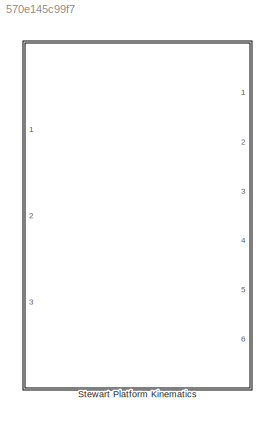
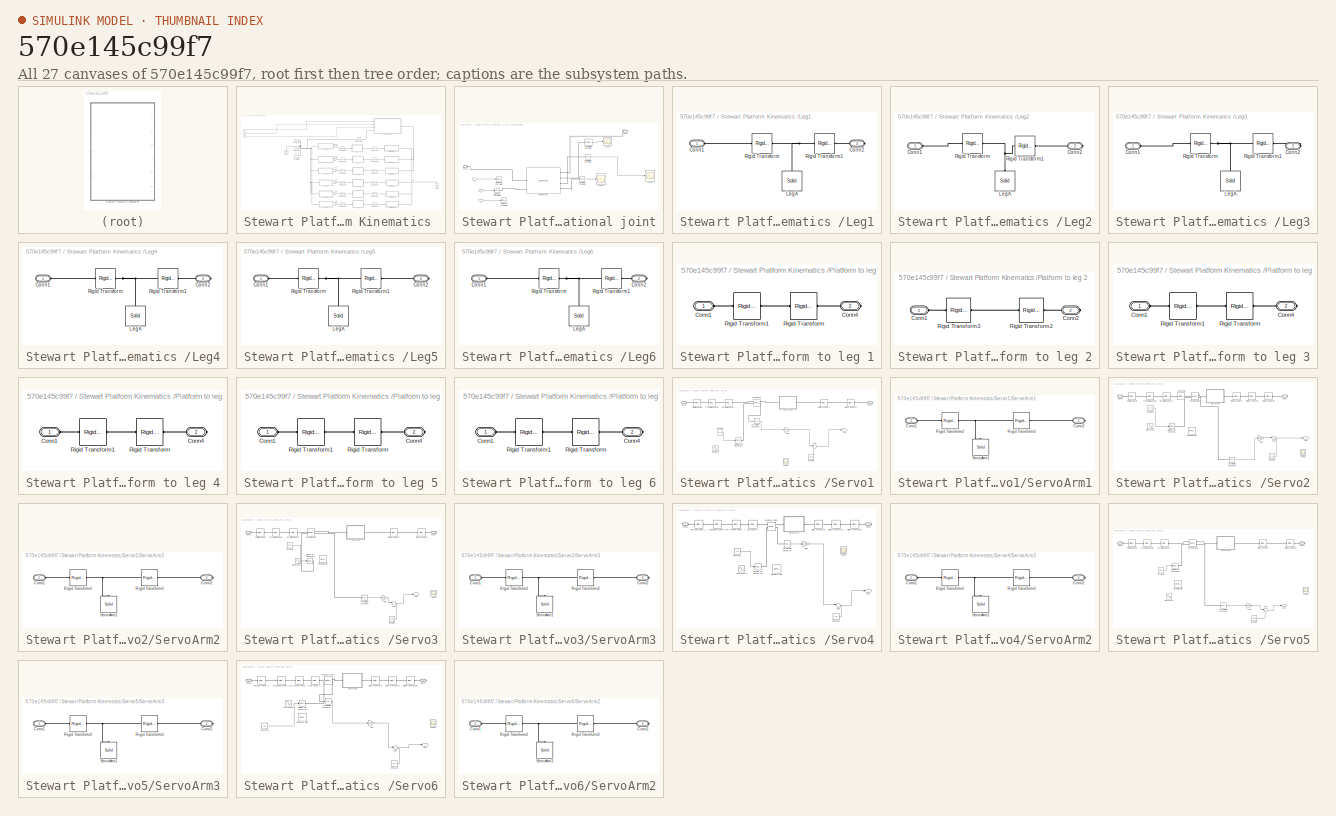
[diagram: thumbnail index - all 27 canvases of the model, root first then tree order]
MODEL slx_570e145c99f7
KIND model
CONFIG AbsTol = auto
CONFIG FixedStep = auto
CONFIG MaxStep = auto
CONFIG MinStep = auto
CONFIG RelTol = 1e-3
CONFIG SampleTimeConstraint = Unconstrained
CONFIG Solver = ode45
CONFIG SolverMode = Auto
CONFIG SolverName = ode45
CONFIG StartTime = 0.0
CONFIG StopTime = 10.0
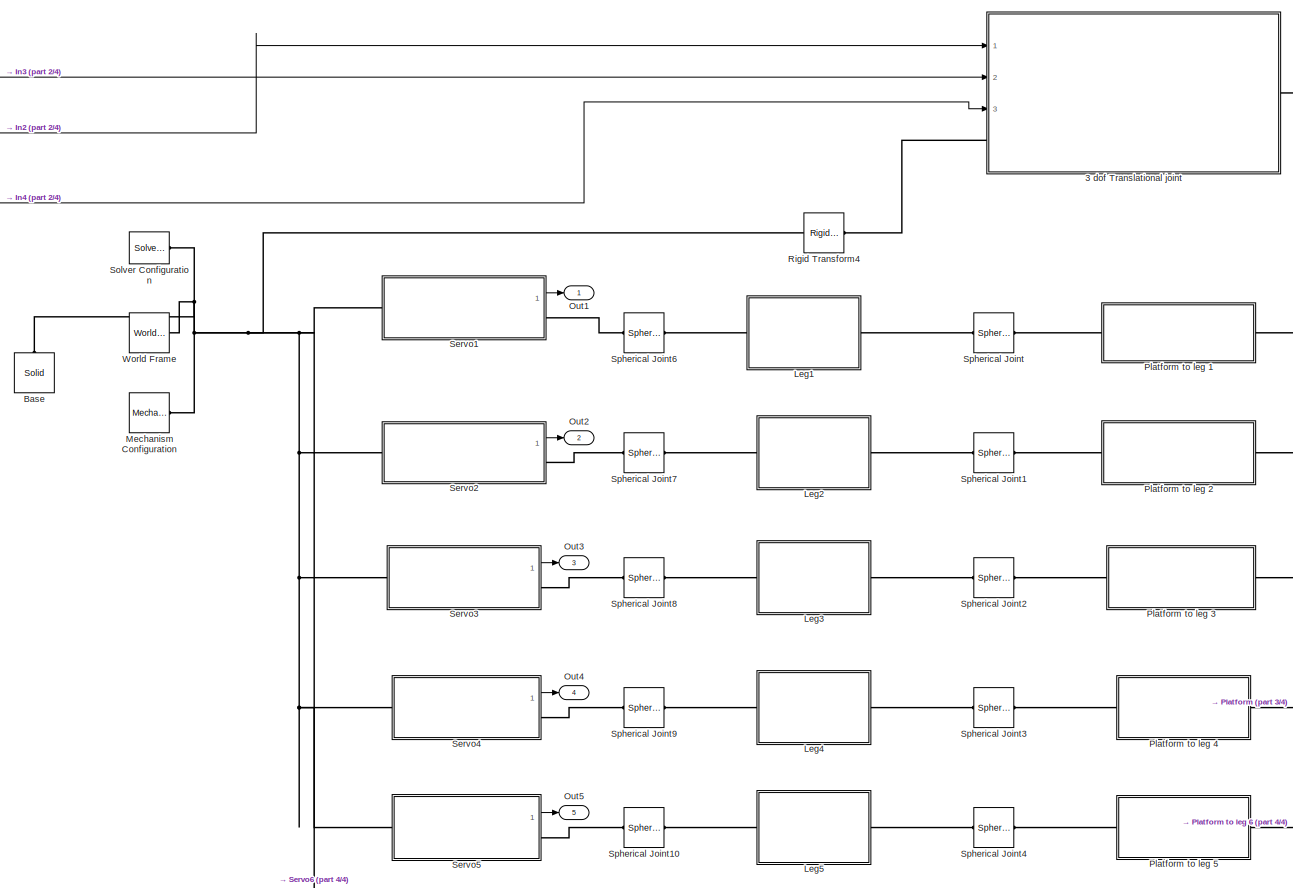
[diagram: Stewart Platform Kinematics  - part 1/4, center side, full height]
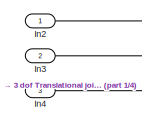
[diagram: Stewart Platform Kinematics  - part 2/4, top left region]
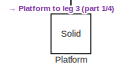
[diagram: Stewart Platform Kinematics  - part 3/4, bottom right region]
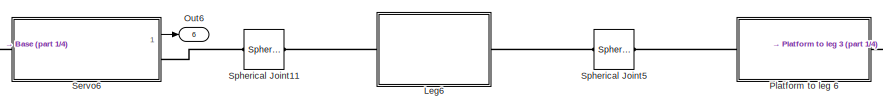
[diagram: Stewart Platform Kinematics  - part 4/4, bottom center region]
BLOCK [SubSystem] Stewart Platform Kinematics 
  Ports = [3, 6]
  RequestExecContextInheritance = off
BLOCK [SubSystem] Stewart Platform Kinematics /3 dof Translational joint
  Ports = [3, 0, 0, 0, 0, 1, 1]
  RequestExecContextInheritance = off
BLOCK [Reference] Stewart Platform Kinematics /3 dof Translational joint/Cartesian Joint  REF=sm_lib/Joints/Cartesian
Joint
  BlockFunction = simmechanics.library.joints.cartesian_joint
  ClassName = CartesianJoint
  CompositeWrenchDir = FollowerOnBase
  CompositeWrenchFrame = BaseFrame
  LogSimulationData = off
  Ports = [0, 0, 0, 0, 0, 1, 4]
  PxDampingCoefficient = 0
  PxDampingCoefficientUnits = N/(m/s)
  PxEquilibriumPosition = 0
  PxEquilibriumPositionUnits = m
  PxMotionActuationMode = ComputedMotion
  PxPositionTargetPriority = High
  PxPositionTargetSpecify = on
  PxPositionTargetValue = 0
  PxPositionTargetValueUnits = m
  PxSenseAcceleration = off
  PxSensePosition = on
  PxSenseTorqueForce = off
  PxSenseVelocity = off
  PxSpringStiffness = 0
  PxSpringStiffnessUnits = N/m
  PxTorqueActuationMode = NoTorque
  PxVelocityTargetPriority = High
  PxVelocityTargetSpecify = off
  PxVelocityTargetValue = 0
  PxVelocityTargetValueUnits = m/s
  PyDampingCoefficient = 0
  PyDampingCoefficientUnits = N/(m/s)
  PyEquilibriumPosition = 0
  PyEquilibriumPositionUnits = m
  PyMotionActuationMode = ComputedMotion
  PyPositionTargetPriority = High
  PyPositionTargetSpecify = on
  PyPositionTargetValue = 0
  PyPositionTargetValueUnits = m
  PySenseAcceleration = off
  PySensePosition = on
  PySenseTorqueForce = off
  PySenseVelocity = off
  PySpringStiffness = 0
  PySpringStiffnessUnits = N/m
  PyTorqueActuationMode = NoTorque
  PyVelocityTargetPriority = High
  PyVelocityTargetSpecify = off
  PyVelocityTargetValue = 0
  PyVelocityTargetValueUnits = m/s
  PzDampingCoefficient = 0
  PzDampingCoefficientUnits = N/(m/s)
  PzEquilibriumPosition = 0
  PzEquilibriumPositionUnits = m
  PzMotionActuationMode = ComputedMotion
  PzPositionTargetPriority = High
  PzPositionTargetSpecify = on
  PzPositionTargetValue = 0
  PzPositionTargetValueUnits = m
  PzSenseAcceleration = off
  PzSensePosition = on
  PzSenseTorqueForce = off
  PzSenseVelocity = off
  PzSpringStiffness = 0
  PzSpringStiffnessUnits = N/m
  PzTorqueActuationMode = NoTorque
  PzVelocityTargetPriority = High
  PzVelocityTargetSpecify = off
  PzVelocityTargetValue = 0
  PzVelocityTargetValueUnits = m/s
  SenseConstraintForce = off
  SenseConstraintForceX = off
  SenseConstraintForceY = off
  SenseConstraintForceZ = off
  SenseConstraintTorque = off
  SenseConstraintTorqueX = off
  SenseConstraintTorqueY = off
  SenseConstraintTorqueZ = off
  SenseTotalForce = off
  SenseTotalForceX = off
  SenseTotalForceY = off
  SenseTotalForceZ = off
  SenseTotalTorque = off
  SenseTotalTorqueX = off
  SenseTotalTorqueY = off
  SenseTotalTorqueZ = off
  SourceBlock = sm_lib/Joints/Cartesian\nJoint
  SourceType = Cartesian\nJoint
BLOCK [PMIOPort] Stewart Platform Kinematics /3 dof Translational joint/Conn1
  Port = 1
  Side = Left
BLOCK [PMIOPort] Stewart Platform Kinematics /3 dof Translational joint/Conn2
  Port = 2
  Side = Right
BLOCK [Reference] Stewart Platform Kinematics /3 dof Translational joint/PS-Simulink Converter  REF=nesl_utility/PS-Simulink
Converter
  AffineConversion = off
  Frequencies = []
  LeftPortType = input
  PhysicalDomain = network_engine_domain
  Ports = [0, 1, 0, 0, 0, 1]
  PseudoPeriodic = off
  RightPortType = output
  SourceBlock = nesl_utility/PS-Simulink\nConverter
  SourceType = PS-Simulink\nConverter
  SubClassName = ps_output
  Unit = m
BLOCK [Reference] Stewart Platform Kinematics /3 dof Translational joint/PS-Simulink Converter1  REF=nesl_utility/PS-Simulink
Converter
  AffineConversion = off
  Frequencies = []
  LeftPortType = input
  PhysicalDomain = network_engine_domain
  Ports = [0, 1, 0, 0, 0, 1]
  PseudoPeriodic = off
  RightPortType = output
  SourceBlock = nesl_utility/PS-Simulink\nConverter
  SourceType = PS-Simulink\nConverter
  SubClassName = ps_output
  Unit = m
BLOCK [Reference] Stewart Platform Kinematics /3 dof Translational joint/PS-Simulink Converter2  REF=nesl_utility/PS-Simulink
Converter
  AffineConversion = off
  Frequencies = []
  LeftPortType = input
  PhysicalDomain = network_engine_domain
  Ports = [0, 1, 0, 0, 0, 1]
  PseudoPeriodic = off
  RightPortType = output
  SourceBlock = nesl_utility/PS-Simulink\nConverter
  SourceType = PS-Simulink\nConverter
  SubClassName = ps_output
  Unit = cm
BLOCK [Scope] Stewart Platform Kinematics /3 dof Translational joint/Scope
  Floating = off
  NumInputPorts = 1
  Ports = [1]
BLOCK [Scope] Stewart Platform Kinematics /3 dof Translational joint/Scope1
  Floating = off
  NumInputPorts = 1
  Ports = [1]
  SaveName = ScopeData7
BLOCK [Scope] Stewart Platform Kinematics /3 dof Translational joint/Scope2
  Floating = off
  NumInputPorts = 1
  Ports = [1]
  SaveName = ScopeData8
BLOCK [Reference] Stewart Platform Kinematics /3 dof Translational joint/Simulink-PS Converter2  REF=nesl_utility/Simulink-PS
Converter
  AffineConversion = off
  Frequencies = []
  InputFilterTimeConstant = 0.01
  InputFiltering = on
  LeftPortType = input
  NoiseDistribution = none
  NoiseParameters = []
  PhysicalDomain = network_engine_domain
  Ports = [1, 0, 0, 0, 0, 0, 1]
  PseudoPeriodic = off
  RightPortType = output
  SimscapeFilterOrder = 2
  SourceBlock = nesl_utility/Simulink-PS\nConverter
  SourceType = Simulink-PS\nConverter
  SubClassName = ps_input
  UdotUserProvided = 1
  Unit = cm
BLOCK [Reference] Stewart Platform Kinematics /3 dof Translational joint/Simulink-PS Converter5  REF=nesl_utility/Simulink-PS
Converter
  AffineConversion = off
  Frequencies = []
  InputFilterTimeConstant = 0.01
  InputFiltering = on
  LeftPortType = input
  NoiseDistribution = none
  NoiseParameters = []
  PhysicalDomain = network_engine_domain
  Ports = [1, 0, 0, 0, 0, 0, 1]
  PseudoPeriodic = off
  RightPortType = output
  SimscapeFilterOrder = 2
  SourceBlock = nesl_utility/Simulink-PS\nConverter
  SourceType = Simulink-PS\nConverter
  SubClassName = ps_input
  UdotUserProvided = 1
  Unit = cm
BLOCK [Reference] Stewart Platform Kinematics /3 dof Translational joint/Simulink-PS Converter6  REF=nesl_utility/Simulink-PS
Converter
  AffineConversion = off
  Frequencies = []
  InputFilterTimeConstant = 0.01
  InputFiltering = on
  LeftPortType = input
  NoiseDistribution = none
  NoiseParameters = []
  PhysicalDomain = network_engine_domain
  Ports = [1, 0, 0, 0, 0, 0, 1]
  PseudoPeriodic = off
  RightPortType = output
  SimscapeFilterOrder = 2
  SourceBlock = nesl_utility/Simulink-PS\nConverter
  SourceType = Simulink-PS\nConverter
  SubClassName = ps_input
  UdotUserProvided = 1
  Unit = cm
BLOCK [Inport] Stewart Platform Kinematics /3 dof Translational joint/X
  IconDisplay = Port number
BLOCK [Inport] Stewart Platform Kinematics /3 dof Translational joint/Y
  IconDisplay = Port number
  Port = 2
BLOCK [Inport] Stewart Platform Kinematics /3 dof Translational joint/Z
  IconDisplay = Port number
  Port = 3
BLOCK [Reference] Stewart Platform Kinematics /Base  REF=sm_lib/Body Elements/Solid
  BlockFunction = simmechanics.library.body_elements.solid
  BrickDimensionUnits = m
  BrickDimensions = [1 1 1]
  CenterOfMass = [0 0 0]
  CenterOfMassUnits = m
  ClassName = Solid
  CylinderLength = 1
  CylinderLengthUnits = cm
  CylinderRadius = 20
  CylinderRadiusUnits = cm
  Density = 2700
  DensityBased = on
  DensityUnits = kg/m^3
  EllipsoidRadii = [1 1 1]
  EllipsoidRadiiUnits = m
  ExtGeomFileType = STL
  ExtGeomFileUnits = m
  ExtrusionCrossSection = [1 1; -1 1; -1 -1; 1 -1]
  ExtrusionCrossSectionUnits = m
  ExtrusionLength = 1
  ExtrusionLengthUnits = m
  GeometryShape = Cylinder
  GraphicAmbientColor = [0.15 0.15 0.15 1.0]
  GraphicDiffuseColor = [1.0 0.0 0.0]
  GraphicEmissiveColor = [0.0 0.0 0.0 1.0]
  GraphicOpacity = 1.0
  GraphicShininess = 75
  GraphicSpecularColor = [0.5 0.5 0.5 1.0]
  GraphicType = FromGeometry
  GraphicVisPropType = SimpleVisualProperties
  InertiaType = CalculateFromGeometry
  LogSimulationData = off
  MarkerShape = Sphere
  MarkerSize = 10
  MarkerSizeUnits = m
  Mass = 1
  MassUnits = kg
  MomentsOfInertia = [1 1 1]
  MomentsOfInertiaUnits = kg*m^2
  PolygonNumSides = 3
  PolygonOuterRadius = 1
  PolygonOuterRadiusUnits = m
  Ports = [0, 0, 0, 0, 0, 0, 1]
  ProductsOfInertia = [0 0 0]
  ProductsOfInertiaUnits = kg*m^2
  RectangleSize = [1 1]
  RectangleSizeUnits = m
  RevolutionAngle = 180
  RevolutionAngleUnits = deg
  RevolutionCrossSection = [1 1; 1 -1; 2 -1; 2 1]
  RevolutionCrossSectionUnits = m
  RevolutionExtent = Full
  SourceBlock = sm_lib/Body Elements/Solid
  SourceType = Solid
  SphereRadius = 1
  SphereRadiusUnits = m
BLOCK [Inport] Stewart Platform Kinematics /In2
  IconDisplay = Port number
BLOCK [Inport] Stewart Platform Kinematics /In3
  IconDisplay = Port number
  Port = 2
BLOCK [Inport] Stewart Platform Kinematics /In4
  IconDisplay = Port number
  Port = 3
BLOCK [SubSystem] Stewart Platform Kinematics /Leg1
  Ports = [0, 0, 0, 0, 0, 1, 1]
  RequestExecContextInheritance = off
BLOCK [PMIOPort] Stewart Platform Kinematics /Leg1/Conn1
  Port = 1
  Side = Left
BLOCK [PMIOPort] Stewart Platform Kinematics /Leg1/Conn2
  Port = 2
  Side = Right
BLOCK [Reference] Stewart Platform Kinematics /Leg1/LegA  REF=sm_lib/Body Elements/Solid
  BlockFunction = simmechanics.library.body_elements.solid
  BrickDimensionUnits = m
  BrickDimensions = [1 1 1]
  CenterOfMass = [0 0 0]
  CenterOfMassUnits = m
  ClassName = Solid
  CylinderLength = leg_length
  CylinderLengthUnits = cm
  CylinderRadius = 0.3
  CylinderRadiusUnits = cm
  Density = 2700
  DensityBased = on
  DensityUnits = kg/(m^3)
  EllipsoidRadii = [1 1 1]
  EllipsoidRadiiUnits = m
  ExtGeomFileType = STL
  ExtGeomFileUnits = m
  ExtrusionCrossSection = [1 1; -1 1; -1 -1; 1 -1]
  ExtrusionCrossSectionUnits = m
  ExtrusionLength = 1
  ExtrusionLengthUnits = m
  GeometryShape = Cylinder
  GraphicAmbientColor = [0.15 0.15 0.15 1.0]
  GraphicDiffuseColor = [0.5 0.5 0.5]
  GraphicEmissiveColor = [0.0 0.0 0.0 1.0]
  GraphicOpacity = 1.0
  GraphicShininess = 75
  GraphicSpecularColor = [0.5 0.5 0.5 1.0]
  GraphicType = FromGeometry
  GraphicVisPropType = SimpleVisualProperties
  InertiaType = CalculateFromGeometry
  LogSimulationData = off
  MarkerShape = Sphere
  MarkerSize = 10
  MarkerSizeUnits = m
  Mass = 1
  MassUnits = kg
  MomentsOfInertia = [1 1 1]
  MomentsOfInertiaUnits = kg*m^2
  PolygonNumSides = 3
  PolygonOuterRadius = 1
  PolygonOuterRadiusUnits = m
  Ports = [0, 0, 0, 0, 0, 0, 1]
  ProductsOfInertia = [0 0 0]
  ProductsOfInertiaUnits = kg*m^2
  RectangleSize = [1 1]
  RectangleSizeUnits = m
  RevolutionAngle = 180
  RevolutionAngleUnits = deg
  RevolutionCrossSection = [1 1; 1 -1; 2 -1; 2 1]
  RevolutionCrossSectionUnits = m
  RevolutionExtent = Full
  SourceBlock = sm_lib/Body Elements/Solid
  SourceType = Solid
  SphereRadius = 1
  SphereRadiusUnits = m
BLOCK [Reference] Stewart Platform Kinematics /Leg1/Rigid Transform  REF=sm_lib/Frames and
Transforms/Rigid
Transform
  BaseAlignAxisA = +Y
  BaseAlignAxisB = +Z
  BlockFunction = simmechanics.library.frames_transforms.rigid_transform
  ClassName = RigidTransform
  FollAlignAxisA = +X
  FollAlignAxisB = +Y
  LogSimulationData = off
  Ports = [0, 0, 0, 0, 0, 1, 1]
  RotationAngle = 90
  RotationAngleUnits = deg
  RotationArbitraryAxis = [0 0 1]
  RotationMatrix = [1 0 0; 0 1 0; 0 0 1]
  RotationMethod = StandardAxis
  RotationStandardAxis = +X
  SourceBlock = sm_lib/Frames and\nTransforms/Rigid\nTransform
  SourceType = Rigid\nTransform
  TranslationCartesianOffset = [0 0 0]
  TranslationLengthUnit = cm
  TranslationMethod = StandardAxis
  TranslationROffset = 0
  TranslationROffsetUnits = m
  TranslationStandardAxis = +Z
  TranslationStandardOffset = leg_length/2
  TranslationThetaOffset = 0
  TranslationThetaOffsetUnits = deg
  TranslationZOffset = 0
  TranslationZOffsetUnits = m
BLOCK [Reference] Stewart Platform Kinematics /Leg1/Rigid Transform1  REF=sm_lib/Frames and
Transforms/Rigid
Transform
  BaseAlignAxisA = +Y
  BaseAlignAxisB = +Z
  BlockFunction = simmechanics.library.frames_transforms.rigid_transform
  ClassName = RigidTransform
  FollAlignAxisA = +X
  FollAlignAxisB = +Y
  LogSimulationData = off
  Ports = [0, 0, 0, 0, 0, 1, 1]
  RotationAngle = 0.0
  RotationAngleUnits = deg
  RotationArbitraryAxis = [0 0 1]
  RotationMatrix = [1 0 0; 0 1 0; 0 0 1]
  RotationMethod = None
  RotationStandardAxis = +Z
  SourceBlock = sm_lib/Frames and\nTransforms/Rigid\nTransform
  SourceType = Rigid\nTransform
  TranslationCartesianOffset = [0 0 0]
  TranslationLengthUnit = cm
  TranslationMethod = StandardAxis
  TranslationROffset = 0
  TranslationROffsetUnits = m
  TranslationStandardAxis = -Z
  TranslationStandardOffset = leg_length/2
  TranslationThetaOffset = 0
  TranslationThetaOffsetUnits = deg
  TranslationZOffset = 0
  TranslationZOffsetUnits = m
BLOCK [SubSystem] Stewart Platform Kinematics /Leg2
  Ports = [0, 0, 0, 0, 0, 1, 1]
  RequestExecContextInheritance = off
BLOCK [PMIOPort] Stewart Platform Kinematics /Leg2/Conn1
  Port = 1
  Side = Left
BLOCK [PMIOPort] Stewart Platform Kinematics /Leg2/Conn2
  Port = 2
  Side = Right
BLOCK [Reference] Stewart Platform Kinematics /Leg2/LegA  REF=sm_lib/Body Elements/Solid
  BlockFunction = simmechanics.library.body_elements.solid
  BrickDimensionUnits = m
  BrickDimensions = [1 1 1]
  CenterOfMass = [0 0 0]
  CenterOfMassUnits = m
  ClassName = Solid
  CylinderLength = leg_length
  CylinderLengthUnits = cm
  CylinderRadius = 0.3
  CylinderRadiusUnits = cm
  Density = 2700
  DensityBased = on
  DensityUnits = kg/(m^3)
  EllipsoidRadii = [1 1 1]
  EllipsoidRadiiUnits = m
  ExtGeomFileType = STL
  ExtGeomFileUnits = m
  ExtrusionCrossSection = [1 1; -1 1; -1 -1; 1 -1]
  ExtrusionCrossSectionUnits = m
  ExtrusionLength = 1
  ExtrusionLengthUnits = m
  GeometryShape = Cylinder
  GraphicAmbientColor = [0.15 0.15 0.15 1.0]
  GraphicDiffuseColor = [0.5 0.5 0.5]
  GraphicEmissiveColor = [0.0 0.0 0.0 1.0]
  GraphicOpacity = 1.0
  GraphicShininess = 75
  GraphicSpecularColor = [0.5 0.5 0.5 1.0]
  GraphicType = FromGeometry
  GraphicVisPropType = SimpleVisualProperties
  InertiaType = CalculateFromGeometry
  LogSimulationData = off
  MarkerShape = Sphere
  MarkerSize = 10
  MarkerSizeUnits = m
  Mass = 1
  MassUnits = kg
  MomentsOfInertia = [1 1 1]
  MomentsOfInertiaUnits = kg*m^2
  PolygonNumSides = 3
  PolygonOuterRadius = 1
  PolygonOuterRadiusUnits = m
  Ports = [0, 0, 0, 0, 0, 0, 1]
  ProductsOfInertia = [0 0 0]
  ProductsOfInertiaUnits = kg*m^2
  RectangleSize = [1 1]
  RectangleSizeUnits = m
  RevolutionAngle = 180
  RevolutionAngleUnits = deg
  RevolutionCrossSection = [1 1; 1 -1; 2 -1; 2 1]
  RevolutionCrossSectionUnits = m
  RevolutionExtent = Full
  SourceBlock = sm_lib/Body Elements/Solid
  SourceType = Solid
  SphereRadius = 1
  SphereRadiusUnits = m
BLOCK [Reference] Stewart Platform Kinematics /Leg2/Rigid Transform  REF=sm_lib/Frames and
Transforms/Rigid
Transform
  BaseAlignAxisA = +Y
  BaseAlignAxisB = +Z
  BlockFunction = simmechanics.library.frames_transforms.rigid_transform
  ClassName = RigidTransform
  FollAlignAxisA = +X
  FollAlignAxisB = +Y
  LogSimulationData = off
  Ports = [0, 0, 0, 0, 0, 1, 1]
  RotationAngle = 90
  RotationAngleUnits = deg
  RotationArbitraryAxis = [0 0 1]
  RotationMatrix = [1 0 0; 0 1 0; 0 0 1]
  RotationMethod = StandardAxis
  RotationStandardAxis = +X
  SourceBlock = sm_lib/Frames and\nTransforms/Rigid\nTransform
  SourceType = Rigid\nTransform
  TranslationCartesianOffset = [0 0 0]
  TranslationLengthUnit = cm
  TranslationMethod = StandardAxis
  TranslationROffset = 0
  TranslationROffsetUnits = m
  TranslationStandardAxis = +Z
  TranslationStandardOffset = leg_length/2
  TranslationThetaOffset = 0
  TranslationThetaOffsetUnits = deg
  TranslationZOffset = 0
  TranslationZOffsetUnits = m
BLOCK [Reference] Stewart Platform Kinematics /Leg2/Rigid Transform1  REF=sm_lib/Frames and
Transforms/Rigid
Transform
  BaseAlignAxisA = +Y
  BaseAlignAxisB = +Z
  BlockFunction = simmechanics.library.frames_transforms.rigid_transform
  ClassName = RigidTransform
  FollAlignAxisA = +X
  FollAlignAxisB = +Y
  LogSimulationData = off
  Ports = [0, 0, 0, 0, 0, 1, 1]
  RotationAngle = 0.0
  RotationAngleUnits = deg
  RotationArbitraryAxis = [0 0 1]
  RotationMatrix = [1 0 0; 0 1 0; 0 0 1]
  RotationMethod = None
  RotationStandardAxis = +Z
  SourceBlock = sm_lib/Frames and\nTransforms/Rigid\nTransform
  SourceType = Rigid\nTransform
  TranslationCartesianOffset = [0 0 0]
  TranslationLengthUnit = cm
  TranslationMethod = StandardAxis
  TranslationROffset = 0
  TranslationROffsetUnits = m
  TranslationStandardAxis = -Z
  TranslationStandardOffset = leg_length/2
  TranslationThetaOffset = 0
  TranslationThetaOffsetUnits = deg
  TranslationZOffset = 0
  TranslationZOffsetUnits = m
BLOCK [SubSystem] Stewart Platform Kinematics /Leg3
  Ports = [0, 0, 0, 0, 0, 1, 1]
  RequestExecContextInheritance = off
BLOCK [PMIOPort] Stewart Platform Kinematics /Leg3/Conn1
  Port = 1
  Side = Left
BLOCK [PMIOPort] Stewart Platform Kinematics /Leg3/Conn2
  Port = 2
  Side = Right
BLOCK [Reference] Stewart Platform Kinematics /Leg3/LegA  REF=sm_lib/Body Elements/Solid
  BlockFunction = simmechanics.library.body_elements.solid
  BrickDimensionUnits = m
  BrickDimensions = [1 1 1]
  CenterOfMass = [0 0 0]
  CenterOfMassUnits = m
  ClassName = Solid
  CylinderLength = leg_length
  CylinderLengthUnits = cm
  CylinderRadius = 0.3
  CylinderRadiusUnits = cm
  Density = 2700
  DensityBased = on
  DensityUnits = kg/(m^3)
  EllipsoidRadii = [1 1 1]
  EllipsoidRadiiUnits = m
  ExtGeomFileType = STL
  ExtGeomFileUnits = m
  ExtrusionCrossSection = [1 1; -1 1; -1 -1; 1 -1]
  ExtrusionCrossSectionUnits = m
  ExtrusionLength = 1
  ExtrusionLengthUnits = m
  GeometryShape = Cylinder
  GraphicAmbientColor = [0.15 0.15 0.15 1.0]
  GraphicDiffuseColor = [0.5 0.5 0.5]
  GraphicEmissiveColor = [0.0 0.0 0.0 1.0]
  GraphicOpacity = 1.0
  GraphicShininess = 75
  GraphicSpecularColor = [0.5 0.5 0.5 1.0]
  GraphicType = FromGeometry
  GraphicVisPropType = SimpleVisualProperties
  InertiaType = CalculateFromGeometry
  LogSimulationData = off
  MarkerShape = Sphere
  MarkerSize = 10
  MarkerSizeUnits = m
  Mass = 1
  MassUnits = kg
  MomentsOfInertia = [1 1 1]
  MomentsOfInertiaUnits = kg*m^2
  PolygonNumSides = 3
  PolygonOuterRadius = 1
  PolygonOuterRadiusUnits = m
  Ports = [0, 0, 0, 0, 0, 0, 1]
  ProductsOfInertia = [0 0 0]
  ProductsOfInertiaUnits = kg*m^2
  RectangleSize = [1 1]
  RectangleSizeUnits = m
  RevolutionAngle = 180
  RevolutionAngleUnits = deg
  RevolutionCrossSection = [1 1; 1 -1; 2 -1; 2 1]
  RevolutionCrossSectionUnits = m
  RevolutionExtent = Full
  SourceBlock = sm_lib/Body Elements/Solid
  SourceType = Solid
  SphereRadius = 1
  SphereRadiusUnits = m
BLOCK [Reference] Stewart Platform Kinematics /Leg3/Rigid Transform  REF=sm_lib/Frames and
Transforms/Rigid
Transform
  BaseAlignAxisA = +Y
  BaseAlignAxisB = +Z
  BlockFunction = simmechanics.library.frames_transforms.rigid_transform
  ClassName = RigidTransform
  FollAlignAxisA = +X
  FollAlignAxisB = +Y
  LogSimulationData = off
  Ports = [0, 0, 0, 0, 0, 1, 1]
  RotationAngle = 90
  RotationAngleUnits = deg
  RotationArbitraryAxis = [0 0 1]
  RotationMatrix = [1 0 0; 0 1 0; 0 0 1]
  RotationMethod = StandardAxis
  RotationStandardAxis = +X
  SourceBlock = sm_lib/Frames and\nTransforms/Rigid\nTransform
  SourceType = Rigid\nTransform
  TranslationCartesianOffset = [0 0 0]
  TranslationLengthUnit = cm
  TranslationMethod = StandardAxis
  TranslationROffset = 0
  TranslationROffsetUnits = m
  TranslationStandardAxis = +Z
  TranslationStandardOffset = leg_length/2
  TranslationThetaOffset = 0
  TranslationThetaOffsetUnits = deg
  TranslationZOffset = 0
  TranslationZOffsetUnits = m
BLOCK [Reference] Stewart Platform Kinematics /Leg3/Rigid Transform1  REF=sm_lib/Frames and
Transforms/Rigid
Transform
  BaseAlignAxisA = +Y
  BaseAlignAxisB = +Z
  BlockFunction = simmechanics.library.frames_transforms.rigid_transform
  ClassName = RigidTransform
  FollAlignAxisA = +X
  FollAlignAxisB = +Y
  LogSimulationData = off
  Ports = [0, 0, 0, 0, 0, 1, 1]
  RotationAngle = 0.0
  RotationAngleUnits = deg
  RotationArbitraryAxis = [0 0 1]
  RotationMatrix = [1 0 0; 0 1 0; 0 0 1]
  RotationMethod = None
  RotationStandardAxis = +Z
  SourceBlock = sm_lib/Frames and\nTransforms/Rigid\nTransform
  SourceType = Rigid\nTransform
  TranslationCartesianOffset = [0 0 0]
  TranslationLengthUnit = cm
  TranslationMethod = StandardAxis
  TranslationROffset = 0
  TranslationROffsetUnits = m
  TranslationStandardAxis = -Z
  TranslationStandardOffset = leg_length/2
  TranslationThetaOffset = 0
  TranslationThetaOffsetUnits = deg
  TranslationZOffset = 0
  TranslationZOffsetUnits = m
BLOCK [SubSystem] Stewart Platform Kinematics /Leg4
  Ports = [0, 0, 0, 0, 0, 1, 1]
  RequestExecContextInheritance = off
BLOCK [PMIOPort] Stewart Platform Kinematics /Leg4/Conn1
  Port = 1
  Side = Left
BLOCK [PMIOPort] Stewart Platform Kinematics /Leg4/Conn2
  Port = 2
  Side = Right
BLOCK [Reference] Stewart Platform Kinematics /Leg4/LegA  REF=sm_lib/Body Elements/Solid
  BlockFunction = simmechanics.library.body_elements.solid
  BrickDimensionUnits = m
  BrickDimensions = [1 1 1]
  CenterOfMass = [0 0 0]
  CenterOfMassUnits = m
  ClassName = Solid
  CylinderLength = leg_length
  CylinderLengthUnits = cm
  CylinderRadius = 0.3
  CylinderRadiusUnits = cm
  Density = 2700
  DensityBased = on
  DensityUnits = kg/(m^3)
  EllipsoidRadii = [1 1 1]
  EllipsoidRadiiUnits = m
  ExtGeomFileType = STL
  ExtGeomFileUnits = m
  ExtrusionCrossSection = [1 1; -1 1; -1 -1; 1 -1]
  ExtrusionCrossSectionUnits = m
  ExtrusionLength = 1
  ExtrusionLengthUnits = m
  GeometryShape = Cylinder
  GraphicAmbientColor = [0.15 0.15 0.15 1.0]
  GraphicDiffuseColor = [0.5 0.5 0.5]
  GraphicEmissiveColor = [0.0 0.0 0.0 1.0]
  GraphicOpacity = 1.0
  GraphicShininess = 75
  GraphicSpecularColor = [0.5 0.5 0.5 1.0]
  GraphicType = FromGeometry
  GraphicVisPropType = SimpleVisualProperties
  InertiaType = CalculateFromGeometry
  LogSimulationData = off
  MarkerShape = Sphere
  MarkerSize = 10
  MarkerSizeUnits = m
  Mass = 1
  MassUnits = kg
  MomentsOfInertia = [1 1 1]
  MomentsOfInertiaUnits = kg*m^2
  PolygonNumSides = 3
  PolygonOuterRadius = 1
  PolygonOuterRadiusUnits = m
  Ports = [0, 0, 0, 0, 0, 0, 1]
  ProductsOfInertia = [0 0 0]
  ProductsOfInertiaUnits = kg*m^2
  RectangleSize = [1 1]
  RectangleSizeUnits = m
  RevolutionAngle = 180
  RevolutionAngleUnits = deg
  RevolutionCrossSection = [1 1; 1 -1; 2 -1; 2 1]
  RevolutionCrossSectionUnits = m
  RevolutionExtent = Full
  SourceBlock = sm_lib/Body Elements/Solid
  SourceType = Solid
  SphereRadius = 1
  SphereRadiusUnits = m
BLOCK [Reference] Stewart Platform Kinematics /Leg4/Rigid Transform  REF=sm_lib/Frames and
Transforms/Rigid
Transform
  BaseAlignAxisA = +Y
  BaseAlignAxisB = +Z
  BlockFunction = simmechanics.library.frames_transforms.rigid_transform
  ClassName = RigidTransform
  FollAlignAxisA = +X
  FollAlignAxisB = +Y
  LogSimulationData = off
  Ports = [0, 0, 0, 0, 0, 1, 1]
  RotationAngle = 90
  RotationAngleUnits = deg
  RotationArbitraryAxis = [0 0 1]
  RotationMatrix = [1 0 0; 0 1 0; 0 0 1]
  RotationMethod = StandardAxis
  RotationStandardAxis = +X
  SourceBlock = sm_lib/Frames and\nTransforms/Rigid\nTransform
  SourceType = Rigid\nTransform
  TranslationCartesianOffset = [0 0 0]
  TranslationLengthUnit = cm
  TranslationMethod = StandardAxis
  TranslationROffset = 0
  TranslationROffsetUnits = m
  TranslationStandardAxis = +Z
  TranslationStandardOffset = leg_length/2
  TranslationThetaOffset = 0
  TranslationThetaOffsetUnits = deg
  TranslationZOffset = 0
  TranslationZOffsetUnits = m
BLOCK [Reference] Stewart Platform Kinematics /Leg4/Rigid Transform1  REF=sm_lib/Frames and
Transforms/Rigid
Transform
  BaseAlignAxisA = +Y
  BaseAlignAxisB = +Z
  BlockFunction = simmechanics.library.frames_transforms.rigid_transform
  ClassName = RigidTransform
  FollAlignAxisA = +X
  FollAlignAxisB = +Y
  LogSimulationData = off
  Ports = [0, 0, 0, 0, 0, 1, 1]
  RotationAngle = 0.0
  RotationAngleUnits = deg
  RotationArbitraryAxis = [0 0 1]
  RotationMatrix = [1 0 0; 0 1 0; 0 0 1]
  RotationMethod = None
  RotationStandardAxis = +Z
  SourceBlock = sm_lib/Frames and\nTransforms/Rigid\nTransform
  SourceType = Rigid\nTransform
  TranslationCartesianOffset = [0 0 0]
  TranslationLengthUnit = cm
  TranslationMethod = StandardAxis
  TranslationROffset = 0
  TranslationROffsetUnits = m
  TranslationStandardAxis = -Z
  TranslationStandardOffset = leg_length/2
  TranslationThetaOffset = 0
  TranslationThetaOffsetUnits = deg
  TranslationZOffset = 0
  TranslationZOffsetUnits = m
BLOCK [SubSystem] Stewart Platform Kinematics /Leg5
  Ports = [0, 0, 0, 0, 0, 1, 1]
  RequestExecContextInheritance = off
BLOCK [PMIOPort] Stewart Platform Kinematics /Leg5/Conn1
  Port = 1
  Side = Left
BLOCK [PMIOPort] Stewart Platform Kinematics /Leg5/Conn2
  Port = 2
  Side = Right
BLOCK [Reference] Stewart Platform Kinematics /Leg5/LegA  REF=sm_lib/Body Elements/Solid
  BlockFunction = simmechanics.library.body_elements.solid
  BrickDimensionUnits = m
  BrickDimensions = [1 1 1]
  CenterOfMass = [0 0 0]
  CenterOfMassUnits = m
  ClassName = Solid
  CylinderLength = leg_length
  CylinderLengthUnits = cm
  CylinderRadius = 0.3
  CylinderRadiusUnits = cm
  Density = 2700
  DensityBased = on
  DensityUnits = kg/(m^3)
  EllipsoidRadii = [1 1 1]
  EllipsoidRadiiUnits = m
  ExtGeomFileType = STL
  ExtGeomFileUnits = m
  ExtrusionCrossSection = [1 1; -1 1; -1 -1; 1 -1]
  ExtrusionCrossSectionUnits = m
  ExtrusionLength = 1
  ExtrusionLengthUnits = m
  GeometryShape = Cylinder
  GraphicAmbientColor = [0.15 0.15 0.15 1.0]
  GraphicDiffuseColor = [0.5 0.5 0.5]
  GraphicEmissiveColor = [0.0 0.0 0.0 1.0]
  GraphicOpacity = 1.0
  GraphicShininess = 75
  GraphicSpecularColor = [0.5 0.5 0.5 1.0]
  GraphicType = FromGeometry
  GraphicVisPropType = SimpleVisualProperties
  InertiaType = CalculateFromGeometry
  LogSimulationData = off
  MarkerShape = Sphere
  MarkerSize = 10
  MarkerSizeUnits = m
  Mass = 1
  MassUnits = kg
  MomentsOfInertia = [1 1 1]
  MomentsOfInertiaUnits = kg*m^2
  PolygonNumSides = 3
  PolygonOuterRadius = 1
  PolygonOuterRadiusUnits = m
  Ports = [0, 0, 0, 0, 0, 0, 1]
  ProductsOfInertia = [0 0 0]
  ProductsOfInertiaUnits = kg*m^2
  RectangleSize = [1 1]
  RectangleSizeUnits = m
  RevolutionAngle = 180
  RevolutionAngleUnits = deg
  RevolutionCrossSection = [1 1; 1 -1; 2 -1; 2 1]
  RevolutionCrossSectionUnits = m
  RevolutionExtent = Full
  SourceBlock = sm_lib/Body Elements/Solid
  SourceType = Solid
  SphereRadius = 1
  SphereRadiusUnits = m
BLOCK [Reference] Stewart Platform Kinematics /Leg5/Rigid Transform  REF=sm_lib/Frames and
Transforms/Rigid
Transform
  BaseAlignAxisA = +Y
  BaseAlignAxisB = +Z
  BlockFunction = simmechanics.library.frames_transforms.rigid_transform
  ClassName = RigidTransform
  FollAlignAxisA = +X
  FollAlignAxisB = +Y
  LogSimulationData = off
  Ports = [0, 0, 0, 0, 0, 1, 1]
  RotationAngle = 90
  RotationAngleUnits = deg
  RotationArbitraryAxis = [0 0 1]
  RotationMatrix = [1 0 0; 0 1 0; 0 0 1]
  RotationMethod = StandardAxis
  RotationStandardAxis = +X
  SourceBlock = sm_lib/Frames and\nTransforms/Rigid\nTransform
  SourceType = Rigid\nTransform
  TranslationCartesianOffset = [0 0 0]
  TranslationLengthUnit = cm
  TranslationMethod = StandardAxis
  TranslationROffset = 0
  TranslationROffsetUnits = m
  TranslationStandardAxis = +Z
  TranslationStandardOffset = leg_length/2
  TranslationThetaOffset = 0
  TranslationThetaOffsetUnits = deg
  TranslationZOffset = 0
  TranslationZOffsetUnits = m
BLOCK [Reference] Stewart Platform Kinematics /Leg5/Rigid Transform1  REF=sm_lib/Frames and
Transforms/Rigid
Transform
  BaseAlignAxisA = +Y
  BaseAlignAxisB = +Z
  BlockFunction = simmechanics.library.frames_transforms.rigid_transform
  ClassName = RigidTransform
  FollAlignAxisA = +X
  FollAlignAxisB = +Y
  LogSimulationData = off
  Ports = [0, 0, 0, 0, 0, 1, 1]
  RotationAngle = 0.0
  RotationAngleUnits = deg
  RotationArbitraryAxis = [0 0 1]
  RotationMatrix = [1 0 0; 0 1 0; 0 0 1]
  RotationMethod = None
  RotationStandardAxis = +Z
  SourceBlock = sm_lib/Frames and\nTransforms/Rigid\nTransform
  SourceType = Rigid\nTransform
  TranslationCartesianOffset = [0 0 0]
  TranslationLengthUnit = cm
  TranslationMethod = StandardAxis
  TranslationROffset = 0
  TranslationROffsetUnits = m
  TranslationStandardAxis = -Z
  TranslationStandardOffset = leg_length/2
  TranslationThetaOffset = 0
  TranslationThetaOffsetUnits = deg
  TranslationZOffset = 0
  TranslationZOffsetUnits = m
BLOCK [SubSystem] Stewart Platform Kinematics /Leg6
  Ports = [0, 0, 0, 0, 0, 1, 1]
  RequestExecContextInheritance = off
BLOCK [PMIOPort] Stewart Platform Kinematics /Leg6/Conn1
  Port = 1
  Side = Left
BLOCK [PMIOPort] Stewart Platform Kinematics /Leg6/Conn2
  Port = 2
  Side = Right
BLOCK [Reference] Stewart Platform Kinematics /Leg6/LegA  REF=sm_lib/Body Elements/Solid
  BlockFunction = simmechanics.library.body_elements.solid
  BrickDimensionUnits = m
  BrickDimensions = [1 1 1]
  CenterOfMass = [0 0 0]
  CenterOfMassUnits = m
  ClassName = Solid
  CylinderLength = leg_length
  CylinderLengthUnits = cm
  CylinderRadius = 0.3
  CylinderRadiusUnits = cm
  Density = 2700
  DensityBased = on
  DensityUnits = kg/(m^3)
  EllipsoidRadii = [1 1 1]
  EllipsoidRadiiUnits = m
  ExtGeomFileType = STL
  ExtGeomFileUnits = m
  ExtrusionCrossSection = [1 1; -1 1; -1 -1; 1 -1]
  ExtrusionCrossSectionUnits = m
  ExtrusionLength = 1
  ExtrusionLengthUnits = m
  GeometryShape = Cylinder
  GraphicAmbientColor = [0.15 0.15 0.15 1.0]
  GraphicDiffuseColor = [0.5 0.5 0.5]
  GraphicEmissiveColor = [0.0 0.0 0.0 1.0]
  GraphicOpacity = 1.0
  GraphicShininess = 75
  GraphicSpecularColor = [0.5 0.5 0.5 1.0]
  GraphicType = FromGeometry
  GraphicVisPropType = SimpleVisualProperties
  InertiaType = CalculateFromGeometry
  LogSimulationData = off
  MarkerShape = Sphere
  MarkerSize = 10
  MarkerSizeUnits = m
  Mass = 1
  MassUnits = kg
  MomentsOfInertia = [1 1 1]
  MomentsOfInertiaUnits = kg*m^2
  PolygonNumSides = 3
  PolygonOuterRadius = 1
  PolygonOuterRadiusUnits = m
  Ports = [0, 0, 0, 0, 0, 0, 1]
  ProductsOfInertia = [0 0 0]
  ProductsOfInertiaUnits = kg*m^2
  RectangleSize = [1 1]
  RectangleSizeUnits = m
  RevolutionAngle = 180
  RevolutionAngleUnits = deg
  RevolutionCrossSection = [1 1; 1 -1; 2 -1; 2 1]
  RevolutionCrossSectionUnits = m
  RevolutionExtent = Full
  SourceBlock = sm_lib/Body Elements/Solid
  SourceType = Solid
  SphereRadius = 1
  SphereRadiusUnits = m
BLOCK [Reference] Stewart Platform Kinematics /Leg6/Rigid Transform  REF=sm_lib/Frames and
Transforms/Rigid
Transform
  BaseAlignAxisA = +Y
  BaseAlignAxisB = +Z
  BlockFunction = simmechanics.library.frames_transforms.rigid_transform
  ClassName = RigidTransform
  FollAlignAxisA = +X
  FollAlignAxisB = +Y
  LogSimulationData = off
  Ports = [0, 0, 0, 0, 0, 1, 1]
  RotationAngle = 90
  RotationAngleUnits = deg
  RotationArbitraryAxis = [0 0 1]
  RotationMatrix = [1 0 0; 0 1 0; 0 0 1]
  RotationMethod = StandardAxis
  RotationStandardAxis = +X
  SourceBlock = sm_lib/Frames and\nTransforms/Rigid\nTransform
  SourceType = Rigid\nTransform
  TranslationCartesianOffset = [0 0 0]
  TranslationLengthUnit = cm
  TranslationMethod = StandardAxis
  TranslationROffset = 0
  TranslationROffsetUnits = m
  TranslationStandardAxis = +Z
  TranslationStandardOffset = leg_length/2
  TranslationThetaOffset = 0
  TranslationThetaOffsetUnits = deg
  TranslationZOffset = 0
  TranslationZOffsetUnits = m
BLOCK [Reference] Stewart Platform Kinematics /Leg6/Rigid Transform1  REF=sm_lib/Frames and
Transforms/Rigid
Transform
  BaseAlignAxisA = +Y
  BaseAlignAxisB = +Z
  BlockFunction = simmechanics.library.frames_transforms.rigid_transform
  ClassName = RigidTransform
  FollAlignAxisA = +X
  FollAlignAxisB = +Y
  LogSimulationData = off
  Ports = [0, 0, 0, 0, 0, 1, 1]
  RotationAngle = 0.0
  RotationAngleUnits = deg
  RotationArbitraryAxis = [0 0 1]
  RotationMatrix = [1 0 0; 0 1 0; 0 0 1]
  RotationMethod = None
  RotationStandardAxis = +Z
  SourceBlock = sm_lib/Frames and\nTransforms/Rigid\nTransform
  SourceType = Rigid\nTransform
  TranslationCartesianOffset = [0 0 0]
  TranslationLengthUnit = cm
  TranslationMethod = StandardAxis
  TranslationROffset = 0
  TranslationROffsetUnits = m
  TranslationStandardAxis = -Z
  TranslationStandardOffset = leg_length/2
  TranslationThetaOffset = 0
  TranslationThetaOffsetUnits = deg
  TranslationZOffset = 0
  TranslationZOffsetUnits = m
BLOCK [Reference] Stewart Platform Kinematics /Mechanism Configuration  REF=sm_lib/Utilities/Mechanism
Configuration
  BlockFunction = simmechanics.library.utilities.mechanism_configuration
  ClassName = MechanismConfiguration
  GravityUnits = m/s^2
  GravityVector = [0 0 -9.81]
  LinearizationDelta = 0.001
  LogSimulationData = off
  Ports = [0, 0, 0, 0, 0, 0, 1]
  SourceBlock = sm_lib/Utilities/Mechanism\nConfiguration
  SourceType = Mechanism\nConfiguration
  UniformGravity = Constant
BLOCK [Outport] Stewart Platform Kinematics /Out1
  IconDisplay = Port number
BLOCK [Outport] Stewart Platform Kinematics /Out2
  IconDisplay = Port number
  Port = 2
BLOCK [Outport] Stewart Platform Kinematics /Out3
  IconDisplay = Port number
  Port = 3
BLOCK [Outport] Stewart Platform Kinematics /Out4
  IconDisplay = Port number
  Port = 4
BLOCK [Outport] Stewart Platform Kinematics /Out5
  IconDisplay = Port number
  Port = 5
BLOCK [Outport] Stewart Platform Kinematics /Out6
  IconDisplay = Port number
  Port = 6
BLOCK [Reference] Stewart Platform Kinematics /Platform  REF=sm_lib/Body Elements/Solid
  BlockFunction = simmechanics.library.body_elements.solid
  BrickDimensionUnits = m
  BrickDimensions = [1 1 1]
  CenterOfMass = [0 0 0]
  CenterOfMassUnits = m
  ClassName = Solid
  CylinderLength = 1
  CylinderLengthUnits = cm
  CylinderRadius = rplat
  CylinderRadiusUnits = cm
  Density = 2700
  DensityBased = on
  DensityUnits = kg/m^3
  EllipsoidRadii = [1 1 1]
  EllipsoidRadiiUnits = m
  ExtGeomFileType = STL
  ExtGeomFileUnits = m
  ExtrusionCrossSection = [1 1; -1 1; -1 -1; 1 -1]
  ExtrusionCrossSectionUnits = m
  ExtrusionLength = 1
  ExtrusionLengthUnits = m
  GeometryShape = Cylinder
  GraphicAmbientColor = [0.15 0.15 0.15 1.0]
  GraphicDiffuseColor = [0.0 0.0 0.0]
  GraphicEmissiveColor = [0.0 0.0 0.0 1.0]
  GraphicOpacity = 1.0
  GraphicShininess = 75
  GraphicSpecularColor = [0.5 0.5 0.5 1.0]
  GraphicType = FromGeometry
  GraphicVisPropType = SimpleVisualProperties
  InertiaType = CalculateFromGeometry
  LogSimulationData = off
  MarkerShape = Sphere
  MarkerSize = 10
  MarkerSizeUnits = m
  Mass = 1
  MassUnits = kg
  MomentsOfInertia = [1 1 1]
  MomentsOfInertiaUnits = kg*m^2
  PolygonNumSides = 3
  PolygonOuterRadius = 1
  PolygonOuterRadiusUnits = m
  Ports = [0, 0, 0, 0, 0, 0, 1]
  ProductsOfInertia = [0 0 0]
  ProductsOfInertiaUnits = kg*m^2
  RectangleSize = [1 1]
  RectangleSizeUnits = m
  RevolutionAngle = 180
  RevolutionAngleUnits = deg
  RevolutionCrossSection = [1 1; 1 -1; 2 -1; 2 1]
  RevolutionCrossSectionUnits = m
  RevolutionExtent = Full
  SourceBlock = sm_lib/Body Elements/Solid
  SourceType = Solid
  SphereRadius = 1
  SphereRadiusUnits = m
BLOCK [SubSystem] Stewart Platform Kinematics /Platform to leg 1
  Ports = [0, 0, 0, 0, 0, 1, 1]
  RequestExecContextInheritance = off
BLOCK [PMIOPort] Stewart Platform Kinematics /Platform to leg 1/Conn1
  Port = 1
  Side = Left
BLOCK [PMIOPort] Stewart Platform Kinematics /Platform to leg 1/Conn4
  Port = 2
  Side = Right
BLOCK [Reference] Stewart Platform Kinematics /Platform to leg 1/Rigid Transform  REF=sm_lib/Frames and
Transforms/Rigid
Transform
  BaseAlignAxisA = +Y
  BaseAlignAxisB = +Z
  BlockFunction = simmechanics.library.frames_transforms.rigid_transform
  ClassName = RigidTransform
  FollAlignAxisA = +X
  FollAlignAxisB = +Y
  LogSimulationData = off
  Ports = [0, 0, 0, 0, 0, 1, 1]
  RotationAngle = gammaplat
  RotationAngleUnits = deg
  RotationArbitraryAxis = [0 0 1]
  RotationMatrix = [1 0 0; 0 1 0; 0 0 1]
  RotationMethod = StandardAxis
  RotationStandardAxis = +Z
  SourceBlock = sm_lib/Frames and\nTransforms/Rigid\nTransform
  SourceType = Rigid\nTransform
  TranslationCartesianOffset = [0 0 0]
  TranslationLengthUnit = m
  TranslationMethod = None
  TranslationROffset = 0
  TranslationROffsetUnits = m
  TranslationStandardAxis = +Z
  TranslationStandardOffset = 0
  TranslationThetaOffset = 0
  TranslationThetaOffsetUnits = deg
  TranslationZOffset = 0
  TranslationZOffsetUnits = m
BLOCK [Reference] Stewart Platform Kinematics /Platform to leg 1/Rigid Transform1  REF=sm_lib/Frames and
Transforms/Rigid
Transform
  BaseAlignAxisA = +Y
  BaseAlignAxisB = +Z
  BlockFunction = simmechanics.library.frames_transforms.rigid_transform
  ClassName = RigidTransform
  FollAlignAxisA = +X
  FollAlignAxisB = +Y
  LogSimulationData = off
  Ports = [0, 0, 0, 0, 0, 1, 1]
  RotationAngle = 0.0
  RotationAngleUnits = deg
  RotationArbitraryAxis = [0 0 1]
  RotationMatrix = [1 0 0; 0 1 0; 0 0 1]
  RotationMethod = None
  RotationStandardAxis = +Z
  SourceBlock = sm_lib/Frames and\nTransforms/Rigid\nTransform
  SourceType = Rigid\nTransform
  TranslationCartesianOffset = [0 0 0]
  TranslationLengthUnit = cm
  TranslationMethod = StandardAxis
  TranslationROffset = 0
  TranslationROffsetUnits = m
  TranslationStandardAxis = +X
  TranslationStandardOffset = rplat
  TranslationThetaOffset = 0
  TranslationThetaOffsetUnits = deg
  TranslationZOffset = 0
  TranslationZOffsetUnits = m
BLOCK [SubSystem] Stewart Platform Kinematics /Platform to leg 2
  Ports = [0, 0, 0, 0, 0, 1, 1]
  RequestExecContextInheritance = off
BLOCK [PMIOPort] Stewart Platform Kinematics /Platform to leg 2/Conn1
  Port = 1
  Side = Left
BLOCK [PMIOPort] Stewart Platform Kinematics /Platform to leg 2/Conn2
  Port = 2
  Side = Right
BLOCK [Reference] Stewart Platform Kinematics /Platform to leg 2/Rigid Transform2  REF=sm_lib/Frames and
Transforms/Rigid
Transform
  BaseAlignAxisA = +Y
  BaseAlignAxisB = +Z
  BlockFunction = simmechanics.library.frames_transforms.rigid_transform
  ClassName = RigidTransform
  FollAlignAxisA = +X
  FollAlignAxisB = +Y
  LogSimulationData = off
  Ports = [0, 0, 0, 0, 0, 1, 1]
  RotationAngle = 120-gammaplat
  RotationAngleUnits = deg
  RotationArbitraryAxis = [0 0 1]
  RotationMatrix = [1 0 0; 0 1 0; 0 0 1]
  RotationMethod = StandardAxis
  RotationStandardAxis = +Z
  SourceBlock = sm_lib/Frames and\nTransforms/Rigid\nTransform
  SourceType = Rigid\nTransform
  TranslationCartesianOffset = [0 0 0]
  TranslationLengthUnit = m
  TranslationMethod = None
  TranslationROffset = 0
  TranslationROffsetUnits = m
  TranslationStandardAxis = +Z
  TranslationStandardOffset = 0
  TranslationThetaOffset = 0
  TranslationThetaOffsetUnits = deg
  TranslationZOffset = 0
  TranslationZOffsetUnits = m
BLOCK [Reference] Stewart Platform Kinematics /Platform to leg 2/Rigid Transform3  REF=sm_lib/Frames and
Transforms/Rigid
Transform
  BaseAlignAxisA = +Y
  BaseAlignAxisB = +Z
  BlockFunction = simmechanics.library.frames_transforms.rigid_transform
  ClassName = RigidTransform
  FollAlignAxisA = +X
  FollAlignAxisB = +Y
  LogSimulationData = off
  Ports = [0, 0, 0, 0, 0, 1, 1]
  RotationAngle = 0.0
  RotationAngleUnits = deg
  RotationArbitraryAxis = [0 0 1]
  RotationMatrix = [1 0 0; 0 1 0; 0 0 1]
  RotationMethod = None
  RotationStandardAxis = +Z
  SourceBlock = sm_lib/Frames and\nTransforms/Rigid\nTransform
  SourceType = Rigid\nTransform
  TranslationCartesianOffset = [0 0 0]
  TranslationLengthUnit = cm
  TranslationMethod = StandardAxis
  TranslationROffset = 0
  TranslationROffsetUnits = m
  TranslationStandardAxis = +X
  TranslationStandardOffset = rplat
  TranslationThetaOffset = 0
  TranslationThetaOffsetUnits = deg
  TranslationZOffset = 0
  TranslationZOffsetUnits = m
BLOCK [SubSystem] Stewart Platform Kinematics /Platform to leg 3
  Ports = [0, 0, 0, 0, 0, 1, 1]
  RequestExecContextInheritance = off
BLOCK [PMIOPort] Stewart Platform Kinematics /Platform to leg 3/Conn1
  Port = 1
  Side = Left
BLOCK [PMIOPort] Stewart Platform Kinematics /Platform to leg 3/Conn4
  Port = 2
  Side = Right
BLOCK [Reference] Stewart Platform Kinematics /Platform to leg 3/Rigid Transform  REF=sm_lib/Frames and
Transforms/Rigid
Transform
  BaseAlignAxisA = +Y
  BaseAlignAxisB = +Z
  BlockFunction = simmechanics.library.frames_transforms.rigid_transform
  ClassName = RigidTransform
  FollAlignAxisA = +X
  FollAlignAxisB = +Y
  LogSimulationData = off
  Ports = [0, 0, 0, 0, 0, 1, 1]
  RotationAngle = 120+gammaplat
  RotationAngleUnits = deg
  RotationArbitraryAxis = [0 0 1]
  RotationMatrix = [1 0 0; 0 1 0; 0 0 1]
  RotationMethod = StandardAxis
  RotationStandardAxis = +Z
  SourceBlock = sm_lib/Frames and\nTransforms/Rigid\nTransform
  SourceType = Rigid\nTransform
  TranslationCartesianOffset = [0 0 0]
  TranslationLengthUnit = m
  TranslationMethod = None
  TranslationROffset = 0
  TranslationROffsetUnits = m
  TranslationStandardAxis = +Z
  TranslationStandardOffset = 0
  TranslationThetaOffset = 0
  TranslationThetaOffsetUnits = deg
  TranslationZOffset = 0
  TranslationZOffsetUnits = m
BLOCK [Reference] Stewart Platform Kinematics /Platform to leg 3/Rigid Transform1  REF=sm_lib/Frames and
Transforms/Rigid
Transform
  BaseAlignAxisA = +Y
  BaseAlignAxisB = +Z
  BlockFunction = simmechanics.library.frames_transforms.rigid_transform
  ClassName = RigidTransform
  FollAlignAxisA = +X
  FollAlignAxisB = +Y
  LogSimulationData = off
  Ports = [0, 0, 0, 0, 0, 1, 1]
  RotationAngle = 0.0
  RotationAngleUnits = deg
  RotationArbitraryAxis = [0 0 1]
  RotationMatrix = [1 0 0; 0 1 0; 0 0 1]
  RotationMethod = None
  RotationStandardAxis = +Z
  SourceBlock = sm_lib/Frames and\nTransforms/Rigid\nTransform
  SourceType = Rigid\nTransform
  TranslationCartesianOffset = [0 0 0]
  TranslationLengthUnit = cm
  TranslationMethod = StandardAxis
  TranslationROffset = 0
  TranslationROffsetUnits = m
  TranslationStandardAxis = +X
  TranslationStandardOffset = rplat
  TranslationThetaOffset = 0
  TranslationThetaOffsetUnits = deg
  TranslationZOffset = 0
  TranslationZOffsetUnits = m
BLOCK [SubSystem] Stewart Platform Kinematics /Platform to leg 4
  Ports = [0, 0, 0, 0, 0, 1, 1]
  RequestExecContextInheritance = off
BLOCK [PMIOPort] Stewart Platform Kinematics /Platform to leg 4/Conn1
  Port = 1
  Side = Left
BLOCK [PMIOPort] Stewart Platform Kinematics /Platform to leg 4/Conn4
  Port = 2
  Side = Right
BLOCK [Reference] Stewart Platform Kinematics /Platform to leg 4/Rigid Transform  REF=sm_lib/Frames and
Transforms/Rigid
Transform
  BaseAlignAxisA = +Y
  BaseAlignAxisB = +Z
  BlockFunction = simmechanics.library.frames_transforms.rigid_transform
  ClassName = RigidTransform
  FollAlignAxisA = +X
  FollAlignAxisB = +Y
  LogSimulationData = off
  Ports = [0, 0, 0, 0, 0, 1, 1]
  RotationAngle = 240-gammaplat
  RotationAngleUnits = deg
  RotationArbitraryAxis = [0 0 1]
  RotationMatrix = [1 0 0; 0 1 0; 0 0 1]
  RotationMethod = StandardAxis
  RotationStandardAxis = +Z
  SourceBlock = sm_lib/Frames and\nTransforms/Rigid\nTransform
  SourceType = Rigid\nTransform
  TranslationCartesianOffset = [0 0 0]
  TranslationLengthUnit = m
  TranslationMethod = None
  TranslationROffset = 0
  TranslationROffsetUnits = m
  TranslationStandardAxis = +Z
  TranslationStandardOffset = 0
  TranslationThetaOffset = 0
  TranslationThetaOffsetUnits = deg
  TranslationZOffset = 0
  TranslationZOffsetUnits = m
BLOCK [Reference] Stewart Platform Kinematics /Platform to leg 4/Rigid Transform1  REF=sm_lib/Frames and
Transforms/Rigid
Transform
  BaseAlignAxisA = +Y
  BaseAlignAxisB = +Z
  BlockFunction = simmechanics.library.frames_transforms.rigid_transform
  ClassName = RigidTransform
  FollAlignAxisA = +X
  FollAlignAxisB = +Y
  LogSimulationData = off
  Ports = [0, 0, 0, 0, 0, 1, 1]
  RotationAngle = 0.0
  RotationAngleUnits = deg
  RotationArbitraryAxis = [0 0 1]
  RotationMatrix = [1 0 0; 0 1 0; 0 0 1]
  RotationMethod = None
  RotationStandardAxis = +Z
  SourceBlock = sm_lib/Frames and\nTransforms/Rigid\nTransform
  SourceType = Rigid\nTransform
  TranslationCartesianOffset = [0 0 0]
  TranslationLengthUnit = cm
  TranslationMethod = StandardAxis
  TranslationROffset = 0
  TranslationROffsetUnits = m
  TranslationStandardAxis = +X
  TranslationStandardOffset = rplat
  TranslationThetaOffset = 0
  TranslationThetaOffsetUnits = deg
  TranslationZOffset = 0
  TranslationZOffsetUnits = m
BLOCK [SubSystem] Stewart Platform Kinematics /Platform to leg 5
  Ports = [0, 0, 0, 0, 0, 1, 1]
  RequestExecContextInheritance = off
BLOCK [PMIOPort] Stewart Platform Kinematics /Platform to leg 5/Conn1
  Port = 1
  Side = Left
BLOCK [PMIOPort] Stewart Platform Kinematics /Platform to leg 5/Conn4
  Port = 2
  Side = Right
BLOCK [Reference] Stewart Platform Kinematics /Platform to leg 5/Rigid Transform  REF=sm_lib/Frames and
Transforms/Rigid
Transform
  BaseAlignAxisA = +Y
  BaseAlignAxisB = +Z
  BlockFunction = simmechanics.library.frames_transforms.rigid_transform
  ClassName = RigidTransform
  FollAlignAxisA = +X
  FollAlignAxisB = +Y
  LogSimulationData = off
  Ports = [0, 0, 0, 0, 0, 1, 1]
  RotationAngle = 240+gammaplat
  RotationAngleUnits = deg
  RotationArbitraryAxis = [0 0 1]
  RotationMatrix = [1 0 0; 0 1 0; 0 0 1]
  RotationMethod = StandardAxis
  RotationStandardAxis = +Z
  SourceBlock = sm_lib/Frames and\nTransforms/Rigid\nTransform
  SourceType = Rigid\nTransform
  TranslationCartesianOffset = [0 0 0]
  TranslationLengthUnit = m
  TranslationMethod = None
  TranslationROffset = 0
  TranslationROffsetUnits = m
  TranslationStandardAxis = +Z
  TranslationStandardOffset = 0
  TranslationThetaOffset = 0
  TranslationThetaOffsetUnits = deg
  TranslationZOffset = 0
  TranslationZOffsetUnits = m
BLOCK [Reference] Stewart Platform Kinematics /Platform to leg 5/Rigid Transform1  REF=sm_lib/Frames and
Transforms/Rigid
Transform
  BaseAlignAxisA = +Y
  BaseAlignAxisB = +Z
  BlockFunction = simmechanics.library.frames_transforms.rigid_transform
  ClassName = RigidTransform
  FollAlignAxisA = +X
  FollAlignAxisB = +Y
  LogSimulationData = off
  Ports = [0, 0, 0, 0, 0, 1, 1]
  RotationAngle = 0.0
  RotationAngleUnits = deg
  RotationArbitraryAxis = [0 0 1]
  RotationMatrix = [1 0 0; 0 1 0; 0 0 1]
  RotationMethod = None
  RotationStandardAxis = +Z
  SourceBlock = sm_lib/Frames and\nTransforms/Rigid\nTransform
  SourceType = Rigid\nTransform
  TranslationCartesianOffset = [0 0 0]
  TranslationLengthUnit = cm
  TranslationMethod = StandardAxis
  TranslationROffset = 0
  TranslationROffsetUnits = m
  TranslationStandardAxis = +X
  TranslationStandardOffset = rplat
  TranslationThetaOffset = 0
  TranslationThetaOffsetUnits = deg
  TranslationZOffset = 0
  TranslationZOffsetUnits = m
BLOCK [SubSystem] Stewart Platform Kinematics /Platform to leg 6
  Ports = [0, 0, 0, 0, 0, 1, 1]
  RequestExecContextInheritance = off
BLOCK [PMIOPort] Stewart Platform Kinematics /Platform to leg 6/Conn1
  Port = 1
  Side = Left
BLOCK [PMIOPort] Stewart Platform Kinematics /Platform to leg 6/Conn4
  Port = 2
  Side = Right
BLOCK [Reference] Stewart Platform Kinematics /Platform to leg 6/Rigid Transform  REF=sm_lib/Frames and
Transforms/Rigid
Transform
  BaseAlignAxisA = +Y
  BaseAlignAxisB = +Z
  BlockFunction = simmechanics.library.frames_transforms.rigid_transform
  ClassName = RigidTransform
  FollAlignAxisA = +X
  FollAlignAxisB = +Y
  LogSimulationData = off
  Ports = [0, 0, 0, 0, 0, 1, 1]
  RotationAngle = 360-gammaplat
  RotationAngleUnits = deg
  RotationArbitraryAxis = [0 0 1]
  RotationMatrix = [1 0 0; 0 1 0; 0 0 1]
  RotationMethod = StandardAxis
  RotationStandardAxis = +Z
  SourceBlock = sm_lib/Frames and\nTransforms/Rigid\nTransform
  SourceType = Rigid\nTransform
  TranslationCartesianOffset = [0 0 0]
  TranslationLengthUnit = m
  TranslationMethod = None
  TranslationROffset = 0
  TranslationROffsetUnits = m
  TranslationStandardAxis = +Z
  TranslationStandardOffset = 0
  TranslationThetaOffset = 0
  TranslationThetaOffsetUnits = deg
  TranslationZOffset = 0
  TranslationZOffsetUnits = m
BLOCK [Reference] Stewart Platform Kinematics /Platform to leg 6/Rigid Transform1  REF=sm_lib/Frames and
Transforms/Rigid
Transform
  BaseAlignAxisA = +Y
  BaseAlignAxisB = +Z
  BlockFunction = simmechanics.library.frames_transforms.rigid_transform
  ClassName = RigidTransform
  FollAlignAxisA = +X
  FollAlignAxisB = +Y
  LogSimulationData = off
  Ports = [0, 0, 0, 0, 0, 1, 1]
  RotationAngle = 0.0
  RotationAngleUnits = deg
  RotationArbitraryAxis = [0 0 1]
  RotationMatrix = [1 0 0; 0 1 0; 0 0 1]
  RotationMethod = None
  RotationStandardAxis = +Z
  SourceBlock = sm_lib/Frames and\nTransforms/Rigid\nTransform
  SourceType = Rigid\nTransform
  TranslationCartesianOffset = [0 0 0]
  TranslationLengthUnit = cm
  TranslationMethod = StandardAxis
  TranslationROffset = 0
  TranslationROffsetUnits = m
  TranslationStandardAxis = +X
  TranslationStandardOffset = rplat
  TranslationThetaOffset = 0
  TranslationThetaOffsetUnits = deg
  TranslationZOffset = 0
  TranslationZOffsetUnits = m
BLOCK [Reference] Stewart Platform Kinematics /Rigid Transform4  REF=sm_lib/Frames and
Transforms/Rigid
Transform
  BaseAlignAxisA = +Y
  BaseAlignAxisB = +Z
  BlockFunction = simmechanics.library.frames_transforms.rigid_transform
  ClassName = RigidTransform
  FollAlignAxisA = +X
  FollAlignAxisB = +Y
  LogSimulationData = off
  Ports = [0, 0, 0, 0, 0, 1, 1]
  RotationAngle = 0.0
  RotationAngleUnits = deg
  RotationArbitraryAxis = [0 0 1]
  RotationMatrix = [1 0 0; 0 1 0; 0 0 1]
  RotationMethod = None
  RotationStandardAxis = +Z
  SourceBlock = sm_lib/Frames and\nTransforms/Rigid\nTransform
  SourceType = Rigid\nTransform
  TranslationCartesianOffset = [0 0 0]
  TranslationLengthUnit = m
  TranslationMethod = StandardAxis
  TranslationROffset = 0
  TranslationROffsetUnits = m
  TranslationStandardAxis = +Z
  TranslationStandardOffset = 0.27
  TranslationThetaOffset = 0
  TranslationThetaOffsetUnits = deg
  TranslationZOffset = 0
  TranslationZOffsetUnits = m
BLOCK [SubSystem] Stewart Platform Kinematics /Servo1
  Ports = [0, 1, 0, 0, 0, 1, 1]
  RequestExecContextInheritance = off
BLOCK [Reference] Stewart Platform Kinematics /Servo1/90 rotation about -Y  REF=sm_lib/Frames and
Transforms/Rigid
Transform
  BaseAlignAxisA = +Y
  BaseAlignAxisB = +Z
  BlockFunction = simmechanics.library.frames_transforms.rigid_transform
  ClassName = RigidTransform
  FollAlignAxisA = +X
  FollAlignAxisB = +Y
  LogSimulationData = off
  Ports = [0, 0, 0, 0, 0, 1, 1]
  RotationAngle = 90
  RotationAngleUnits = deg
  RotationArbitraryAxis = [0 0 1]
  RotationMatrix = [1 0 0; 0 1 0; 0 0 1]
  RotationMethod = StandardAxis
  RotationStandardAxis = -Y
  SourceBlock = sm_lib/Frames and\nTransforms/Rigid\nTransform
  SourceType = Rigid\nTransform
  TranslationCartesianOffset = [0 0 0]
  TranslationLengthUnit = m
  TranslationMethod = None
  TranslationROffset = 0
  TranslationROffsetUnits = m
  TranslationStandardAxis = +Z
  TranslationStandardOffset = 0
  TranslationThetaOffset = 0
  TranslationThetaOffsetUnits = deg
  TranslationZOffset = 0
  TranslationZOffsetUnits = m
BLOCK [PMIOPort] Stewart Platform Kinematics /Servo1/Conn1
  Port = 1
  Side = Left
BLOCK [PMIOPort] Stewart Platform Kinematics /Servo1/Conn2
  Port = 2
  Side = Right
BLOCK [Constant] Stewart Platform Kinematics /Servo1/Constant
  Value = 178.2
BLOCK [Constant] Stewart Platform Kinematics /Servo1/Constant1
  Value = 150
BLOCK [Gain] Stewart Platform Kinematics /Servo1/Gain
  Gain = 180/pi
  OutDataTypeStr = Inherit: Inherit via internal rule
  ParamDataTypeStr = Inherit: Inherit via internal rule
  SaturateOnIntegerOverflow = off
BLOCK [Outport] Stewart Platform Kinematics /Servo1/Out1
  IconDisplay = Port number
BLOCK [Reference] Stewart Platform Kinematics /Servo1/PS-Simulink Converter  REF=nesl_utility/PS-Simulink
Converter
  AffineConversion = off
  Frequencies = []
  LeftPortType = input
  PhysicalDomain = network_engine_domain
  Ports = [0, 1, 0, 0, 0, 1]
  PseudoPeriodic = off
  RightPortType = output
  SourceBlock = nesl_utility/PS-Simulink\nConverter
  SourceType = PS-Simulink\nConverter
  SubClassName = ps_output
  Unit = rad
BLOCK [Reference] Stewart Platform Kinematics /Servo1/Revolute Joint  REF=sm_lib/Joints/Revolute Joint
  BlockFunction = simmechanics.library.joints.revolute_joint
  ClassName = RevoluteJoint
  CompositeWrenchDir = FollowerOnBase
  CompositeWrenchFrame = BaseFrame
  DampingCoefficient = 0
  DampingCoefficientUnits = N*m/(deg/s)
  EquilibriumPosition = 0
  EquilibriumPositionUnits = deg
  LogSimulationData = off
  MotionActuationMode = InputMotion
  Ports = [0, 0, 0, 0, 0, 2, 2]
  PositionTargetPriority = High
  PositionTargetSpecify = on
  PositionTargetValue = 180
  PositionTargetValueUnits = deg
  SenseAcceleration = off
  SenseConstraintForce = off
  SenseConstraintForceX = off
  SenseConstraintForceY = off
  SenseConstraintForceZ = off
  SenseConstraintTorque = off
  SenseConstraintTorqueX = off
  SenseConstraintTorqueY = off
  SenseConstraintTorqueZ = off
  SensePosition = on
  SenseTorqueForce = off
  SenseTotalForce = off
  SenseTotalForceX = off
  SenseTotalForceY = off
  SenseTotalForceZ = off
  SenseTotalTorque = off
  SenseTotalTorqueX = off
  SenseTotalTorqueY = off
  SenseTotalTorqueZ = off
  SenseVelocity = off
  SourceBlock = sm_lib/Joints/Revolute Joint
  SourceType = Revolute Joint
  SpringStiffness = 0
  SpringStiffnessUnits = N*m/deg
  TorqueActuationMode = ComputedTorque
  VelocityTargetPriority = High
  VelocityTargetSpecify = off
  VelocityTargetValue = 0
  VelocityTargetValueUnits = deg/s
BLOCK [Reference] Stewart Platform Kinematics /Servo1/Rigid Transform  REF=sm_lib/Frames and
Transforms/Rigid
Transform
  BaseAlignAxisA = +Y
  BaseAlignAxisB = +Z
  BlockFunction = simmechanics.library.frames_transforms.rigid_transform
  ClassName = RigidTransform
  FollAlignAxisA = +X
  FollAlignAxisB = +Y
  LogSimulationData = off
  Ports = [0, 0, 0, 0, 0, 1, 1]
  RotationAngle = 90
  RotationAngleUnits = deg
  RotationArbitraryAxis = [0 0 1]
  RotationMatrix = [1 0 0; 0 1 0; 0 0 1]
  RotationMethod = StandardAxis
  RotationStandardAxis = +Z
  SourceBlock = sm_lib/Frames and\nTransforms/Rigid\nTransform
  SourceType = Rigid\nTransform
  TranslationCartesianOffset = [0 0 0]
  TranslationLengthUnit = m
  TranslationMethod = None
  TranslationROffset = 0
  TranslationROffsetUnits = m
  TranslationStandardAxis = +Z
  TranslationStandardOffset = 0
  TranslationThetaOffset = 0
  TranslationThetaOffsetUnits = deg
  TranslationZOffset = 0
  TranslationZOffsetUnits = m
BLOCK [Reference] Stewart Platform Kinematics /Servo1/Rigid Transform1  REF=sm_lib/Frames and
Transforms/Rigid
Transform
  BaseAlignAxisA = +Y
  BaseAlignAxisB = +Z
  BlockFunction = simmechanics.library.frames_transforms.rigid_transform
  ClassName = RigidTransform
  FollAlignAxisA = +X
  FollAlignAxisB = +Y
  LogSimulationData = off
  Ports = [0, 0, 0, 0, 0, 1, 1]
  RotationAngle = 90
  RotationAngleUnits = deg
  RotationArbitraryAxis = [0 0 1]
  RotationMatrix = [1 0 0; 0 1 0; 0 0 1]
  RotationMethod = StandardAxis
  RotationStandardAxis = -X
  SourceBlock = sm_lib/Frames and\nTransforms/Rigid\nTransform
  SourceType = Rigid\nTransform
  TranslationCartesianOffset = [0 0 0]
  TranslationLengthUnit = m
  TranslationMethod = None
  TranslationROffset = 0
  TranslationROffsetUnits = m
  TranslationStandardAxis = +Z
  TranslationStandardOffset = 0
  TranslationThetaOffset = 0
  TranslationThetaOffsetUnits = deg
  TranslationZOffset = 0
  TranslationZOffsetUnits = m
BLOCK [Reference] Stewart Platform Kinematics /Servo1/Rotation about Z  REF=sm_lib/Frames and
Transforms/Rigid
Transform
  BaseAlignAxisA = +Y
  BaseAlignAxisB = +Z
  BlockFunction = simmechanics.library.frames_transforms.rigid_transform
  ClassName = RigidTransform
  FollAlignAxisA = +X
  FollAlignAxisB = +Y
  LogSimulationData = off
  Ports = [0, 0, 0, 0, 0, 1, 1]
  RotationAngle = gammabase+servoarm
  RotationAngleUnits = deg
  RotationArbitraryAxis = [0 0 1]
  RotationMatrix = [1 0 0; 0 1 0; 0 0 1]
  RotationMethod = StandardAxis
  RotationStandardAxis = +Z
  SourceBlock = sm_lib/Frames and\nTransforms/Rigid\nTransform
  SourceType = Rigid\nTransform
  TranslationCartesianOffset = [0 0 0]
  TranslationLengthUnit = m
  TranslationMethod = None
  TranslationROffset = 0
  TranslationROffsetUnits = m
  TranslationStandardAxis = +Z
  TranslationStandardOffset = 0
  TranslationThetaOffset = 0
  TranslationThetaOffsetUnits = deg
  TranslationZOffset = 0
  TranslationZOffsetUnits = m
BLOCK [Scope] Stewart Platform Kinematics /Servo1/Scope
  Floating = off
  NumInputPorts = 1
  Ports = [1]
  SaveName = ScopeData1
BLOCK [SubSystem] Stewart Platform Kinematics /Servo1/ServoArm1
  Ports = [0, 0, 0, 0, 0, 1, 1]
  RequestExecContextInheritance = off
BLOCK [PMIOPort] Stewart Platform Kinematics /Servo1/ServoArm1/Conn1
  Port = 1
  Side = Left
BLOCK [PMIOPort] Stewart Platform Kinematics /Servo1/ServoArm1/Conn2
  Port = 2
  Side = Right
BLOCK [Reference] Stewart Platform Kinematics /Servo1/ServoArm1/Rigid Transform2  REF=sm_lib/Frames and
Transforms/Rigid
Transform
  BaseAlignAxisA = +Y
  BaseAlignAxisB = +Z
  BlockFunction = simmechanics.library.frames_transforms.rigid_transform
  ClassName = RigidTransform
  FollAlignAxisA = +X
  FollAlignAxisB = +Y
  LogSimulationData = off
  Ports = [0, 0, 0, 0, 0, 1, 1]
  RotationAngle = 90
  RotationAngleUnits = deg
  RotationArbitraryAxis = [0 0 1]
  RotationMatrix = [1 0 0; 0 1 0; 0 0 1]
  RotationMethod = StandardAxis
  RotationStandardAxis = +X
  SourceBlock = sm_lib/Frames and\nTransforms/Rigid\nTransform
  SourceType = Rigid\nTransform
  TranslationCartesianOffset = [0 0 0]
  TranslationLengthUnit = cm
  TranslationMethod = StandardAxis
  TranslationROffset = 0
  TranslationROffsetUnits = m
  TranslationStandardAxis = +Z
  TranslationStandardOffset = 1.5
  TranslationThetaOffset = 0
  TranslationThetaOffsetUnits = deg
  TranslationZOffset = 0
  TranslationZOffsetUnits = m
BLOCK [Reference] Stewart Platform Kinematics /Servo1/ServoArm1/Rigid Transform3  REF=sm_lib/Frames and
Transforms/Rigid
Transform
  BaseAlignAxisA = +Y
  BaseAlignAxisB = +Z
  BlockFunction = simmechanics.library.frames_transforms.rigid_transform
  ClassName = RigidTransform
  FollAlignAxisA = +X
  FollAlignAxisB = +Y
  LogSimulationData = off
  Ports = [0, 0, 0, 0, 0, 1, 1]
  RotationAngle = 90
  RotationAngleUnits = deg
  RotationArbitraryAxis = [0 0 1]
  RotationMatrix = [1 0 0; 0 1 0; 0 0 1]
  RotationMethod = None
  RotationStandardAxis = +X
  SourceBlock = sm_lib/Frames and\nTransforms/Rigid\nTransform
  SourceType = Rigid\nTransform
  TranslationCartesianOffset = [0 0 0]
  TranslationLengthUnit = cm
  TranslationMethod = StandardAxis
  TranslationROffset = 0
  TranslationROffsetUnits = m
  TranslationStandardAxis = -Z
  TranslationStandardOffset = 1.5
  TranslationThetaOffset = 0
  TranslationThetaOffsetUnits = deg
  TranslationZOffset = 0
  TranslationZOffsetUnits = m
BLOCK [Reference] Stewart Platform Kinematics /Servo1/ServoArm1/ServoArm1  REF=sm_lib/Body Elements/Solid
  BlockFunction = simmechanics.library.body_elements.solid
  BrickDimensionUnits = m
  BrickDimensions = [1 1 1]
  CenterOfMass = [0 0 0]
  CenterOfMassUnits = m
  ClassName = Solid
  CylinderLength = 3
  CylinderLengthUnits = cm
  CylinderRadius = 3
  CylinderRadiusUnits = mm
  Density = 2700
  DensityBased = on
  DensityUnits = kg/m^3
  EllipsoidRadii = [1 1 1]
  EllipsoidRadiiUnits = m
  ExtGeomFileType = STL
  ExtGeomFileUnits = m
  ExtrusionCrossSection = [1 1; -1 1; -1 -1; 1 -1]
  ExtrusionCrossSectionUnits = m
  ExtrusionLength = 1
  ExtrusionLengthUnits = m
  GeometryShape = Cylinder
  GraphicAmbientColor = [0.15 0.15 0.15 1.0]
  GraphicDiffuseColor = [1.0 1.0 0.2]
  GraphicEmissiveColor = [0.0 0.0 0.0 1.0]
  GraphicOpacity = 1.0
  GraphicShininess = 75
  GraphicSpecularColor = [0.5 0.5 0.5 1.0]
  GraphicType = FromGeometry
  GraphicVisPropType = SimpleVisualProperties
  InertiaType = CalculateFromGeometry
  LogSimulationData = off
  MarkerShape = Sphere
  MarkerSize = 10
  MarkerSizeUnits = m
  Mass = 1
  MassUnits = kg
  MomentsOfInertia = [1 1 1]
  MomentsOfInertiaUnits = kg*m^2
  PolygonNumSides = 3
  PolygonOuterRadius = 1
  PolygonOuterRadiusUnits = m
  Ports = [0, 0, 0, 0, 0, 0, 1]
  ProductsOfInertia = [0 0 0]
  ProductsOfInertiaUnits = kg*m^2
  RectangleSize = [1 1]
  RectangleSizeUnits = m
  RevolutionAngle = 180
  RevolutionAngleUnits = deg
  RevolutionCrossSection = [1 1; 1 -1; 2 -1; 2 1]
  RevolutionCrossSectionUnits = m
  RevolutionExtent = Full
  SourceBlock = sm_lib/Body Elements/Solid
  SourceType = Solid
  SphereRadius = 1
  SphereRadiusUnits = m
BLOCK [Reference] Stewart Platform Kinematics /Servo1/Simulink-PS Converter1  REF=nesl_utility/Simulink-PS
Converter
  AffineConversion = off
  Frequencies = []
  InputFilterTimeConstant = 0.01
  InputFiltering = on
  LeftPortType = input
  NoiseDistribution = none
  NoiseParameters = []
  PhysicalDomain = network_engine_domain
  Ports = [1, 0, 0, 0, 0, 0, 1]
  PseudoPeriodic = off
  RightPortType = output
  SimscapeFilterOrder = 2
  SourceBlock = nesl_utility/Simulink-PS\nConverter
  SourceType = Simulink-PS\nConverter
  SubClassName = ps_input
  UdotUserProvided = 1
  Unit = deg
BLOCK [Sin] Stewart Platform Kinematics /Servo1/Sine Wave1
  Amplitude = 5
  Frequency = 5
  Ports = [0, 1]
  SampleTime = 0
BLOCK [Sum] Stewart Platform Kinematics /Servo1/Sum
  IconShape = round
  InputSameDT = off
  Inputs = |++
  OutDataTypeStr = Inherit: Inherit via internal rule
  Ports = [2, 1]
  SaturateOnIntegerOverflow = off
BLOCK [Reference] Stewart Platform Kinematics /Servo1/Translation about X  REF=sm_lib/Frames and
Transforms/Rigid
Transform
  BaseAlignAxisA = +Y
  BaseAlignAxisB = +Z
  BlockFunction = simmechanics.library.frames_transforms.rigid_transform
  ClassName = RigidTransform
  FollAlignAxisA = +X
  FollAlignAxisB = +Y
  LogSimulationData = off
  Ports = [0, 0, 0, 0, 0, 1, 1]
  RotationAngle = 0.0
  RotationAngleUnits = deg
  RotationArbitraryAxis = [0 0 1]
  RotationMatrix = [1 0 0; 0 1 0; 0 0 1]
  RotationMethod = None
  RotationStandardAxis = +Z
  SourceBlock = sm_lib/Frames and\nTransforms/Rigid\nTransform
  SourceType = Rigid\nTransform
  TranslationCartesianOffset = [0 0 0]
  TranslationLengthUnit = m
  TranslationMethod = StandardAxis
  TranslationROffset = 0
  TranslationROffsetUnits = m
  TranslationStandardAxis = +X
  TranslationStandardOffset = 0.2
  TranslationThetaOffset = 0
  TranslationThetaOffsetUnits = deg
  TranslationZOffset = 0
  TranslationZOffsetUnits = m
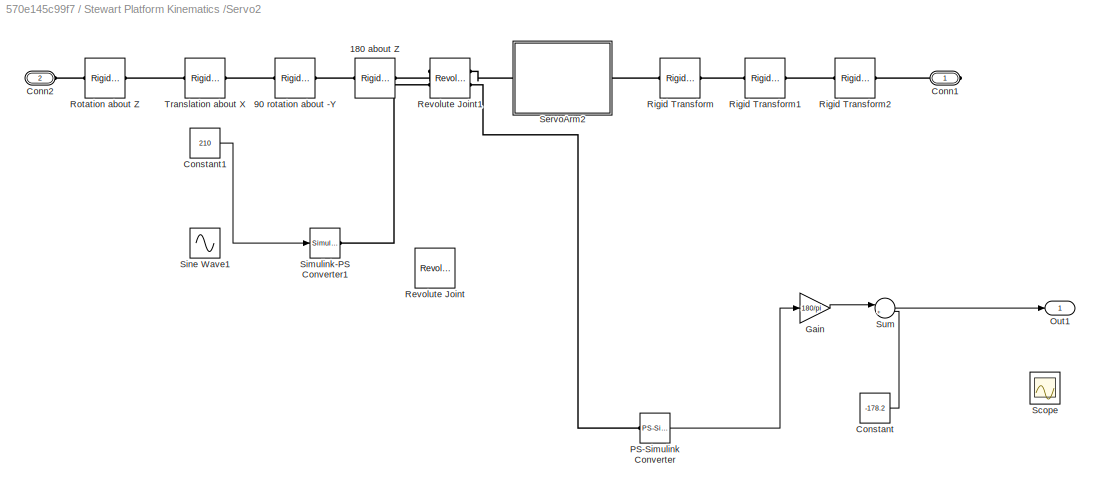
BLOCK [SubSystem] Stewart Platform Kinematics /Servo2
  Ports = [0, 1, 0, 0, 0, 1, 1]
  RequestExecContextInheritance = off
BLOCK [Reference] Stewart Platform Kinematics /Servo2/180 about Z  REF=sm_lib/Frames and
Transforms/Rigid
Transform
  BaseAlignAxisA = +Y
  BaseAlignAxisB = +Z
  BlockFunction = simmechanics.library.frames_transforms.rigid_transform
  ClassName = RigidTransform
  FollAlignAxisA = +X
  FollAlignAxisB = +Y
  LogSimulationData = off
  Ports = [0, 0, 0, 0, 0, 1, 1]
  RotationAngle = 180
  RotationAngleUnits = deg
  RotationArbitraryAxis = [0 0 1]
  RotationMatrix = [1 0 0; 0 1 0; 0 0 1]
  RotationMethod = StandardAxis
  RotationStandardAxis = +Z
  SourceBlock = sm_lib/Frames and\nTransforms/Rigid\nTransform
  SourceType = Rigid\nTransform
  TranslationCartesianOffset = [0 0 0]
  TranslationLengthUnit = m
  TranslationMethod = None
  TranslationROffset = 0
  TranslationROffsetUnits = m
  TranslationStandardAxis = +Z
  TranslationStandardOffset = 0
  TranslationThetaOffset = 0
  TranslationThetaOffsetUnits = deg
  TranslationZOffset = 0
  TranslationZOffsetUnits = m
BLOCK [Reference] Stewart Platform Kinematics /Servo2/90 rotation about -Y  REF=sm_lib/Frames and
Transforms/Rigid
Transform
  BaseAlignAxisA = +Y
  BaseAlignAxisB = +Z
  BlockFunction = simmechanics.library.frames_transforms.rigid_transform
  ClassName = RigidTransform
  FollAlignAxisA = +X
  FollAlignAxisB = +Y
  LogSimulationData = off
  Ports = [0, 0, 0, 0, 0, 1, 1]
  RotationAngle = 90
  RotationAngleUnits = deg
  RotationArbitraryAxis = [0 0 1]
  RotationMatrix = [1 0 0; 0 1 0; 0 0 1]
  RotationMethod = StandardAxis
  RotationStandardAxis = -Y
  SourceBlock = sm_lib/Frames and\nTransforms/Rigid\nTransform
  SourceType = Rigid\nTransform
  TranslationCartesianOffset = [0 0 0]
  TranslationLengthUnit = m
  TranslationMethod = None
  TranslationROffset = 0
  TranslationROffsetUnits = m
  TranslationStandardAxis = +Z
  TranslationStandardOffset = 0
  TranslationThetaOffset = 0
  TranslationThetaOffsetUnits = deg
  TranslationZOffset = 0
  TranslationZOffsetUnits = m
BLOCK [PMIOPort] Stewart Platform Kinematics /Servo2/Conn1
  Port = 1
  Side = Right
BLOCK [PMIOPort] Stewart Platform Kinematics /Servo2/Conn2
  Port = 2
  Side = Left
BLOCK [Constant] Stewart Platform Kinematics /Servo2/Constant
  Value = -178.2
BLOCK [Constant] Stewart Platform Kinematics /Servo2/Constant1
  Value = 210
BLOCK [Gain] Stewart Platform Kinematics /Servo2/Gain
  Gain = 180/pi
  OutDataTypeStr = Inherit: Inherit via internal rule
  ParamDataTypeStr = Inherit: Inherit via internal rule
  SaturateOnIntegerOverflow = off
BLOCK [Outport] Stewart Platform Kinematics /Servo2/Out1
  IconDisplay = Port number
BLOCK [Reference] Stewart Platform Kinematics /Servo2/PS-Simulink Converter  REF=nesl_utility/PS-Simulink
Converter
  AffineConversion = off
  Frequencies = []
  LeftPortType = input
  PhysicalDomain = network_engine_domain
  Ports = [0, 1, 0, 0, 0, 1]
  PseudoPeriodic = off
  RightPortType = output
  SourceBlock = nesl_utility/PS-Simulink\nConverter
  SourceType = PS-Simulink\nConverter
  SubClassName = ps_output
  Unit = rad
BLOCK [Reference] Stewart Platform Kinematics /Servo2/Revolute Joint  REF=sm_lib/Joints/Revolute Joint
  BlockFunction = simmechanics.library.joints.revolute_joint
  ClassName = RevoluteJoint
  CompositeWrenchDir = FollowerOnBase
  CompositeWrenchFrame = BaseFrame
  DampingCoefficient = 0
  DampingCoefficientUnits = N*m/(deg/s)
  EquilibriumPosition = 0
  EquilibriumPositionUnits = deg
  LogSimulationData = off
  MotionActuationMode = InputMotion
  Ports = [0, 0, 0, 0, 0, 2, 1]
  PositionTargetPriority = High
  PositionTargetSpecify = on
  PositionTargetValue = 0
  PositionTargetValueUnits = deg
  SenseAcceleration = off
  SenseConstraintForce = off
  SenseConstraintForceX = off
  SenseConstraintForceY = off
  SenseConstraintForceZ = off
  SenseConstraintTorque = off
  SenseConstraintTorqueX = off
  SenseConstraintTorqueY = off
  SenseConstraintTorqueZ = off
  SensePosition = off
  SenseTorqueForce = off
  SenseTotalForce = off
  SenseTotalForceX = off
  SenseTotalForceY = off
  SenseTotalForceZ = off
  SenseTotalTorque = off
  SenseTotalTorqueX = off
  SenseTotalTorqueY = off
  SenseTotalTorqueZ = off
  SenseVelocity = off
  SourceBlock = sm_lib/Joints/Revolute Joint
  SourceType = Revolute Joint
  SpringStiffness = 0
  SpringStiffnessUnits = N*m/deg
  TorqueActuationMode = ComputedTorque
  VelocityTargetPriority = High
  VelocityTargetSpecify = off
  VelocityTargetValue = 0
  VelocityTargetValueUnits = deg/s
BLOCK [Reference] Stewart Platform Kinematics /Servo2/Revolute Joint1  REF=sm_lib/Joints/Revolute Joint
  BlockFunction = simmechanics.library.joints.revolute_joint
  ClassName = RevoluteJoint
  CompositeWrenchDir = FollowerOnBase
  CompositeWrenchFrame = BaseFrame
  DampingCoefficient = 0
  DampingCoefficientUnits = N*m/(deg/s)
  EquilibriumPosition = 0
  EquilibriumPositionUnits = deg
  LogSimulationData = off
  MotionActuationMode = InputMotion
  Ports = [0, 0, 0, 0, 0, 2, 2]
  PositionTargetPriority = High
  PositionTargetSpecify = on
  PositionTargetValue = 180
  PositionTargetValueUnits = deg
  SenseAcceleration = off
  SenseConstraintForce = off
  SenseConstraintForceX = off
  SenseConstraintForceY = off
  SenseConstraintForceZ = off
  SenseConstraintTorque = off
  SenseConstraintTorqueX = off
  SenseConstraintTorqueY = off
  SenseConstraintTorqueZ = off
  SensePosition = on
  SenseTorqueForce = off
  SenseTotalForce = off
  SenseTotalForceX = off
  SenseTotalForceY = off
  SenseTotalForceZ = off
  SenseTotalTorque = off
  SenseTotalTorqueX = off
  SenseTotalTorqueY = off
  SenseTotalTorqueZ = off
  SenseVelocity = off
  SourceBlock = sm_lib/Joints/Revolute Joint
  SourceType = Revolute Joint
  SpringStiffness = 0
  SpringStiffnessUnits = N*m/deg
  TorqueActuationMode = ComputedTorque
  VelocityTargetPriority = High
  VelocityTargetSpecify = off
  VelocityTargetValue = 0
  VelocityTargetValueUnits = deg/s
BLOCK [Reference] Stewart Platform Kinematics /Servo2/Rigid Transform  REF=sm_lib/Frames and
Transforms/Rigid
Transform
  BaseAlignAxisA = +Y
  BaseAlignAxisB = +Z
  BlockFunction = simmechanics.library.frames_transforms.rigid_transform
  ClassName = RigidTransform
  FollAlignAxisA = +X
  FollAlignAxisB = +Y
  LogSimulationData = off
  Ports = [0, 0, 0, 0, 0, 1, 1]
  RotationAngle = 90
  RotationAngleUnits = deg
  RotationArbitraryAxis = [0 0 1]
  RotationMatrix = [1 0 0; 0 1 0; 0 0 1]
  RotationMethod = StandardAxis
  RotationStandardAxis = +Z
  SourceBlock = sm_lib/Frames and\nTransforms/Rigid\nTransform
  SourceType = Rigid\nTransform
  TranslationCartesianOffset = [0 0 0]
  TranslationLengthUnit = m
  TranslationMethod = None
  TranslationROffset = 0
  TranslationROffsetUnits = m
  TranslationStandardAxis = +Z
  TranslationStandardOffset = 0
  TranslationThetaOffset = 0
  TranslationThetaOffsetUnits = deg
  TranslationZOffset = 0
  TranslationZOffsetUnits = m
BLOCK [Reference] Stewart Platform Kinematics /Servo2/Rigid Transform1  REF=sm_lib/Frames and
Transforms/Rigid
Transform
  BaseAlignAxisA = +Y
  BaseAlignAxisB = +Z
  BlockFunction = simmechanics.library.frames_transforms.rigid_transform
  ClassName = RigidTransform
  FollAlignAxisA = +X
  FollAlignAxisB = +Y
  LogSimulationData = off
  Ports = [0, 0, 0, 0, 0, 1, 1]
  RotationAngle = 90
  RotationAngleUnits = deg
  RotationArbitraryAxis = [0 0 1]
  RotationMatrix = [1 0 0; 0 1 0; 0 0 1]
  RotationMethod = StandardAxis
  RotationStandardAxis = -X
  SourceBlock = sm_lib/Frames and\nTransforms/Rigid\nTransform
  SourceType = Rigid\nTransform
  TranslationCartesianOffset = [0 0 0]
  TranslationLengthUnit = m
  TranslationMethod = None
  TranslationROffset = 0
  TranslationROffsetUnits = m
  TranslationStandardAxis = +Z
  TranslationStandardOffset = 0
  TranslationThetaOffset = 0
  TranslationThetaOffsetUnits = deg
  TranslationZOffset = 0
  TranslationZOffsetUnits = m
BLOCK [Reference] Stewart Platform Kinematics /Servo2/Rigid Transform2  REF=sm_lib/Frames and
Transforms/Rigid
Transform
  BaseAlignAxisA = +Y
  BaseAlignAxisB = +Z
  BlockFunction = simmechanics.library.frames_transforms.rigid_transform
  ClassName = RigidTransform
  FollAlignAxisA = +X
  FollAlignAxisB = +Y
  LogSimulationData = off
  Ports = [0, 0, 0, 0, 0, 1, 1]
  RotationAngle = 180
  RotationAngleUnits = deg
  RotationArbitraryAxis = [0 0 1]
  RotationMatrix = [1 0 0; 0 1 0; 0 0 1]
  RotationMethod = StandardAxis
  RotationStandardAxis = +Y
  SourceBlock = sm_lib/Frames and\nTransforms/Rigid\nTransform
  SourceType = Rigid\nTransform
  TranslationCartesianOffset = [0 0 0]
  TranslationLengthUnit = m
  TranslationMethod = None
  TranslationROffset = 0
  TranslationROffsetUnits = m
  TranslationStandardAxis = +Z
  TranslationStandardOffset = 0
  TranslationThetaOffset = 0
  TranslationThetaOffsetUnits = deg
  TranslationZOffset = 0
  TranslationZOffsetUnits = m
BLOCK [Reference] Stewart Platform Kinematics /Servo2/Rotation about Z  REF=sm_lib/Frames and
Transforms/Rigid
Transform
  BaseAlignAxisA = +Y
  BaseAlignAxisB = +Z
  BlockFunction = simmechanics.library.frames_transforms.rigid_transform
  ClassName = RigidTransform
  FollAlignAxisA = +X
  FollAlignAxisB = +Y
  LogSimulationData = off
  Ports = [0, 0, 0, 0, 0, 1, 1]
  RotationAngle = 120-(gammabase+servoarm)
  RotationAngleUnits = deg
  RotationArbitraryAxis = [0 0 1]
  RotationMatrix = [1 0 0; 0 1 0; 0 0 1]
  RotationMethod = StandardAxis
  RotationStandardAxis = +Z
  SourceBlock = sm_lib/Frames and\nTransforms/Rigid\nTransform
  SourceType = Rigid\nTransform
  TranslationCartesianOffset = [0 0 0]
  TranslationLengthUnit = m
  TranslationMethod = None
  TranslationROffset = 0
  TranslationROffsetUnits = m
  TranslationStandardAxis = +Z
  TranslationStandardOffset = 0
  TranslationThetaOffset = 0
  TranslationThetaOffsetUnits = deg
  TranslationZOffset = 0
  TranslationZOffsetUnits = m
BLOCK [Scope] Stewart Platform Kinematics /Servo2/Scope
  Floating = off
  NumInputPorts = 1
  Ports = [1]
  SaveName = ScopeData2
BLOCK [SubSystem] Stewart Platform Kinematics /Servo2/ServoArm2
  Ports = [0, 0, 0, 0, 0, 1, 1]
  RequestExecContextInheritance = off
BLOCK [PMIOPort] Stewart Platform Kinematics /Servo2/ServoArm2/Conn1
  Port = 1
  Side = Left
BLOCK [PMIOPort] Stewart Platform Kinematics /Servo2/ServoArm2/Conn2
  Port = 2
  Side = Right
BLOCK [Reference] Stewart Platform Kinematics /Servo2/ServoArm2/Rigid Transform2  REF=sm_lib/Frames and
Transforms/Rigid
Transform
  BaseAlignAxisA = +Y
  BaseAlignAxisB = +Z
  BlockFunction = simmechanics.library.frames_transforms.rigid_transform
  ClassName = RigidTransform
  FollAlignAxisA = +X
  FollAlignAxisB = +Y
  LogSimulationData = off
  Ports = [0, 0, 0, 0, 0, 1, 1]
  RotationAngle = 90
  RotationAngleUnits = deg
  RotationArbitraryAxis = [0 0 1]
  RotationMatrix = [1 0 0; 0 1 0; 0 0 1]
  RotationMethod = StandardAxis
  RotationStandardAxis = +X
  SourceBlock = sm_lib/Frames and\nTransforms/Rigid\nTransform
  SourceType = Rigid\nTransform
  TranslationCartesianOffset = [0 0 0]
  TranslationLengthUnit = cm
  TranslationMethod = StandardAxis
  TranslationROffset = 0
  TranslationROffsetUnits = m
  TranslationStandardAxis = +Z
  TranslationStandardOffset = 1.5
  TranslationThetaOffset = 0
  TranslationThetaOffsetUnits = deg
  TranslationZOffset = 0
  TranslationZOffsetUnits = m
BLOCK [Reference] Stewart Platform Kinematics /Servo2/ServoArm2/Rigid Transform3  REF=sm_lib/Frames and
Transforms/Rigid
Transform
  BaseAlignAxisA = +Y
  BaseAlignAxisB = +Z
  BlockFunction = simmechanics.library.frames_transforms.rigid_transform
  ClassName = RigidTransform
  FollAlignAxisA = +X
  FollAlignAxisB = +Y
  LogSimulationData = off
  Ports = [0, 0, 0, 0, 0, 1, 1]
  RotationAngle = 90
  RotationAngleUnits = deg
  RotationArbitraryAxis = [0 0 1]
  RotationMatrix = [1 0 0; 0 1 0; 0 0 1]
  RotationMethod = None
  RotationStandardAxis = +X
  SourceBlock = sm_lib/Frames and\nTransforms/Rigid\nTransform
  SourceType = Rigid\nTransform
  TranslationCartesianOffset = [0 0 0]
  TranslationLengthUnit = cm
  TranslationMethod = StandardAxis
  TranslationROffset = 0
  TranslationROffsetUnits = m
  TranslationStandardAxis = -Z
  TranslationStandardOffset = 1.5
  TranslationThetaOffset = 0
  TranslationThetaOffsetUnits = deg
  TranslationZOffset = 0
  TranslationZOffsetUnits = m
BLOCK [Reference] Stewart Platform Kinematics /Servo2/ServoArm2/ServoArm1  REF=sm_lib/Body Elements/Solid
  BlockFunction = simmechanics.library.body_elements.solid
  BrickDimensionUnits = m
  BrickDimensions = [1 1 1]
  CenterOfMass = [0 0 0]
  CenterOfMassUnits = m
  ClassName = Solid
  CylinderLength = 3
  CylinderLengthUnits = cm
  CylinderRadius = 3
  CylinderRadiusUnits = mm
  Density = 2700
  DensityBased = on
  DensityUnits = kg/m^3
  EllipsoidRadii = [1 1 1]
  EllipsoidRadiiUnits = m
  ExtGeomFileType = STL
  ExtGeomFileUnits = m
  ExtrusionCrossSection = [1 1; -1 1; -1 -1; 1 -1]
  ExtrusionCrossSectionUnits = m
  ExtrusionLength = 1
  ExtrusionLengthUnits = m
  GeometryShape = Cylinder
  GraphicAmbientColor = [0.15 0.15 0.15 1.0]
  GraphicDiffuseColor = [1.0 1.0 0.2]
  GraphicEmissiveColor = [0.0 0.0 0.0 1.0]
  GraphicOpacity = 1.0
  GraphicShininess = 75
  GraphicSpecularColor = [0.5 0.5 0.5 1.0]
  GraphicType = FromGeometry
  GraphicVisPropType = SimpleVisualProperties
  InertiaType = CalculateFromGeometry
  LogSimulationData = off
  MarkerShape = Sphere
  MarkerSize = 10
  MarkerSizeUnits = m
  Mass = 1
  MassUnits = kg
  MomentsOfInertia = [1 1 1]
  MomentsOfInertiaUnits = kg*m^2
  PolygonNumSides = 3
  PolygonOuterRadius = 1
  PolygonOuterRadiusUnits = m
  Ports = [0, 0, 0, 0, 0, 0, 1]
  ProductsOfInertia = [0 0 0]
  ProductsOfInertiaUnits = kg*m^2
  RectangleSize = [1 1]
  RectangleSizeUnits = m
  RevolutionAngle = 180
  RevolutionAngleUnits = deg
  RevolutionCrossSection = [1 1; 1 -1; 2 -1; 2 1]
  RevolutionCrossSectionUnits = m
  RevolutionExtent = Full
  SourceBlock = sm_lib/Body Elements/Solid
  SourceType = Solid
  SphereRadius = 1
  SphereRadiusUnits = m
BLOCK [Reference] Stewart Platform Kinematics /Servo2/Simulink-PS Converter1  REF=nesl_utility/Simulink-PS
Converter
  AffineConversion = off
  Frequencies = []
  InputFilterTimeConstant = 0.01
  InputFiltering = on
  LeftPortType = input
  NoiseDistribution = none
  NoiseParameters = []
  PhysicalDomain = network_engine_domain
  Ports = [1, 0, 0, 0, 0, 0, 1]
  PseudoPeriodic = off
  RightPortType = output
  SimscapeFilterOrder = 2
  SourceBlock = nesl_utility/Simulink-PS\nConverter
  SourceType = Simulink-PS\nConverter
  SubClassName = ps_input
  UdotUserProvided = 1
  Unit = deg
BLOCK [Sin] Stewart Platform Kinematics /Servo2/Sine Wave1
  Amplitude = 5
  Frequency = 5
  Ports = [0, 1]
  SampleTime = 0
BLOCK [Sum] Stewart Platform Kinematics /Servo2/Sum
  IconShape = round
  InputSameDT = off
  Inputs = |++
  OutDataTypeStr = Inherit: Inherit via internal rule
  Ports = [2, 1]
  SaturateOnIntegerOverflow = off
BLOCK [Reference] Stewart Platform Kinematics /Servo2/Translation about X  REF=sm_lib/Frames and
Transforms/Rigid
Transform
  BaseAlignAxisA = +Y
  BaseAlignAxisB = +Z
  BlockFunction = simmechanics.library.frames_transforms.rigid_transform
  ClassName = RigidTransform
  FollAlignAxisA = +X
  FollAlignAxisB = +Y
  LogSimulationData = off
  Ports = [0, 0, 0, 0, 0, 1, 1]
  RotationAngle = 0.0
  RotationAngleUnits = deg
  RotationArbitraryAxis = [0 0 1]
  RotationMatrix = [1 0 0; 0 1 0; 0 0 1]
  RotationMethod = None
  RotationStandardAxis = +Z
  SourceBlock = sm_lib/Frames and\nTransforms/Rigid\nTransform
  SourceType = Rigid\nTransform
  TranslationCartesianOffset = [0 0 0]
  TranslationLengthUnit = m
  TranslationMethod = StandardAxis
  TranslationROffset = 0
  TranslationROffsetUnits = m
  TranslationStandardAxis = +X
  TranslationStandardOffset = 0.2
  TranslationThetaOffset = 0
  TranslationThetaOffsetUnits = deg
  TranslationZOffset = 0
  TranslationZOffsetUnits = m
BLOCK [SubSystem] Stewart Platform Kinematics /Servo3
  Ports = [0, 1, 0, 0, 0, 1, 1]
  RequestExecContextInheritance = off
BLOCK [Reference] Stewart Platform Kinematics /Servo3/90 rotation about -Y  REF=sm_lib/Frames and
Transforms/Rigid
Transform
  BaseAlignAxisA = +Y
  BaseAlignAxisB = +Z
  BlockFunction = simmechanics.library.frames_transforms.rigid_transform
  ClassName = RigidTransform
  FollAlignAxisA = +X
  FollAlignAxisB = +Y
  LogSimulationData = off
  Ports = [0, 0, 0, 0, 0, 1, 1]
  RotationAngle = 90
  RotationAngleUnits = deg
  RotationArbitraryAxis = [0 0 1]
  RotationMatrix = [1 0 0; 0 1 0; 0 0 1]
  RotationMethod = StandardAxis
  RotationStandardAxis = -Y
  SourceBlock = sm_lib/Frames and\nTransforms/Rigid\nTransform
  SourceType = Rigid\nTransform
  TranslationCartesianOffset = [0 0 0]
  TranslationLengthUnit = m
  TranslationMethod = None
  TranslationROffset = 0
  TranslationROffsetUnits = m
  TranslationStandardAxis = +Z
  TranslationStandardOffset = 0
  TranslationThetaOffset = 0
  TranslationThetaOffsetUnits = deg
  TranslationZOffset = 0
  TranslationZOffsetUnits = m
BLOCK [PMIOPort] Stewart Platform Kinematics /Servo3/Conn1
  Port = 1
  Side = Left
BLOCK [PMIOPort] Stewart Platform Kinematics /Servo3/Conn2
  Port = 2
  Side = Right
BLOCK [Constant] Stewart Platform Kinematics /Servo3/Constant
  Value = 178.2
BLOCK [Constant] Stewart Platform Kinematics /Servo3/Constant1
  Value = 150
BLOCK [Gain] Stewart Platform Kinematics /Servo3/Gain
  Gain = 180/pi
  OutDataTypeStr = Inherit: Inherit via internal rule
  ParamDataTypeStr = Inherit: Inherit via internal rule
  SaturateOnIntegerOverflow = off
BLOCK [Outport] Stewart Platform Kinematics /Servo3/Out1
  IconDisplay = Port number
BLOCK [Reference] Stewart Platform Kinematics /Servo3/PS-Simulink Converter  REF=nesl_utility/PS-Simulink
Converter
  AffineConversion = off
  Frequencies = []
  LeftPortType = input
  PhysicalDomain = network_engine_domain
  Ports = [0, 1, 0, 0, 0, 1]
  PseudoPeriodic = off
  RightPortType = output
  SourceBlock = nesl_utility/PS-Simulink\nConverter
  SourceType = PS-Simulink\nConverter
  SubClassName = ps_output
  Unit = rad
BLOCK [Reference] Stewart Platform Kinematics /Servo3/Revolute Joint  REF=sm_lib/Joints/Revolute Joint
  BlockFunction = simmechanics.library.joints.revolute_joint
  ClassName = RevoluteJoint
  CompositeWrenchDir = FollowerOnBase
  CompositeWrenchFrame = BaseFrame
  DampingCoefficient = 0
  DampingCoefficientUnits = N*m/(deg/s)
  EquilibriumPosition = 0
  EquilibriumPositionUnits = deg
  LogSimulationData = off
  MotionActuationMode = InputMotion
  Ports = [0, 0, 0, 0, 0, 2, 1]
  PositionTargetPriority = High
  PositionTargetSpecify = off
  PositionTargetValue = 0
  PositionTargetValueUnits = deg
  SenseAcceleration = off
  SenseConstraintForce = off
  SenseConstraintForceX = off
  SenseConstraintForceY = off
  SenseConstraintForceZ = off
  SenseConstraintTorque = off
  SenseConstraintTorqueX = off
  SenseConstraintTorqueY = off
  SenseConstraintTorqueZ = off
  SensePosition = off
  SenseTorqueForce = off
  SenseTotalForce = off
  SenseTotalForceX = off
  SenseTotalForceY = off
  SenseTotalForceZ = off
  SenseTotalTorque = off
  SenseTotalTorqueX = off
  SenseTotalTorqueY = off
  SenseTotalTorqueZ = off
  SenseVelocity = off
  SourceBlock = sm_lib/Joints/Revolute Joint
  SourceType = Revolute Joint
  SpringStiffness = 0
  SpringStiffnessUnits = N*m/deg
  TorqueActuationMode = ComputedTorque
  VelocityTargetPriority = High
  VelocityTargetSpecify = off
  VelocityTargetValue = 0
  VelocityTargetValueUnits = deg/s
BLOCK [Reference] Stewart Platform Kinematics /Servo3/Revolute Joint1  REF=sm_lib/Joints/Revolute Joint
  BlockFunction = simmechanics.library.joints.revolute_joint
  ClassName = RevoluteJoint
  CompositeWrenchDir = FollowerOnBase
  CompositeWrenchFrame = BaseFrame
  DampingCoefficient = 0
  DampingCoefficientUnits = N*m/(deg/s)
  EquilibriumPosition = 0
  EquilibriumPositionUnits = deg
  LogSimulationData = off
  MotionActuationMode = InputMotion
  Ports = [0, 0, 0, 0, 0, 2, 2]
  PositionTargetPriority = High
  PositionTargetSpecify = on
  PositionTargetValue = 180
  PositionTargetValueUnits = deg
  SenseAcceleration = off
  SenseConstraintForce = off
  SenseConstraintForceX = off
  SenseConstraintForceY = off
  SenseConstraintForceZ = off
  SenseConstraintTorque = off
  SenseConstraintTorqueX = off
  SenseConstraintTorqueY = off
  SenseConstraintTorqueZ = off
  SensePosition = on
  SenseTorqueForce = off
  SenseTotalForce = off
  SenseTotalForceX = off
  SenseTotalForceY = off
  SenseTotalForceZ = off
  SenseTotalTorque = off
  SenseTotalTorqueX = off
  SenseTotalTorqueY = off
  SenseTotalTorqueZ = off
  SenseVelocity = off
  SourceBlock = sm_lib/Joints/Revolute Joint
  SourceType = Revolute Joint
  SpringStiffness = 0
  SpringStiffnessUnits = N*m/deg
  TorqueActuationMode = ComputedTorque
  VelocityTargetPriority = High
  VelocityTargetSpecify = off
  VelocityTargetValue = 0
  VelocityTargetValueUnits = deg/s
BLOCK [Reference] Stewart Platform Kinematics /Servo3/Rigid Transform  REF=sm_lib/Frames and
Transforms/Rigid
Transform
  BaseAlignAxisA = +Y
  BaseAlignAxisB = +Z
  BlockFunction = simmechanics.library.frames_transforms.rigid_transform
  ClassName = RigidTransform
  FollAlignAxisA = +X
  FollAlignAxisB = +Y
  LogSimulationData = off
  Ports = [0, 0, 0, 0, 0, 1, 1]
  RotationAngle = 90
  RotationAngleUnits = deg
  RotationArbitraryAxis = [0 0 1]
  RotationMatrix = [1 0 0; 0 1 0; 0 0 1]
  RotationMethod = StandardAxis
  RotationStandardAxis = +Z
  SourceBlock = sm_lib/Frames and\nTransforms/Rigid\nTransform
  SourceType = Rigid\nTransform
  TranslationCartesianOffset = [0 0 0]
  TranslationLengthUnit = m
  TranslationMethod = None
  TranslationROffset = 0
  TranslationROffsetUnits = m
  TranslationStandardAxis = +Z
  TranslationStandardOffset = 0
  TranslationThetaOffset = 0
  TranslationThetaOffsetUnits = deg
  TranslationZOffset = 0
  TranslationZOffsetUnits = m
BLOCK [Reference] Stewart Platform Kinematics /Servo3/Rigid Transform1  REF=sm_lib/Frames and
Transforms/Rigid
Transform
  BaseAlignAxisA = +Y
  BaseAlignAxisB = +Z
  BlockFunction = simmechanics.library.frames_transforms.rigid_transform
  ClassName = RigidTransform
  FollAlignAxisA = +X
  FollAlignAxisB = +Y
  LogSimulationData = off
  Ports = [0, 0, 0, 0, 0, 1, 1]
  RotationAngle = 90
  RotationAngleUnits = deg
  RotationArbitraryAxis = [0 0 1]
  RotationMatrix = [1 0 0; 0 1 0; 0 0 1]
  RotationMethod = StandardAxis
  RotationStandardAxis = -X
  SourceBlock = sm_lib/Frames and\nTransforms/Rigid\nTransform
  SourceType = Rigid\nTransform
  TranslationCartesianOffset = [0 0 0]
  TranslationLengthUnit = m
  TranslationMethod = None
  TranslationROffset = 0
  TranslationROffsetUnits = m
  TranslationStandardAxis = +Z
  TranslationStandardOffset = 0
  TranslationThetaOffset = 0
  TranslationThetaOffsetUnits = deg
  TranslationZOffset = 0
  TranslationZOffsetUnits = m
BLOCK [Reference] Stewart Platform Kinematics /Servo3/Rotation about Z  REF=sm_lib/Frames and
Transforms/Rigid
Transform
  BaseAlignAxisA = +Y
  BaseAlignAxisB = +Z
  BlockFunction = simmechanics.library.frames_transforms.rigid_transform
  ClassName = RigidTransform
  FollAlignAxisA = +X
  FollAlignAxisB = +Y
  LogSimulationData = off
  Ports = [0, 0, 0, 0, 0, 1, 1]
  RotationAngle = 120+gammabase+servoarm
  RotationAngleUnits = deg
  RotationArbitraryAxis = [0 0 1]
  RotationMatrix = [1 0 0; 0 1 0; 0 0 1]
  RotationMethod = StandardAxis
  RotationStandardAxis = +Z
  SourceBlock = sm_lib/Frames and\nTransforms/Rigid\nTransform
  SourceType = Rigid\nTransform
  TranslationCartesianOffset = [0 0 0]
  TranslationLengthUnit = m
  TranslationMethod = None
  TranslationROffset = 0
  TranslationROffsetUnits = m
  TranslationStandardAxis = +Z
  TranslationStandardOffset = 0
  TranslationThetaOffset = 0
  TranslationThetaOffsetUnits = deg
  TranslationZOffset = 0
  TranslationZOffsetUnits = m
BLOCK [Scope] Stewart Platform Kinematics /Servo3/Scope
  Floating = off
  NumInputPorts = 1
  Ports = [1]
  SaveName = ScopeData3
BLOCK [SubSystem] Stewart Platform Kinematics /Servo3/ServoArm3
  Ports = [0, 0, 0, 0, 0, 1, 1]
  RequestExecContextInheritance = off
BLOCK [PMIOPort] Stewart Platform Kinematics /Servo3/ServoArm3/Conn1
  Port = 1
  Side = Left
BLOCK [PMIOPort] Stewart Platform Kinematics /Servo3/ServoArm3/Conn2
  Port = 2
  Side = Right
BLOCK [Reference] Stewart Platform Kinematics /Servo3/ServoArm3/Rigid Transform2  REF=sm_lib/Frames and
Transforms/Rigid
Transform
  BaseAlignAxisA = +Y
  BaseAlignAxisB = +Z
  BlockFunction = simmechanics.library.frames_transforms.rigid_transform
  ClassName = RigidTransform
  FollAlignAxisA = +X
  FollAlignAxisB = +Y
  LogSimulationData = off
  Ports = [0, 0, 0, 0, 0, 1, 1]
  RotationAngle = 90
  RotationAngleUnits = deg
  RotationArbitraryAxis = [0 0 1]
  RotationMatrix = [1 0 0; 0 1 0; 0 0 1]
  RotationMethod = StandardAxis
  RotationStandardAxis = +X
  SourceBlock = sm_lib/Frames and\nTransforms/Rigid\nTransform
  SourceType = Rigid\nTransform
  TranslationCartesianOffset = [0 0 0]
  TranslationLengthUnit = cm
  TranslationMethod = StandardAxis
  TranslationROffset = 0
  TranslationROffsetUnits = m
  TranslationStandardAxis = +Z
  TranslationStandardOffset = 1.5
  TranslationThetaOffset = 0
  TranslationThetaOffsetUnits = deg
  TranslationZOffset = 0
  TranslationZOffsetUnits = m
BLOCK [Reference] Stewart Platform Kinematics /Servo3/ServoArm3/Rigid Transform3  REF=sm_lib/Frames and
Transforms/Rigid
Transform
  BaseAlignAxisA = +Y
  BaseAlignAxisB = +Z
  BlockFunction = simmechanics.library.frames_transforms.rigid_transform
  ClassName = RigidTransform
  FollAlignAxisA = +X
  FollAlignAxisB = +Y
  LogSimulationData = off
  Ports = [0, 0, 0, 0, 0, 1, 1]
  RotationAngle = 90
  RotationAngleUnits = deg
  RotationArbitraryAxis = [0 0 1]
  RotationMatrix = [1 0 0; 0 1 0; 0 0 1]
  RotationMethod = None
  RotationStandardAxis = +X
  SourceBlock = sm_lib/Frames and\nTransforms/Rigid\nTransform
  SourceType = Rigid\nTransform
  TranslationCartesianOffset = [0 0 0]
  TranslationLengthUnit = cm
  TranslationMethod = StandardAxis
  TranslationROffset = 0
  TranslationROffsetUnits = m
  TranslationStandardAxis = -Z
  TranslationStandardOffset = 1.5
  TranslationThetaOffset = 0
  TranslationThetaOffsetUnits = deg
  TranslationZOffset = 0
  TranslationZOffsetUnits = m
BLOCK [Reference] Stewart Platform Kinematics /Servo3/ServoArm3/ServoArm1  REF=sm_lib/Body Elements/Solid
  BlockFunction = simmechanics.library.body_elements.solid
  BrickDimensionUnits = m
  BrickDimensions = [1 1 1]
  CenterOfMass = [0 0 0]
  CenterOfMassUnits = m
  ClassName = Solid
  CylinderLength = 3
  CylinderLengthUnits = cm
  CylinderRadius = 3
  CylinderRadiusUnits = mm
  Density = 2700
  DensityBased = on
  DensityUnits = kg/m^3
  EllipsoidRadii = [1 1 1]
  EllipsoidRadiiUnits = m
  ExtGeomFileType = STL
  ExtGeomFileUnits = m
  ExtrusionCrossSection = [1 1; -1 1; -1 -1; 1 -1]
  ExtrusionCrossSectionUnits = m
  ExtrusionLength = 1
  ExtrusionLengthUnits = m
  GeometryShape = Cylinder
  GraphicAmbientColor = [0.15 0.15 0.15 1.0]
  GraphicDiffuseColor = [1.0 1.0 0.2]
  GraphicEmissiveColor = [0.0 0.0 0.0 1.0]
  GraphicOpacity = 1.0
  GraphicShininess = 75
  GraphicSpecularColor = [0.5 0.5 0.5 1.0]
  GraphicType = FromGeometry
  GraphicVisPropType = SimpleVisualProperties
  InertiaType = CalculateFromGeometry
  LogSimulationData = off
  MarkerShape = Sphere
  MarkerSize = 10
  MarkerSizeUnits = m
  Mass = 1
  MassUnits = kg
  MomentsOfInertia = [1 1 1]
  MomentsOfInertiaUnits = kg*m^2
  PolygonNumSides = 3
  PolygonOuterRadius = 1
  PolygonOuterRadiusUnits = m
  Ports = [0, 0, 0, 0, 0, 0, 1]
  ProductsOfInertia = [0 0 0]
  ProductsOfInertiaUnits = kg*m^2
  RectangleSize = [1 1]
  RectangleSizeUnits = m
  RevolutionAngle = 180
  RevolutionAngleUnits = deg
  RevolutionCrossSection = [1 1; 1 -1; 2 -1; 2 1]
  RevolutionCrossSectionUnits = m
  RevolutionExtent = Full
  SourceBlock = sm_lib/Body Elements/Solid
  SourceType = Solid
  SphereRadius = 1
  SphereRadiusUnits = m
BLOCK [Reference] Stewart Platform Kinematics /Servo3/Simulink-PS Converter1  REF=nesl_utility/Simulink-PS
Converter
  AffineConversion = off
  Frequencies = []
  InputFilterTimeConstant = 0.01
  InputFiltering = on
  LeftPortType = input
  NoiseDistribution = none
  NoiseParameters = []
  PhysicalDomain = network_engine_domain
  Ports = [1, 0, 0, 0, 0, 0, 1]
  PseudoPeriodic = off
  RightPortType = output
  SimscapeFilterOrder = 2
  SourceBlock = nesl_utility/Simulink-PS\nConverter
  SourceType = Simulink-PS\nConverter
  SubClassName = ps_input
  UdotUserProvided = 1
  Unit = deg
BLOCK [Sin] Stewart Platform Kinematics /Servo3/Sine Wave1
  Amplitude = 5
  Frequency = 5
  Ports = [0, 1]
  SampleTime = 0
BLOCK [Sum] Stewart Platform Kinematics /Servo3/Sum
  IconShape = round
  InputSameDT = off
  Inputs = |++
  OutDataTypeStr = Inherit: Inherit via internal rule
  Ports = [2, 1]
  SaturateOnIntegerOverflow = off
BLOCK [Reference] Stewart Platform Kinematics /Servo3/Translation about X  REF=sm_lib/Frames and
Transforms/Rigid
Transform
  BaseAlignAxisA = +Y
  BaseAlignAxisB = +Z
  BlockFunction = simmechanics.library.frames_transforms.rigid_transform
  ClassName = RigidTransform
  FollAlignAxisA = +X
  FollAlignAxisB = +Y
  LogSimulationData = off
  Ports = [0, 0, 0, 0, 0, 1, 1]
  RotationAngle = 0.0
  RotationAngleUnits = deg
  RotationArbitraryAxis = [0 0 1]
  RotationMatrix = [1 0 0; 0 1 0; 0 0 1]
  RotationMethod = None
  RotationStandardAxis = +Z
  SourceBlock = sm_lib/Frames and\nTransforms/Rigid\nTransform
  SourceType = Rigid\nTransform
  TranslationCartesianOffset = [0 0 0]
  TranslationLengthUnit = m
  TranslationMethod = StandardAxis
  TranslationROffset = 0
  TranslationROffsetUnits = m
  TranslationStandardAxis = +X
  TranslationStandardOffset = 0.2
  TranslationThetaOffset = 0
  TranslationThetaOffsetUnits = deg
  TranslationZOffset = 0
  TranslationZOffsetUnits = m
BLOCK [SubSystem] Stewart Platform Kinematics /Servo4
  Ports = [0, 1, 0, 0, 0, 1, 1]
  RequestExecContextInheritance = off
BLOCK [Reference] Stewart Platform Kinematics /Servo4/180 about Z  REF=sm_lib/Frames and
Transforms/Rigid
Transform
  BaseAlignAxisA = +Y
  BaseAlignAxisB = +Z
  BlockFunction = simmechanics.library.frames_transforms.rigid_transform
  ClassName = RigidTransform
  FollAlignAxisA = +X
  FollAlignAxisB = +Y
  LogSimulationData = off
  Ports = [0, 0, 0, 0, 0, 1, 1]
  RotationAngle = 180
  RotationAngleUnits = deg
  RotationArbitraryAxis = [0 0 1]
  RotationMatrix = [1 0 0; 0 1 0; 0 0 1]
  RotationMethod = StandardAxis
  RotationStandardAxis = +Z
  SourceBlock = sm_lib/Frames and\nTransforms/Rigid\nTransform
  SourceType = Rigid\nTransform
  TranslationCartesianOffset = [0 0 0]
  TranslationLengthUnit = m
  TranslationMethod = None
  TranslationROffset = 0
  TranslationROffsetUnits = m
  TranslationStandardAxis = +Z
  TranslationStandardOffset = 0
  TranslationThetaOffset = 0
  TranslationThetaOffsetUnits = deg
  TranslationZOffset = 0
  TranslationZOffsetUnits = m
BLOCK [Reference] Stewart Platform Kinematics /Servo4/90 rotation about -Y  REF=sm_lib/Frames and
Transforms/Rigid
Transform
  BaseAlignAxisA = +Y
  BaseAlignAxisB = +Z
  BlockFunction = simmechanics.library.frames_transforms.rigid_transform
  ClassName = RigidTransform
  FollAlignAxisA = +X
  FollAlignAxisB = +Y
  LogSimulationData = off
  Ports = [0, 0, 0, 0, 0, 1, 1]
  RotationAngle = 90
  RotationAngleUnits = deg
  RotationArbitraryAxis = [0 0 1]
  RotationMatrix = [1 0 0; 0 1 0; 0 0 1]
  RotationMethod = StandardAxis
  RotationStandardAxis = -Y
  SourceBlock = sm_lib/Frames and\nTransforms/Rigid\nTransform
  SourceType = Rigid\nTransform
  TranslationCartesianOffset = [0 0 0]
  TranslationLengthUnit = m
  TranslationMethod = None
  TranslationROffset = 0
  TranslationROffsetUnits = m
  TranslationStandardAxis = +Z
  TranslationStandardOffset = 0
  TranslationThetaOffset = 0
  TranslationThetaOffsetUnits = deg
  TranslationZOffset = 0
  TranslationZOffsetUnits = m
BLOCK [PMIOPort] Stewart Platform Kinematics /Servo4/Conn1
  Port = 1
  Side = Left
BLOCK [PMIOPort] Stewart Platform Kinematics /Servo4/Conn2
  Port = 2
  Side = Right
BLOCK [Constant] Stewart Platform Kinematics /Servo4/Constant
  Value = -178.2
BLOCK [Constant] Stewart Platform Kinematics /Servo4/Constant1
  Value = 210
BLOCK [Gain] Stewart Platform Kinematics /Servo4/Gain
  Gain = 180/pi
  OutDataTypeStr = Inherit: Inherit via internal rule
  ParamDataTypeStr = Inherit: Inherit via internal rule
  SaturateOnIntegerOverflow = off
BLOCK [Outport] Stewart Platform Kinematics /Servo4/Out1
  IconDisplay = Port number
BLOCK [Reference] Stewart Platform Kinematics /Servo4/PS-Simulink Converter  REF=nesl_utility/PS-Simulink
Converter
  AffineConversion = off
  Frequencies = []
  LeftPortType = input
  PhysicalDomain = network_engine_domain
  Ports = [0, 1, 0, 0, 0, 1]
  PseudoPeriodic = off
  RightPortType = output
  SourceBlock = nesl_utility/PS-Simulink\nConverter
  SourceType = PS-Simulink\nConverter
  SubClassName = ps_output
  Unit = rad
BLOCK [Reference] Stewart Platform Kinematics /Servo4/Revolute Joint  REF=sm_lib/Joints/Revolute Joint
  BlockFunction = simmechanics.library.joints.revolute_joint
  ClassName = RevoluteJoint
  CompositeWrenchDir = FollowerOnBase
  CompositeWrenchFrame = BaseFrame
  DampingCoefficient = 0
  DampingCoefficientUnits = N*m/(deg/s)
  EquilibriumPosition = 0
  EquilibriumPositionUnits = deg
  LogSimulationData = off
  MotionActuationMode = InputMotion
  Ports = [0, 0, 0, 0, 0, 2, 1]
  PositionTargetPriority = High
  PositionTargetSpecify = off
  PositionTargetValue = 0
  PositionTargetValueUnits = deg
  SenseAcceleration = off
  SenseConstraintForce = off
  SenseConstraintForceX = off
  SenseConstraintForceY = off
  SenseConstraintForceZ = off
  SenseConstraintTorque = off
  SenseConstraintTorqueX = off
  SenseConstraintTorqueY = off
  SenseConstraintTorqueZ = off
  SensePosition = off
  SenseTorqueForce = off
  SenseTotalForce = off
  SenseTotalForceX = off
  SenseTotalForceY = off
  SenseTotalForceZ = off
  SenseTotalTorque = off
  SenseTotalTorqueX = off
  SenseTotalTorqueY = off
  SenseTotalTorqueZ = off
  SenseVelocity = off
  SourceBlock = sm_lib/Joints/Revolute Joint
  SourceType = Revolute Joint
  SpringStiffness = 0
  SpringStiffnessUnits = N*m/deg
  TorqueActuationMode = ComputedTorque
  VelocityTargetPriority = High
  VelocityTargetSpecify = off
  VelocityTargetValue = 0
  VelocityTargetValueUnits = deg/s
BLOCK [Reference] Stewart Platform Kinematics /Servo4/Revolute Joint1  REF=sm_lib/Joints/Revolute Joint
  BlockFunction = simmechanics.library.joints.revolute_joint
  ClassName = RevoluteJoint
  CompositeWrenchDir = FollowerOnBase
  CompositeWrenchFrame = BaseFrame
  DampingCoefficient = 0
  DampingCoefficientUnits = N*m/(deg/s)
  EquilibriumPosition = 0
  EquilibriumPositionUnits = deg
  LogSimulationData = off
  MotionActuationMode = InputMotion
  Ports = [0, 0, 0, 0, 0, 2, 2]
  PositionTargetPriority = High
  PositionTargetSpecify = on
  PositionTargetValue = 180
  PositionTargetValueUnits = deg
  SenseAcceleration = off
  SenseConstraintForce = off
  SenseConstraintForceX = off
  SenseConstraintForceY = off
  SenseConstraintForceZ = off
  SenseConstraintTorque = off
  SenseConstraintTorqueX = off
  SenseConstraintTorqueY = off
  SenseConstraintTorqueZ = off
  SensePosition = on
  SenseTorqueForce = off
  SenseTotalForce = off
  SenseTotalForceX = off
  SenseTotalForceY = off
  SenseTotalForceZ = off
  SenseTotalTorque = off
  SenseTotalTorqueX = off
  SenseTotalTorqueY = off
  SenseTotalTorqueZ = off
  SenseVelocity = off
  SourceBlock = sm_lib/Joints/Revolute Joint
  SourceType = Revolute Joint
  SpringStiffness = 0
  SpringStiffnessUnits = N*m/deg
  TorqueActuationMode = ComputedTorque
  VelocityTargetPriority = High
  VelocityTargetSpecify = off
  VelocityTargetValue = 0
  VelocityTargetValueUnits = deg/s
BLOCK [Reference] Stewart Platform Kinematics /Servo4/Rigid Transform  REF=sm_lib/Frames and
Transforms/Rigid
Transform
  BaseAlignAxisA = +Y
  BaseAlignAxisB = +Z
  BlockFunction = simmechanics.library.frames_transforms.rigid_transform
  ClassName = RigidTransform
  FollAlignAxisA = +X
  FollAlignAxisB = +Y
  LogSimulationData = off
  Ports = [0, 0, 0, 0, 0, 1, 1]
  RotationAngle = 90
  RotationAngleUnits = deg
  RotationArbitraryAxis = [0 0 1]
  RotationMatrix = [1 0 0; 0 1 0; 0 0 1]
  RotationMethod = StandardAxis
  RotationStandardAxis = +Z
  SourceBlock = sm_lib/Frames and\nTransforms/Rigid\nTransform
  SourceType = Rigid\nTransform
  TranslationCartesianOffset = [0 0 0]
  TranslationLengthUnit = m
  TranslationMethod = None
  TranslationROffset = 0
  TranslationROffsetUnits = m
  TranslationStandardAxis = +Z
  TranslationStandardOffset = 0
  TranslationThetaOffset = 0
  TranslationThetaOffsetUnits = deg
  TranslationZOffset = 0
  TranslationZOffsetUnits = m
BLOCK [Reference] Stewart Platform Kinematics /Servo4/Rigid Transform1  REF=sm_lib/Frames and
Transforms/Rigid
Transform
  BaseAlignAxisA = +Y
  BaseAlignAxisB = +Z
  BlockFunction = simmechanics.library.frames_transforms.rigid_transform
  ClassName = RigidTransform
  FollAlignAxisA = +X
  FollAlignAxisB = +Y
  LogSimulationData = off
  Ports = [0, 0, 0, 0, 0, 1, 1]
  RotationAngle = 90
  RotationAngleUnits = deg
  RotationArbitraryAxis = [0 0 1]
  RotationMatrix = [1 0 0; 0 1 0; 0 0 1]
  RotationMethod = StandardAxis
  RotationStandardAxis = -X
  SourceBlock = sm_lib/Frames and\nTransforms/Rigid\nTransform
  SourceType = Rigid\nTransform
  TranslationCartesianOffset = [0 0 0]
  TranslationLengthUnit = m
  TranslationMethod = None
  TranslationROffset = 0
  TranslationROffsetUnits = m
  TranslationStandardAxis = +Z
  TranslationStandardOffset = 0
  TranslationThetaOffset = 0
  TranslationThetaOffsetUnits = deg
  TranslationZOffset = 0
  TranslationZOffsetUnits = m
BLOCK [Reference] Stewart Platform Kinematics /Servo4/Rigid Transform2  REF=sm_lib/Frames and
Transforms/Rigid
Transform
  BaseAlignAxisA = +Y
  BaseAlignAxisB = +Z
  BlockFunction = simmechanics.library.frames_transforms.rigid_transform
  ClassName = RigidTransform
  FollAlignAxisA = +X
  FollAlignAxisB = +Y
  LogSimulationData = off
  Ports = [0, 0, 0, 0, 0, 1, 1]
  RotationAngle = 180
  RotationAngleUnits = deg
  RotationArbitraryAxis = [0 0 1]
  RotationMatrix = [1 0 0; 0 1 0; 0 0 1]
  RotationMethod = StandardAxis
  RotationStandardAxis = +Y
  SourceBlock = sm_lib/Frames and\nTransforms/Rigid\nTransform
  SourceType = Rigid\nTransform
  TranslationCartesianOffset = [0 0 0]
  TranslationLengthUnit = m
  TranslationMethod = None
  TranslationROffset = 0
  TranslationROffsetUnits = m
  TranslationStandardAxis = +Z
  TranslationStandardOffset = 0
  TranslationThetaOffset = 0
  TranslationThetaOffsetUnits = deg
  TranslationZOffset = 0
  TranslationZOffsetUnits = m
BLOCK [Reference] Stewart Platform Kinematics /Servo4/Rotation about Z  REF=sm_lib/Frames and
Transforms/Rigid
Transform
  BaseAlignAxisA = +Y
  BaseAlignAxisB = +Z
  BlockFunction = simmechanics.library.frames_transforms.rigid_transform
  ClassName = RigidTransform
  FollAlignAxisA = +X
  FollAlignAxisB = +Y
  LogSimulationData = off
  Ports = [0, 0, 0, 0, 0, 1, 1]
  RotationAngle = 240-(gammabase+servoarm)
  RotationAngleUnits = deg
  RotationArbitraryAxis = [0 0 1]
  RotationMatrix = [1 0 0; 0 1 0; 0 0 1]
  RotationMethod = StandardAxis
  RotationStandardAxis = +Z
  SourceBlock = sm_lib/Frames and\nTransforms/Rigid\nTransform
  SourceType = Rigid\nTransform
  TranslationCartesianOffset = [0 0 0]
  TranslationLengthUnit = m
  TranslationMethod = None
  TranslationROffset = 0
  TranslationROffsetUnits = m
  TranslationStandardAxis = +Z
  TranslationStandardOffset = 0
  TranslationThetaOffset = 0
  TranslationThetaOffsetUnits = deg
  TranslationZOffset = 0
  TranslationZOffsetUnits = m
BLOCK [Scope] Stewart Platform Kinematics /Servo4/Scope
  Floating = off
  NumInputPorts = 1
  Ports = [1]
  SaveName = ScopeData4
BLOCK [SubSystem] Stewart Platform Kinematics /Servo4/ServoArm2
  Ports = [0, 0, 0, 0, 0, 1, 1]
  RequestExecContextInheritance = off
BLOCK [PMIOPort] Stewart Platform Kinematics /Servo4/ServoArm2/Conn1
  Port = 1
  Side = Left
BLOCK [PMIOPort] Stewart Platform Kinematics /Servo4/ServoArm2/Conn2
  Port = 2
  Side = Right
BLOCK [Reference] Stewart Platform Kinematics /Servo4/ServoArm2/Rigid Transform2  REF=sm_lib/Frames and
Transforms/Rigid
Transform
  BaseAlignAxisA = +Y
  BaseAlignAxisB = +Z
  BlockFunction = simmechanics.library.frames_transforms.rigid_transform
  ClassName = RigidTransform
  FollAlignAxisA = +X
  FollAlignAxisB = +Y
  LogSimulationData = off
  Ports = [0, 0, 0, 0, 0, 1, 1]
  RotationAngle = 90
  RotationAngleUnits = deg
  RotationArbitraryAxis = [0 0 1]
  RotationMatrix = [1 0 0; 0 1 0; 0 0 1]
  RotationMethod = StandardAxis
  RotationStandardAxis = +X
  SourceBlock = sm_lib/Frames and\nTransforms/Rigid\nTransform
  SourceType = Rigid\nTransform
  TranslationCartesianOffset = [0 0 0]
  TranslationLengthUnit = cm
  TranslationMethod = StandardAxis
  TranslationROffset = 0
  TranslationROffsetUnits = m
  TranslationStandardAxis = +Z
  TranslationStandardOffset = 1.5
  TranslationThetaOffset = 0
  TranslationThetaOffsetUnits = deg
  TranslationZOffset = 0
  TranslationZOffsetUnits = m
BLOCK [Reference] Stewart Platform Kinematics /Servo4/ServoArm2/Rigid Transform3  REF=sm_lib/Frames and
Transforms/Rigid
Transform
  BaseAlignAxisA = +Y
  BaseAlignAxisB = +Z
  BlockFunction = simmechanics.library.frames_transforms.rigid_transform
  ClassName = RigidTransform
  FollAlignAxisA = +X
  FollAlignAxisB = +Y
  LogSimulationData = off
  Ports = [0, 0, 0, 0, 0, 1, 1]
  RotationAngle = 90
  RotationAngleUnits = deg
  RotationArbitraryAxis = [0 0 1]
  RotationMatrix = [1 0 0; 0 1 0; 0 0 1]
  RotationMethod = None
  RotationStandardAxis = +X
  SourceBlock = sm_lib/Frames and\nTransforms/Rigid\nTransform
  SourceType = Rigid\nTransform
  TranslationCartesianOffset = [0 0 0]
  TranslationLengthUnit = cm
  TranslationMethod = StandardAxis
  TranslationROffset = 0
  TranslationROffsetUnits = m
  TranslationStandardAxis = -Z
  TranslationStandardOffset = 1.5
  TranslationThetaOffset = 0
  TranslationThetaOffsetUnits = deg
  TranslationZOffset = 0
  TranslationZOffsetUnits = m
BLOCK [Reference] Stewart Platform Kinematics /Servo4/ServoArm2/ServoArm1  REF=sm_lib/Body Elements/Solid
  BlockFunction = simmechanics.library.body_elements.solid
  BrickDimensionUnits = m
  BrickDimensions = [1 1 1]
  CenterOfMass = [0 0 0]
  CenterOfMassUnits = m
  ClassName = Solid
  CylinderLength = 3
  CylinderLengthUnits = cm
  CylinderRadius = 3
  CylinderRadiusUnits = mm
  Density = 2700
  DensityBased = on
  DensityUnits = kg/m^3
  EllipsoidRadii = [1 1 1]
  EllipsoidRadiiUnits = m
  ExtGeomFileType = STL
  ExtGeomFileUnits = m
  ExtrusionCrossSection = [1 1; -1 1; -1 -1; 1 -1]
  ExtrusionCrossSectionUnits = m
  ExtrusionLength = 1
  ExtrusionLengthUnits = m
  GeometryShape = Cylinder
  GraphicAmbientColor = [0.15 0.15 0.15 1.0]
  GraphicDiffuseColor = [1.0 1.0 0.2]
  GraphicEmissiveColor = [0.0 0.0 0.0 1.0]
  GraphicOpacity = 1.0
  GraphicShininess = 75
  GraphicSpecularColor = [0.5 0.5 0.5 1.0]
  GraphicType = FromGeometry
  GraphicVisPropType = SimpleVisualProperties
  InertiaType = CalculateFromGeometry
  LogSimulationData = off
  MarkerShape = Sphere
  MarkerSize = 10
  MarkerSizeUnits = m
  Mass = 1
  MassUnits = kg
  MomentsOfInertia = [1 1 1]
  MomentsOfInertiaUnits = kg*m^2
  PolygonNumSides = 3
  PolygonOuterRadius = 1
  PolygonOuterRadiusUnits = m
  Ports = [0, 0, 0, 0, 0, 0, 1]
  ProductsOfInertia = [0 0 0]
  ProductsOfInertiaUnits = kg*m^2
  RectangleSize = [1 1]
  RectangleSizeUnits = m
  RevolutionAngle = 180
  RevolutionAngleUnits = deg
  RevolutionCrossSection = [1 1; 1 -1; 2 -1; 2 1]
  RevolutionCrossSectionUnits = m
  RevolutionExtent = Full
  SourceBlock = sm_lib/Body Elements/Solid
  SourceType = Solid
  SphereRadius = 1
  SphereRadiusUnits = m
BLOCK [Reference] Stewart Platform Kinematics /Servo4/Simulink-PS Converter1  REF=nesl_utility/Simulink-PS
Converter
  AffineConversion = off
  Frequencies = []
  InputFilterTimeConstant = 0.01
  InputFiltering = on
  LeftPortType = input
  NoiseDistribution = none
  NoiseParameters = []
  PhysicalDomain = network_engine_domain
  Ports = [1, 0, 0, 0, 0, 0, 1]
  PseudoPeriodic = off
  RightPortType = output
  SimscapeFilterOrder = 2
  SourceBlock = nesl_utility/Simulink-PS\nConverter
  SourceType = Simulink-PS\nConverter
  SubClassName = ps_input
  UdotUserProvided = 1
  Unit = deg
BLOCK [Sin] Stewart Platform Kinematics /Servo4/Sine Wave1
  Amplitude = 5
  Frequency = 5
  Ports = [0, 1]
  SampleTime = 0
BLOCK [Sum] Stewart Platform Kinematics /Servo4/Sum
  IconShape = round
  InputSameDT = off
  Inputs = |++
  OutDataTypeStr = Inherit: Inherit via internal rule
  Ports = [2, 1]
  SaturateOnIntegerOverflow = off
BLOCK [Reference] Stewart Platform Kinematics /Servo4/Translation about X  REF=sm_lib/Frames and
Transforms/Rigid
Transform
  BaseAlignAxisA = +Y
  BaseAlignAxisB = +Z
  BlockFunction = simmechanics.library.frames_transforms.rigid_transform
  ClassName = RigidTransform
  FollAlignAxisA = +X
  FollAlignAxisB = +Y
  LogSimulationData = off
  Ports = [0, 0, 0, 0, 0, 1, 1]
  RotationAngle = 0.0
  RotationAngleUnits = deg
  RotationArbitraryAxis = [0 0 1]
  RotationMatrix = [1 0 0; 0 1 0; 0 0 1]
  RotationMethod = None
  RotationStandardAxis = +Z
  SourceBlock = sm_lib/Frames and\nTransforms/Rigid\nTransform
  SourceType = Rigid\nTransform
  TranslationCartesianOffset = [0 0 0]
  TranslationLengthUnit = m
  TranslationMethod = StandardAxis
  TranslationROffset = 0
  TranslationROffsetUnits = m
  TranslationStandardAxis = +X
  TranslationStandardOffset = 0.2
  TranslationThetaOffset = 0
  TranslationThetaOffsetUnits = deg
  TranslationZOffset = 0
  TranslationZOffsetUnits = m
BLOCK [SubSystem] Stewart Platform Kinematics /Servo5
  Ports = [0, 1, 0, 0, 0, 1, 1]
  RequestExecContextInheritance = off
BLOCK [Reference] Stewart Platform Kinematics /Servo5/90 rotation about -Y  REF=sm_lib/Frames and
Transforms/Rigid
Transform
  BaseAlignAxisA = +Y
  BaseAlignAxisB = +Z
  BlockFunction = simmechanics.library.frames_transforms.rigid_transform
  ClassName = RigidTransform
  FollAlignAxisA = +X
  FollAlignAxisB = +Y
  LogSimulationData = off
  Ports = [0, 0, 0, 0, 0, 1, 1]
  RotationAngle = 90
  RotationAngleUnits = deg
  RotationArbitraryAxis = [0 0 1]
  RotationMatrix = [1 0 0; 0 1 0; 0 0 1]
  RotationMethod = StandardAxis
  RotationStandardAxis = -Y
  SourceBlock = sm_lib/Frames and\nTransforms/Rigid\nTransform
  SourceType = Rigid\nTransform
  TranslationCartesianOffset = [0 0 0]
  TranslationLengthUnit = m
  TranslationMethod = None
  TranslationROffset = 0
  TranslationROffsetUnits = m
  TranslationStandardAxis = +Z
  TranslationStandardOffset = 0
  TranslationThetaOffset = 0
  TranslationThetaOffsetUnits = deg
  TranslationZOffset = 0
  TranslationZOffsetUnits = m
BLOCK [PMIOPort] Stewart Platform Kinematics /Servo5/Conn1
  Port = 1
  Side = Left
BLOCK [PMIOPort] Stewart Platform Kinematics /Servo5/Conn2
  Port = 2
  Side = Right
BLOCK [Constant] Stewart Platform Kinematics /Servo5/Constant
  Value = 178.2
BLOCK [Constant] Stewart Platform Kinematics /Servo5/Constant1
  Value = 150
BLOCK [Gain] Stewart Platform Kinematics /Servo5/Gain
  Gain = 180/pi
  OutDataTypeStr = Inherit: Inherit via internal rule
  ParamDataTypeStr = Inherit: Inherit via internal rule
  SaturateOnIntegerOverflow = off
BLOCK [Outport] Stewart Platform Kinematics /Servo5/Out1
  IconDisplay = Port number
BLOCK [Reference] Stewart Platform Kinematics /Servo5/PS-Simulink Converter  REF=nesl_utility/PS-Simulink
Converter
  AffineConversion = off
  Frequencies = []
  LeftPortType = input
  PhysicalDomain = network_engine_domain
  Ports = [0, 1, 0, 0, 0, 1]
  PseudoPeriodic = off
  RightPortType = output
  SourceBlock = nesl_utility/PS-Simulink\nConverter
  SourceType = PS-Simulink\nConverter
  SubClassName = ps_output
  Unit = rad
BLOCK [Reference] Stewart Platform Kinematics /Servo5/Revolute Joint  REF=sm_lib/Joints/Revolute Joint
  BlockFunction = simmechanics.library.joints.revolute_joint
  ClassName = RevoluteJoint
  CompositeWrenchDir = FollowerOnBase
  CompositeWrenchFrame = BaseFrame
  DampingCoefficient = 0
  DampingCoefficientUnits = N*m/(deg/s)
  EquilibriumPosition = 0
  EquilibriumPositionUnits = deg
  LogSimulationData = off
  MotionActuationMode = InputMotion
  Ports = [0, 0, 0, 0, 0, 2, 1]
  PositionTargetPriority = High
  PositionTargetSpecify = off
  PositionTargetValue = 0
  PositionTargetValueUnits = deg
  SenseAcceleration = off
  SenseConstraintForce = off
  SenseConstraintForceX = off
  SenseConstraintForceY = off
  SenseConstraintForceZ = off
  SenseConstraintTorque = off
  SenseConstraintTorqueX = off
  SenseConstraintTorqueY = off
  SenseConstraintTorqueZ = off
  SensePosition = off
  SenseTorqueForce = off
  SenseTotalForce = off
  SenseTotalForceX = off
  SenseTotalForceY = off
  SenseTotalForceZ = off
  SenseTotalTorque = off
  SenseTotalTorqueX = off
  SenseTotalTorqueY = off
  SenseTotalTorqueZ = off
  SenseVelocity = off
  SourceBlock = sm_lib/Joints/Revolute Joint
  SourceType = Revolute Joint
  SpringStiffness = 0
  SpringStiffnessUnits = N*m/deg
  TorqueActuationMode = ComputedTorque
  VelocityTargetPriority = High
  VelocityTargetSpecify = off
  VelocityTargetValue = 0
  VelocityTargetValueUnits = deg/s
BLOCK [Reference] Stewart Platform Kinematics /Servo5/Revolute Joint1  REF=sm_lib/Joints/Revolute Joint
  BlockFunction = simmechanics.library.joints.revolute_joint
  ClassName = RevoluteJoint
  CompositeWrenchDir = FollowerOnBase
  CompositeWrenchFrame = BaseFrame
  DampingCoefficient = 0
  DampingCoefficientUnits = N*m/(deg/s)
  EquilibriumPosition = 0
  EquilibriumPositionUnits = deg
  LogSimulationData = off
  MotionActuationMode = InputMotion
  Ports = [0, 0, 0, 0, 0, 2, 2]
  PositionTargetPriority = High
  PositionTargetSpecify = on
  PositionTargetValue = 180
  PositionTargetValueUnits = deg
  SenseAcceleration = off
  SenseConstraintForce = off
  SenseConstraintForceX = off
  SenseConstraintForceY = off
  SenseConstraintForceZ = off
  SenseConstraintTorque = off
  SenseConstraintTorqueX = off
  SenseConstraintTorqueY = off
  SenseConstraintTorqueZ = off
  SensePosition = on
  SenseTorqueForce = off
  SenseTotalForce = off
  SenseTotalForceX = off
  SenseTotalForceY = off
  SenseTotalForceZ = off
  SenseTotalTorque = off
  SenseTotalTorqueX = off
  SenseTotalTorqueY = off
  SenseTotalTorqueZ = off
  SenseVelocity = off
  SourceBlock = sm_lib/Joints/Revolute Joint
  SourceType = Revolute Joint
  SpringStiffness = 0
  SpringStiffnessUnits = N*m/deg
  TorqueActuationMode = ComputedTorque
  VelocityTargetPriority = High
  VelocityTargetSpecify = off
  VelocityTargetValue = 0
  VelocityTargetValueUnits = deg/s
BLOCK [Reference] Stewart Platform Kinematics /Servo5/Rigid Transform  REF=sm_lib/Frames and
Transforms/Rigid
Transform
  BaseAlignAxisA = +Y
  BaseAlignAxisB = +Z
  BlockFunction = simmechanics.library.frames_transforms.rigid_transform
  ClassName = RigidTransform
  FollAlignAxisA = +X
  FollAlignAxisB = +Y
  LogSimulationData = off
  Ports = [0, 0, 0, 0, 0, 1, 1]
  RotationAngle = 90
  RotationAngleUnits = deg
  RotationArbitraryAxis = [0 0 1]
  RotationMatrix = [1 0 0; 0 1 0; 0 0 1]
  RotationMethod = StandardAxis
  RotationStandardAxis = +Z
  SourceBlock = sm_lib/Frames and\nTransforms/Rigid\nTransform
  SourceType = Rigid\nTransform
  TranslationCartesianOffset = [0 0 0]
  TranslationLengthUnit = m
  TranslationMethod = None
  TranslationROffset = 0
  TranslationROffsetUnits = m
  TranslationStandardAxis = +Z
  TranslationStandardOffset = 0
  TranslationThetaOffset = 0
  TranslationThetaOffsetUnits = deg
  TranslationZOffset = 0
  TranslationZOffsetUnits = m
BLOCK [Reference] Stewart Platform Kinematics /Servo5/Rigid Transform1  REF=sm_lib/Frames and
Transforms/Rigid
Transform
  BaseAlignAxisA = +Y
  BaseAlignAxisB = +Z
  BlockFunction = simmechanics.library.frames_transforms.rigid_transform
  ClassName = RigidTransform
  FollAlignAxisA = +X
  FollAlignAxisB = +Y
  LogSimulationData = off
  Ports = [0, 0, 0, 0, 0, 1, 1]
  RotationAngle = 90
  RotationAngleUnits = deg
  RotationArbitraryAxis = [0 0 1]
  RotationMatrix = [1 0 0; 0 1 0; 0 0 1]
  RotationMethod = StandardAxis
  RotationStandardAxis = -X
  SourceBlock = sm_lib/Frames and\nTransforms/Rigid\nTransform
  SourceType = Rigid\nTransform
  TranslationCartesianOffset = [0 0 0]
  TranslationLengthUnit = m
  TranslationMethod = None
  TranslationROffset = 0
  TranslationROffsetUnits = m
  TranslationStandardAxis = +Z
  TranslationStandardOffset = 0
  TranslationThetaOffset = 0
  TranslationThetaOffsetUnits = deg
  TranslationZOffset = 0
  TranslationZOffsetUnits = m
BLOCK [Reference] Stewart Platform Kinematics /Servo5/Rotation about Z  REF=sm_lib/Frames and
Transforms/Rigid
Transform
  BaseAlignAxisA = +Y
  BaseAlignAxisB = +Z
  BlockFunction = simmechanics.library.frames_transforms.rigid_transform
  ClassName = RigidTransform
  FollAlignAxisA = +X
  FollAlignAxisB = +Y
  LogSimulationData = off
  Ports = [0, 0, 0, 0, 0, 1, 1]
  RotationAngle = 240+(gammabase+servoarm)
  RotationAngleUnits = deg
  RotationArbitraryAxis = [0 0 1]
  RotationMatrix = [1 0 0; 0 1 0; 0 0 1]
  RotationMethod = StandardAxis
  RotationStandardAxis = +Z
  SourceBlock = sm_lib/Frames and\nTransforms/Rigid\nTransform
  SourceType = Rigid\nTransform
  TranslationCartesianOffset = [0 0 0]
  TranslationLengthUnit = m
  TranslationMethod = None
  TranslationROffset = 0
  TranslationROffsetUnits = m
  TranslationStandardAxis = +Z
  TranslationStandardOffset = 0
  TranslationThetaOffset = 0
  TranslationThetaOffsetUnits = deg
  TranslationZOffset = 0
  TranslationZOffsetUnits = m
BLOCK [Scope] Stewart Platform Kinematics /Servo5/Scope
  Floating = off
  NumInputPorts = 1
  Ports = [1]
  SaveName = ScopeData5
BLOCK [SubSystem] Stewart Platform Kinematics /Servo5/ServoArm3
  Ports = [0, 0, 0, 0, 0, 1, 1]
  RequestExecContextInheritance = off
BLOCK [PMIOPort] Stewart Platform Kinematics /Servo5/ServoArm3/Conn1
  Port = 1
  Side = Left
BLOCK [PMIOPort] Stewart Platform Kinematics /Servo5/ServoArm3/Conn2
  Port = 2
  Side = Right
BLOCK [Reference] Stewart Platform Kinematics /Servo5/ServoArm3/Rigid Transform2  REF=sm_lib/Frames and
Transforms/Rigid
Transform
  BaseAlignAxisA = +Y
  BaseAlignAxisB = +Z
  BlockFunction = simmechanics.library.frames_transforms.rigid_transform
  ClassName = RigidTransform
  FollAlignAxisA = +X
  FollAlignAxisB = +Y
  LogSimulationData = off
  Ports = [0, 0, 0, 0, 0, 1, 1]
  RotationAngle = 90
  RotationAngleUnits = deg
  RotationArbitraryAxis = [0 0 1]
  RotationMatrix = [1 0 0; 0 1 0; 0 0 1]
  RotationMethod = StandardAxis
  RotationStandardAxis = +X
  SourceBlock = sm_lib/Frames and\nTransforms/Rigid\nTransform
  SourceType = Rigid\nTransform
  TranslationCartesianOffset = [0 0 0]
  TranslationLengthUnit = cm
  TranslationMethod = StandardAxis
  TranslationROffset = 0
  TranslationROffsetUnits = m
  TranslationStandardAxis = +Z
  TranslationStandardOffset = 1.5
  TranslationThetaOffset = 0
  TranslationThetaOffsetUnits = deg
  TranslationZOffset = 0
  TranslationZOffsetUnits = m
BLOCK [Reference] Stewart Platform Kinematics /Servo5/ServoArm3/Rigid Transform3  REF=sm_lib/Frames and
Transforms/Rigid
Transform
  BaseAlignAxisA = +Y
  BaseAlignAxisB = +Z
  BlockFunction = simmechanics.library.frames_transforms.rigid_transform
  ClassName = RigidTransform
  FollAlignAxisA = +X
  FollAlignAxisB = +Y
  LogSimulationData = off
  Ports = [0, 0, 0, 0, 0, 1, 1]
  RotationAngle = 90
  RotationAngleUnits = deg
  RotationArbitraryAxis = [0 0 1]
  RotationMatrix = [1 0 0; 0 1 0; 0 0 1]
  RotationMethod = None
  RotationStandardAxis = +X
  SourceBlock = sm_lib/Frames and\nTransforms/Rigid\nTransform
  SourceType = Rigid\nTransform
  TranslationCartesianOffset = [0 0 0]
  TranslationLengthUnit = cm
  TranslationMethod = StandardAxis
  TranslationROffset = 0
  TranslationROffsetUnits = m
  TranslationStandardAxis = -Z
  TranslationStandardOffset = 1.5
  TranslationThetaOffset = 0
  TranslationThetaOffsetUnits = deg
  TranslationZOffset = 0
  TranslationZOffsetUnits = m
BLOCK [Reference] Stewart Platform Kinematics /Servo5/ServoArm3/ServoArm1  REF=sm_lib/Body Elements/Solid
  BlockFunction = simmechanics.library.body_elements.solid
  BrickDimensionUnits = m
  BrickDimensions = [1 1 1]
  CenterOfMass = [0 0 0]
  CenterOfMassUnits = m
  ClassName = Solid
  CylinderLength = 3
  CylinderLengthUnits = cm
  CylinderRadius = 3
  CylinderRadiusUnits = mm
  Density = 2700
  DensityBased = on
  DensityUnits = kg/m^3
  EllipsoidRadii = [1 1 1]
  EllipsoidRadiiUnits = m
  ExtGeomFileType = STL
  ExtGeomFileUnits = m
  ExtrusionCrossSection = [1 1; -1 1; -1 -1; 1 -1]
  ExtrusionCrossSectionUnits = m
  ExtrusionLength = 1
  ExtrusionLengthUnits = m
  GeometryShape = Cylinder
  GraphicAmbientColor = [0.15 0.15 0.15 1.0]
  GraphicDiffuseColor = [1.0 1.0 0.2]
  GraphicEmissiveColor = [0.0 0.0 0.0 1.0]
  GraphicOpacity = 1.0
  GraphicShininess = 75
  GraphicSpecularColor = [0.5 0.5 0.5 1.0]
  GraphicType = FromGeometry
  GraphicVisPropType = SimpleVisualProperties
  InertiaType = CalculateFromGeometry
  LogSimulationData = off
  MarkerShape = Sphere
  MarkerSize = 10
  MarkerSizeUnits = m
  Mass = 1
  MassUnits = kg
  MomentsOfInertia = [1 1 1]
  MomentsOfInertiaUnits = kg*m^2
  PolygonNumSides = 3
  PolygonOuterRadius = 1
  PolygonOuterRadiusUnits = m
  Ports = [0, 0, 0, 0, 0, 0, 1]
  ProductsOfInertia = [0 0 0]
  ProductsOfInertiaUnits = kg*m^2
  RectangleSize = [1 1]
  RectangleSizeUnits = m
  RevolutionAngle = 180
  RevolutionAngleUnits = deg
  RevolutionCrossSection = [1 1; 1 -1; 2 -1; 2 1]
  RevolutionCrossSectionUnits = m
  RevolutionExtent = Full
  SourceBlock = sm_lib/Body Elements/Solid
  SourceType = Solid
  SphereRadius = 1
  SphereRadiusUnits = m
BLOCK [Reference] Stewart Platform Kinematics /Servo5/Simulink-PS Converter1  REF=nesl_utility/Simulink-PS
Converter
  AffineConversion = off
  Frequencies = []
  InputFilterTimeConstant = 0.01
  InputFiltering = on
  LeftPortType = input
  NoiseDistribution = none
  NoiseParameters = []
  PhysicalDomain = network_engine_domain
  Ports = [1, 0, 0, 0, 0, 0, 1]
  PseudoPeriodic = off
  RightPortType = output
  SimscapeFilterOrder = 2
  SourceBlock = nesl_utility/Simulink-PS\nConverter
  SourceType = Simulink-PS\nConverter
  SubClassName = ps_input
  UdotUserProvided = 1
  Unit = deg
BLOCK [Sin] Stewart Platform Kinematics /Servo5/Sine Wave1
  Amplitude = 5
  Frequency = 5
  Ports = [0, 1]
  SampleTime = 0
BLOCK [Sum] Stewart Platform Kinematics /Servo5/Sum
  IconShape = round
  InputSameDT = off
  Inputs = |++
  OutDataTypeStr = Inherit: Inherit via internal rule
  Ports = [2, 1]
  SaturateOnIntegerOverflow = off
BLOCK [Reference] Stewart Platform Kinematics /Servo5/Translation about X  REF=sm_lib/Frames and
Transforms/Rigid
Transform
  BaseAlignAxisA = +Y
  BaseAlignAxisB = +Z
  BlockFunction = simmechanics.library.frames_transforms.rigid_transform
  ClassName = RigidTransform
  FollAlignAxisA = +X
  FollAlignAxisB = +Y
  LogSimulationData = off
  Ports = [0, 0, 0, 0, 0, 1, 1]
  RotationAngle = 0.0
  RotationAngleUnits = deg
  RotationArbitraryAxis = [0 0 1]
  RotationMatrix = [1 0 0; 0 1 0; 0 0 1]
  RotationMethod = None
  RotationStandardAxis = +Z
  SourceBlock = sm_lib/Frames and\nTransforms/Rigid\nTransform
  SourceType = Rigid\nTransform
  TranslationCartesianOffset = [0 0 0]
  TranslationLengthUnit = m
  TranslationMethod = StandardAxis
  TranslationROffset = 0
  TranslationROffsetUnits = m
  TranslationStandardAxis = +X
  TranslationStandardOffset = 0.2
  TranslationThetaOffset = 0
  TranslationThetaOffsetUnits = deg
  TranslationZOffset = 0
  TranslationZOffsetUnits = m
BLOCK [SubSystem] Stewart Platform Kinematics /Servo6
  Ports = [0, 1, 0, 0, 0, 1, 1]
  RequestExecContextInheritance = off
BLOCK [Reference] Stewart Platform Kinematics /Servo6/180 about Z  REF=sm_lib/Frames and
Transforms/Rigid
Transform
  BaseAlignAxisA = +Y
  BaseAlignAxisB = +Z
  BlockFunction = simmechanics.library.frames_transforms.rigid_transform
  ClassName = RigidTransform
  FollAlignAxisA = +X
  FollAlignAxisB = +Y
  LogSimulationData = off
  Ports = [0, 0, 0, 0, 0, 1, 1]
  RotationAngle = 180
  RotationAngleUnits = deg
  RotationArbitraryAxis = [0 0 1]
  RotationMatrix = [1 0 0; 0 1 0; 0 0 1]
  RotationMethod = StandardAxis
  RotationStandardAxis = +Z
  SourceBlock = sm_lib/Frames and\nTransforms/Rigid\nTransform
  SourceType = Rigid\nTransform
  TranslationCartesianOffset = [0 0 0]
  TranslationLengthUnit = m
  TranslationMethod = None
  TranslationROffset = 0
  TranslationROffsetUnits = m
  TranslationStandardAxis = +Z
  TranslationStandardOffset = 0
  TranslationThetaOffset = 0
  TranslationThetaOffsetUnits = deg
  TranslationZOffset = 0
  TranslationZOffsetUnits = m
BLOCK [Reference] Stewart Platform Kinematics /Servo6/90 rotation about -Y  REF=sm_lib/Frames and
Transforms/Rigid
Transform
  BaseAlignAxisA = +Y
  BaseAlignAxisB = +Z
  BlockFunction = simmechanics.library.frames_transforms.rigid_transform
  ClassName = RigidTransform
  FollAlignAxisA = +X
  FollAlignAxisB = +Y
  LogSimulationData = off
  Ports = [0, 0, 0, 0, 0, 1, 1]
  RotationAngle = 90
  RotationAngleUnits = deg
  RotationArbitraryAxis = [0 0 1]
  RotationMatrix = [1 0 0; 0 1 0; 0 0 1]
  RotationMethod = StandardAxis
  RotationStandardAxis = -Y
  SourceBlock = sm_lib/Frames and\nTransforms/Rigid\nTransform
  SourceType = Rigid\nTransform
  TranslationCartesianOffset = [0 0 0]
  TranslationLengthUnit = m
  TranslationMethod = None
  TranslationROffset = 0
  TranslationROffsetUnits = m
  TranslationStandardAxis = +Z
  TranslationStandardOffset = 0
  TranslationThetaOffset = 0
  TranslationThetaOffsetUnits = deg
  TranslationZOffset = 0
  TranslationZOffsetUnits = m
BLOCK [PMIOPort] Stewart Platform Kinematics /Servo6/Conn1
  Port = 1
  Side = Left
BLOCK [PMIOPort] Stewart Platform Kinematics /Servo6/Conn2
  Port = 2
  Side = Right
BLOCK [Constant] Stewart Platform Kinematics /Servo6/Constant
  Value = -178.2
BLOCK [Constant] Stewart Platform Kinematics /Servo6/Constant1
  Value = 210
BLOCK [Gain] Stewart Platform Kinematics /Servo6/Gain
  Gain = 180/pi
  OutDataTypeStr = Inherit: Inherit via internal rule
  ParamDataTypeStr = Inherit: Inherit via internal rule
  SaturateOnIntegerOverflow = off
BLOCK [Outport] Stewart Platform Kinematics /Servo6/Out1
  IconDisplay = Port number
BLOCK [Reference] Stewart Platform Kinematics /Servo6/PS-Simulink Converter  REF=nesl_utility/PS-Simulink
Converter
  AffineConversion = off
  Frequencies = []
  LeftPortType = input
  PhysicalDomain = network_engine_domain
  Ports = [0, 1, 0, 0, 0, 1]
  PseudoPeriodic = off
  RightPortType = output
  SourceBlock = nesl_utility/PS-Simulink\nConverter
  SourceType = PS-Simulink\nConverter
  SubClassName = ps_output
  Unit = rad
BLOCK [Reference] Stewart Platform Kinematics /Servo6/Revolute Joint  REF=sm_lib/Joints/Revolute Joint
  BlockFunction = simmechanics.library.joints.revolute_joint
  ClassName = RevoluteJoint
  CompositeWrenchDir = FollowerOnBase
  CompositeWrenchFrame = BaseFrame
  DampingCoefficient = 0
  DampingCoefficientUnits = N*m/(deg/s)
  EquilibriumPosition = 0
  EquilibriumPositionUnits = deg
  LogSimulationData = off
  MotionActuationMode = InputMotion
  Ports = [0, 0, 0, 0, 0, 2, 1]
  PositionTargetPriority = High
  PositionTargetSpecify = off
  PositionTargetValue = 0
  PositionTargetValueUnits = deg
  SenseAcceleration = off
  SenseConstraintForce = off
  SenseConstraintForceX = off
  SenseConstraintForceY = off
  SenseConstraintForceZ = off
  SenseConstraintTorque = off
  SenseConstraintTorqueX = off
  SenseConstraintTorqueY = off
  SenseConstraintTorqueZ = off
  SensePosition = off
  SenseTorqueForce = off
  SenseTotalForce = off
  SenseTotalForceX = off
  SenseTotalForceY = off
  SenseTotalForceZ = off
  SenseTotalTorque = off
  SenseTotalTorqueX = off
  SenseTotalTorqueY = off
  SenseTotalTorqueZ = off
  SenseVelocity = off
  SourceBlock = sm_lib/Joints/Revolute Joint
  SourceType = Revolute Joint
  SpringStiffness = 0
  SpringStiffnessUnits = N*m/deg
  TorqueActuationMode = ComputedTorque
  VelocityTargetPriority = High
  VelocityTargetSpecify = off
  VelocityTargetValue = 0
  VelocityTargetValueUnits = deg/s
BLOCK [Reference] Stewart Platform Kinematics /Servo6/Revolute Joint1  REF=sm_lib/Joints/Revolute Joint
  BlockFunction = simmechanics.library.joints.revolute_joint
  ClassName = RevoluteJoint
  CompositeWrenchDir = FollowerOnBase
  CompositeWrenchFrame = BaseFrame
  DampingCoefficient = 0
  DampingCoefficientUnits = N*m/(deg/s)
  EquilibriumPosition = 0
  EquilibriumPositionUnits = deg
  LogSimulationData = off
  MotionActuationMode = InputMotion
  Ports = [0, 0, 0, 0, 0, 2, 2]
  PositionTargetPriority = High
  PositionTargetSpecify = on
  PositionTargetValue = 180
  PositionTargetValueUnits = deg
  SenseAcceleration = off
  SenseConstraintForce = off
  SenseConstraintForceX = off
  SenseConstraintForceY = off
  SenseConstraintForceZ = off
  SenseConstraintTorque = off
  SenseConstraintTorqueX = off
  SenseConstraintTorqueY = off
  SenseConstraintTorqueZ = off
  SensePosition = on
  SenseTorqueForce = off
  SenseTotalForce = off
  SenseTotalForceX = off
  SenseTotalForceY = off
  SenseTotalForceZ = off
  SenseTotalTorque = off
  SenseTotalTorqueX = off
  SenseTotalTorqueY = off
  SenseTotalTorqueZ = off
  SenseVelocity = off
  SourceBlock = sm_lib/Joints/Revolute Joint
  SourceType = Revolute Joint
  SpringStiffness = 0
  SpringStiffnessUnits = N*m/deg
  TorqueActuationMode = ComputedTorque
  VelocityTargetPriority = High
  VelocityTargetSpecify = off
  VelocityTargetValue = 0
  VelocityTargetValueUnits = deg/s
BLOCK [Reference] Stewart Platform Kinematics /Servo6/Rigid Transform  REF=sm_lib/Frames and
Transforms/Rigid
Transform
  BaseAlignAxisA = +Y
  BaseAlignAxisB = +Z
  BlockFunction = simmechanics.library.frames_transforms.rigid_transform
  ClassName = RigidTransform
  FollAlignAxisA = +X
  FollAlignAxisB = +Y
  LogSimulationData = off
  Ports = [0, 0, 0, 0, 0, 1, 1]
  RotationAngle = 90
  RotationAngleUnits = deg
  RotationArbitraryAxis = [0 0 1]
  RotationMatrix = [1 0 0; 0 1 0; 0 0 1]
  RotationMethod = StandardAxis
  RotationStandardAxis = +Z
  SourceBlock = sm_lib/Frames and\nTransforms/Rigid\nTransform
  SourceType = Rigid\nTransform
  TranslationCartesianOffset = [0 0 0]
  TranslationLengthUnit = m
  TranslationMethod = None
  TranslationROffset = 0
  TranslationROffsetUnits = m
  TranslationStandardAxis = +Z
  TranslationStandardOffset = 0
  TranslationThetaOffset = 0
  TranslationThetaOffsetUnits = deg
  TranslationZOffset = 0
  TranslationZOffsetUnits = m
BLOCK [Reference] Stewart Platform Kinematics /Servo6/Rigid Transform1  REF=sm_lib/Frames and
Transforms/Rigid
Transform
  BaseAlignAxisA = +Y
  BaseAlignAxisB = +Z
  BlockFunction = simmechanics.library.frames_transforms.rigid_transform
  ClassName = RigidTransform
  FollAlignAxisA = +X
  FollAlignAxisB = +Y
  LogSimulationData = off
  Ports = [0, 0, 0, 0, 0, 1, 1]
  RotationAngle = 90
  RotationAngleUnits = deg
  RotationArbitraryAxis = [0 0 1]
  RotationMatrix = [1 0 0; 0 1 0; 0 0 1]
  RotationMethod = StandardAxis
  RotationStandardAxis = -X
  SourceBlock = sm_lib/Frames and\nTransforms/Rigid\nTransform
  SourceType = Rigid\nTransform
  TranslationCartesianOffset = [0 0 0]
  TranslationLengthUnit = m
  TranslationMethod = None
  TranslationROffset = 0
  TranslationROffsetUnits = m
  TranslationStandardAxis = +Z
  TranslationStandardOffset = 0
  TranslationThetaOffset = 0
  TranslationThetaOffsetUnits = deg
  TranslationZOffset = 0
  TranslationZOffsetUnits = m
BLOCK [Reference] Stewart Platform Kinematics /Servo6/Rigid Transform2  REF=sm_lib/Frames and
Transforms/Rigid
Transform
  BaseAlignAxisA = +Y
  BaseAlignAxisB = +Z
  BlockFunction = simmechanics.library.frames_transforms.rigid_transform
  ClassName = RigidTransform
  FollAlignAxisA = +X
  FollAlignAxisB = +Y
  LogSimulationData = off
  Ports = [0, 0, 0, 0, 0, 1, 1]
  RotationAngle = 180
  RotationAngleUnits = deg
  RotationArbitraryAxis = [0 0 1]
  RotationMatrix = [1 0 0; 0 1 0; 0 0 1]
  RotationMethod = StandardAxis
  RotationStandardAxis = +Y
  SourceBlock = sm_lib/Frames and\nTransforms/Rigid\nTransform
  SourceType = Rigid\nTransform
  TranslationCartesianOffset = [0 0 0]
  TranslationLengthUnit = m
  TranslationMethod = None
  TranslationROffset = 0
  TranslationROffsetUnits = m
  TranslationStandardAxis = +Z
  TranslationStandardOffset = 0
  TranslationThetaOffset = 0
  TranslationThetaOffsetUnits = deg
  TranslationZOffset = 0
  TranslationZOffsetUnits = m
BLOCK [Reference] Stewart Platform Kinematics /Servo6/Rotation about Z  REF=sm_lib/Frames and
Transforms/Rigid
Transform
  BaseAlignAxisA = +Y
  BaseAlignAxisB = +Z
  BlockFunction = simmechanics.library.frames_transforms.rigid_transform
  ClassName = RigidTransform
  FollAlignAxisA = +X
  FollAlignAxisB = +Y
  LogSimulationData = off
  Ports = [0, 0, 0, 0, 0, 1, 1]
  RotationAngle = 360-(gammabase+servoarm)
  RotationAngleUnits = deg
  RotationArbitraryAxis = [0 0 1]
  RotationMatrix = [1 0 0; 0 1 0; 0 0 1]
  RotationMethod = StandardAxis
  RotationStandardAxis = +Z
  SourceBlock = sm_lib/Frames and\nTransforms/Rigid\nTransform
  SourceType = Rigid\nTransform
  TranslationCartesianOffset = [0 0 0]
  TranslationLengthUnit = m
  TranslationMethod = None
  TranslationROffset = 0
  TranslationROffsetUnits = m
  TranslationStandardAxis = +Z
  TranslationStandardOffset = 0
  TranslationThetaOffset = 0
  TranslationThetaOffsetUnits = deg
  TranslationZOffset = 0
  TranslationZOffsetUnits = m
BLOCK [Scope] Stewart Platform Kinematics /Servo6/Scope
  Floating = off
  NumInputPorts = 1
  Ports = [1]
  SaveName = ScopeData6
BLOCK [SubSystem] Stewart Platform Kinematics /Servo6/ServoArm2
  Ports = [0, 0, 0, 0, 0, 1, 1]
  RequestExecContextInheritance = off
BLOCK [PMIOPort] Stewart Platform Kinematics /Servo6/ServoArm2/Conn1
  Port = 1
  Side = Left
BLOCK [PMIOPort] Stewart Platform Kinematics /Servo6/ServoArm2/Conn2
  Port = 2
  Side = Right
BLOCK [Reference] Stewart Platform Kinematics /Servo6/ServoArm2/Rigid Transform2  REF=sm_lib/Frames and
Transforms/Rigid
Transform
  BaseAlignAxisA = +Y
  BaseAlignAxisB = +Z
  BlockFunction = simmechanics.library.frames_transforms.rigid_transform
  ClassName = RigidTransform
  FollAlignAxisA = +X
  FollAlignAxisB = +Y
  LogSimulationData = off
  Ports = [0, 0, 0, 0, 0, 1, 1]
  RotationAngle = 90
  RotationAngleUnits = deg
  RotationArbitraryAxis = [0 0 1]
  RotationMatrix = [1 0 0; 0 1 0; 0 0 1]
  RotationMethod = StandardAxis
  RotationStandardAxis = +X
  SourceBlock = sm_lib/Frames and\nTransforms/Rigid\nTransform
  SourceType = Rigid\nTransform
  TranslationCartesianOffset = [0 0 0]
  TranslationLengthUnit = cm
  TranslationMethod = StandardAxis
  TranslationROffset = 0
  TranslationROffsetUnits = m
  TranslationStandardAxis = +Z
  TranslationStandardOffset = 1.5
  TranslationThetaOffset = 0
  TranslationThetaOffsetUnits = deg
  TranslationZOffset = 0
  TranslationZOffsetUnits = m
BLOCK [Reference] Stewart Platform Kinematics /Servo6/ServoArm2/Rigid Transform3  REF=sm_lib/Frames and
Transforms/Rigid
Transform
  BaseAlignAxisA = +Y
  BaseAlignAxisB = +Z
  BlockFunction = simmechanics.library.frames_transforms.rigid_transform
  ClassName = RigidTransform
  FollAlignAxisA = +X
  FollAlignAxisB = +Y
  LogSimulationData = off
  Ports = [0, 0, 0, 0, 0, 1, 1]
  RotationAngle = 90
  RotationAngleUnits = deg
  RotationArbitraryAxis = [0 0 1]
  RotationMatrix = [1 0 0; 0 1 0; 0 0 1]
  RotationMethod = None
  RotationStandardAxis = +X
  SourceBlock = sm_lib/Frames and\nTransforms/Rigid\nTransform
  SourceType = Rigid\nTransform
  TranslationCartesianOffset = [0 0 0]
  TranslationLengthUnit = cm
  TranslationMethod = StandardAxis
  TranslationROffset = 0
  TranslationROffsetUnits = m
  TranslationStandardAxis = -Z
  TranslationStandardOffset = 1.5
  TranslationThetaOffset = 0
  TranslationThetaOffsetUnits = deg
  TranslationZOffset = 0
  TranslationZOffsetUnits = m
BLOCK [Reference] Stewart Platform Kinematics /Servo6/ServoArm2/ServoArm1  REF=sm_lib/Body Elements/Solid
  BlockFunction = simmechanics.library.body_elements.solid
  BrickDimensionUnits = m
  BrickDimensions = [1 1 1]
  CenterOfMass = [0 0 0]
  CenterOfMassUnits = m
  ClassName = Solid
  CylinderLength = 3
  CylinderLengthUnits = cm
  CylinderRadius = 3
  CylinderRadiusUnits = mm
  Density = 2700
  DensityBased = on
  DensityUnits = kg/m^3
  EllipsoidRadii = [1 1 1]
  EllipsoidRadiiUnits = m
  ExtGeomFileType = STL
  ExtGeomFileUnits = m
  ExtrusionCrossSection = [1 1; -1 1; -1 -1; 1 -1]
  ExtrusionCrossSectionUnits = m
  ExtrusionLength = 1
  ExtrusionLengthUnits = m
  GeometryShape = Cylinder
  GraphicAmbientColor = [0.15 0.15 0.15 1.0]
  GraphicDiffuseColor = [1.0 1.0 0.2]
  GraphicEmissiveColor = [0.0 0.0 0.0 1.0]
  GraphicOpacity = 1.0
  GraphicShininess = 75
  GraphicSpecularColor = [0.5 0.5 0.5 1.0]
  GraphicType = FromGeometry
  GraphicVisPropType = SimpleVisualProperties
  InertiaType = CalculateFromGeometry
  LogSimulationData = off
  MarkerShape = Sphere
  MarkerSize = 10
  MarkerSizeUnits = m
  Mass = 1
  MassUnits = kg
  MomentsOfInertia = [1 1 1]
  MomentsOfInertiaUnits = kg*m^2
  PolygonNumSides = 3
  PolygonOuterRadius = 1
  PolygonOuterRadiusUnits = m
  Ports = [0, 0, 0, 0, 0, 0, 1]
  ProductsOfInertia = [0 0 0]
  ProductsOfInertiaUnits = kg*m^2
  RectangleSize = [1 1]
  RectangleSizeUnits = m
  RevolutionAngle = 180
  RevolutionAngleUnits = deg
  RevolutionCrossSection = [1 1; 1 -1; 2 -1; 2 1]
  RevolutionCrossSectionUnits = m
  RevolutionExtent = Full
  SourceBlock = sm_lib/Body Elements/Solid
  SourceType = Solid
  SphereRadius = 1
  SphereRadiusUnits = m
BLOCK [Reference] Stewart Platform Kinematics /Servo6/Simulink-PS Converter1  REF=nesl_utility/Simulink-PS
Converter
  AffineConversion = off
  Frequencies = []
  InputFilterTimeConstant = 0.01
  InputFiltering = on
  LeftPortType = input
  NoiseDistribution = none
  NoiseParameters = []
  PhysicalDomain = network_engine_domain
  Ports = [1, 0, 0, 0, 0, 0, 1]
  PseudoPeriodic = off
  RightPortType = output
  SimscapeFilterOrder = 2
  SourceBlock = nesl_utility/Simulink-PS\nConverter
  SourceType = Simulink-PS\nConverter
  SubClassName = ps_input
  UdotUserProvided = 1
  Unit = deg
BLOCK [Sin] Stewart Platform Kinematics /Servo6/Sine Wave2
  Amplitude = 5
  Frequency = 5
  Ports = [0, 1]
  SampleTime = 0
BLOCK [Sum] Stewart Platform Kinematics /Servo6/Sum
  IconShape = round
  InputSameDT = off
  Inputs = |++
  OutDataTypeStr = Inherit: Inherit via internal rule
  Ports = [2, 1]
  SaturateOnIntegerOverflow = off
BLOCK [Reference] Stewart Platform Kinematics /Servo6/Translation about X  REF=sm_lib/Frames and
Transforms/Rigid
Transform
  BaseAlignAxisA = +Y
  BaseAlignAxisB = +Z
  BlockFunction = simmechanics.library.frames_transforms.rigid_transform
  ClassName = RigidTransform
  FollAlignAxisA = +X
  FollAlignAxisB = +Y
  LogSimulationData = off
  Ports = [0, 0, 0, 0, 0, 1, 1]
  RotationAngle = 0.0
  RotationAngleUnits = deg
  RotationArbitraryAxis = [0 0 1]
  RotationMatrix = [1 0 0; 0 1 0; 0 0 1]
  RotationMethod = None
  RotationStandardAxis = +Z
  SourceBlock = sm_lib/Frames and\nTransforms/Rigid\nTransform
  SourceType = Rigid\nTransform
  TranslationCartesianOffset = [0 0 0]
  TranslationLengthUnit = m
  TranslationMethod = StandardAxis
  TranslationROffset = 0
  TranslationROffsetUnits = m
  TranslationStandardAxis = +X
  TranslationStandardOffset = 0.2
  TranslationThetaOffset = 0
  TranslationThetaOffsetUnits = deg
  TranslationZOffset = 0
  TranslationZOffsetUnits = m
BLOCK [Reference] Stewart Platform Kinematics /Solver Configuration  REF=nesl_utility/Solver
Configuration
  AbsTol = 1e-06
  Accelerate = off
  AutomaticFiltering = on
  DelaysMemoryBudget = 1024
  DoDC = off
  DoFixedCost = off
  EnableSwitchedLinearOptims = on
  FilteringTimeConstant = 0.001
  FrequencyDomain = off
  Harmonics = []
  LeftPortType = input
  LinearAlgebra = Sparse
  LocalSolverChoice = NE_BACKWARD_EULER_ADVANCER
  LocalSolverSampleTime = 0.001
  MaxModeIter = 2
  MaxNonlinIter = 3
  MinStep = 1e-09
  NumHomotopyIterations = 100
  PhysicalDomain = network_engine_domain
  Ports = [0, 0, 0, 0, 0, 0, 1]
  Profile = off
  RelTol = 0.001
  ResidualTolerance = 1e-09
  RevertToSquareIcSolve = off
  RightPortType = generic
  SimulateNoise = off
  SourceBlock = nesl_utility/Solver\nConfiguration
  SourceType = Solver\nConfiguration
  SubClassName = solver
  ToWorkspace = off
  Tones = []
  UseCCode = off
  UseLocalSampling = off
  UseLocalSolver = off
BLOCK [Reference] Stewart Platform Kinematics /Spherical Joint  REF=sm_lib/Joints/Spherical
Joint
  ActuateTorque = off
  ActuateTorqueX = off
  ActuateTorqueY = off
  ActuateTorqueZ = off
  ActuationFrame = BaseFrame
  BlockFunction = simmechanics.library.joints.spherical_joint
  ClassName = SphericalJoint
  CompositeWrenchDir = FollowerOnBase
  CompositeWrenchFrame = BaseFrame
  DampingCoefficient = 0
  DampingCoefficientUnits = N*m/(deg/s)
  DefPosBaseAlignAxisA = +Y
  DefPosBaseAlignAxisB = +Z
  DefPosFollAlignAxisA = +X
  DefPosFollAlignAxisB = +Y
  DefPosRotationAngle = 0.0
  DefPosRotationAngleUnits = deg
  DefPosRotationArbitraryAxis = [0 0 1]
  DefPosRotationMatrix = [1 0 0; 0 1 0; 0 0 1]
  DefPosRotationMethod = None
  DefPosRotationStandardAxis = +Z
  EqPosBaseAlignAxisA = +Y
  EqPosBaseAlignAxisB = +Z
  EqPosFollAlignAxisA = +X
  EqPosFollAlignAxisB = +Y
  EqPosRotationAngle = 0.0
  EqPosRotationAngleUnits = deg
  EqPosRotationArbitraryAxis = [0 0 1]
  EqPosRotationMatrix = [1 0 0; 0 1 0; 0 0 1]
  EqPosRotationMethod = None
  EqPosRotationStandardAxis = +Z
  LogSimulationData = off
  MotionActuationMode = ComputedMotion
  Ports = [0, 0, 0, 0, 0, 1, 1]
  PositionTargetBaseAlignAxisA = +Y
  PositionTargetBaseAlignAxisB = +Z
  PositionTargetFollAlignAxisA = +X
  PositionTargetFollAlignAxisB = +Y
  PositionTargetPriority = High
  PositionTargetRotationAngle = 0.0
  PositionTargetRotationAngleUnits = deg
  PositionTargetRotationArbitraryAxis = [0 0 1]
  PositionTargetRotationMatrix = [1 0 0; 0 1 0; 0 0 1]
  PositionTargetRotationMethod = None
  PositionTargetRotationStandardAxis = +Z
  PositionTargetSpecify = off
  SenseAcceleration = off
  SenseAccelerationX = off
  SenseAccelerationY = off
  SenseAccelerationZ = off
  SenseConstraintForce = off
  SenseConstraintForceX = off
  SenseConstraintForceY = off
  SenseConstraintForceZ = off
  SenseConstraintTorque = off
  SenseConstraintTorqueX = off
  SenseConstraintTorqueY = off
  SenseConstraintTorqueZ = off
  SensePosition = off
  SenseTorqueForce = off
  SenseTorqueX = off
  SenseTorqueY = off
  SenseTorqueZ = off
  SenseTotalForce = off
  SenseTotalForceX = off
  SenseTotalForceY = off
  SenseTotalForceZ = off
  SenseTotalTorque = off
  SenseTotalTorqueX = off
  SenseTotalTorqueY = off
  SenseTotalTorqueZ = off
  SenseVelocity = off
  SenseVelocityX = off
  SenseVelocityY = off
  SenseVelocityZ = off
  SensingFrame = BaseFrame
  SourceBlock = sm_lib/Joints/Spherical\nJoint
  SourceType = Spherical\nJoint
  SpringStiffness = 0
  SpringStiffnessUnits = N*m/deg
  TorqueActuationMode = NoTorque
  VelocityTargetInFollowerFrame = on
  VelocityTargetPriority = High
  VelocityTargetSpecify = off
  VelocityTargetValue = [0 0 0]
  VelocityTargetValueUnits = deg/s
BLOCK [Reference] Stewart Platform Kinematics /Spherical Joint1  REF=sm_lib/Joints/Spherical
Joint
  ActuateTorque = off
  ActuateTorqueX = off
  ActuateTorqueY = off
  ActuateTorqueZ = off
  ActuationFrame = BaseFrame
  BlockFunction = simmechanics.library.joints.spherical_joint
  ClassName = SphericalJoint
  CompositeWrenchDir = FollowerOnBase
  CompositeWrenchFrame = BaseFrame
  DampingCoefficient = 0
  DampingCoefficientUnits = N*m/(deg/s)
  DefPosBaseAlignAxisA = +Y
  DefPosBaseAlignAxisB = +Z
  DefPosFollAlignAxisA = +X
  DefPosFollAlignAxisB = +Y
  DefPosRotationAngle = 0.0
  DefPosRotationAngleUnits = deg
  DefPosRotationArbitraryAxis = [0 0 1]
  DefPosRotationMatrix = [1 0 0; 0 1 0; 0 0 1]
  DefPosRotationMethod = None
  DefPosRotationStandardAxis = +Z
  EqPosBaseAlignAxisA = +Y
  EqPosBaseAlignAxisB = +Z
  EqPosFollAlignAxisA = +X
  EqPosFollAlignAxisB = +Y
  EqPosRotationAngle = 0.0
  EqPosRotationAngleUnits = deg
  EqPosRotationArbitraryAxis = [0 0 1]
  EqPosRotationMatrix = [1 0 0; 0 1 0; 0 0 1]
  EqPosRotationMethod = None
  EqPosRotationStandardAxis = +Z
  LogSimulationData = off
  MotionActuationMode = ComputedMotion
  Ports = [0, 0, 0, 0, 0, 1, 1]
  PositionTargetBaseAlignAxisA = +Y
  PositionTargetBaseAlignAxisB = +Z
  PositionTargetFollAlignAxisA = +X
  PositionTargetFollAlignAxisB = +Y
  PositionTargetPriority = High
  PositionTargetRotationAngle = 0.0
  PositionTargetRotationAngleUnits = deg
  PositionTargetRotationArbitraryAxis = [0 0 1]
  PositionTargetRotationMatrix = [1 0 0; 0 1 0; 0 0 1]
  PositionTargetRotationMethod = None
  PositionTargetRotationStandardAxis = +Z
  PositionTargetSpecify = off
  SenseAcceleration = off
  SenseAccelerationX = off
  SenseAccelerationY = off
  SenseAccelerationZ = off
  SenseConstraintForce = off
  SenseConstraintForceX = off
  SenseConstraintForceY = off
  SenseConstraintForceZ = off
  SenseConstraintTorque = off
  SenseConstraintTorqueX = off
  SenseConstraintTorqueY = off
  SenseConstraintTorqueZ = off
  SensePosition = off
  SenseTorqueForce = off
  SenseTorqueX = off
  SenseTorqueY = off
  SenseTorqueZ = off
  SenseTotalForce = off
  SenseTotalForceX = off
  SenseTotalForceY = off
  SenseTotalForceZ = off
  SenseTotalTorque = off
  SenseTotalTorqueX = off
  SenseTotalTorqueY = off
  SenseTotalTorqueZ = off
  SenseVelocity = off
  SenseVelocityX = off
  SenseVelocityY = off
  SenseVelocityZ = off
  SensingFrame = BaseFrame
  SourceBlock = sm_lib/Joints/Spherical\nJoint
  SourceType = Spherical\nJoint
  SpringStiffness = 0
  SpringStiffnessUnits = N*m/deg
  TorqueActuationMode = NoTorque
  VelocityTargetInFollowerFrame = on
  VelocityTargetPriority = High
  VelocityTargetSpecify = off
  VelocityTargetValue = [0 0 0]
  VelocityTargetValueUnits = deg/s
BLOCK [Reference] Stewart Platform Kinematics /Spherical Joint10  REF=sm_lib/Joints/Spherical
Joint
  ActuateTorque = off
  ActuateTorqueX = off
  ActuateTorqueY = off
  ActuateTorqueZ = off
  ActuationFrame = BaseFrame
  BlockFunction = simmechanics.library.joints.spherical_joint
  ClassName = SphericalJoint
  CompositeWrenchDir = FollowerOnBase
  CompositeWrenchFrame = BaseFrame
  DampingCoefficient = 0
  DampingCoefficientUnits = N*m/(deg/s)
  DefPosBaseAlignAxisA = +Y
  DefPosBaseAlignAxisB = +Z
  DefPosFollAlignAxisA = +X
  DefPosFollAlignAxisB = +Y
  DefPosRotationAngle = 0.0
  DefPosRotationAngleUnits = deg
  DefPosRotationArbitraryAxis = [0 0 1]
  DefPosRotationMatrix = [1 0 0; 0 1 0; 0 0 1]
  DefPosRotationMethod = None
  DefPosRotationStandardAxis = +Z
  EqPosBaseAlignAxisA = +Y
  EqPosBaseAlignAxisB = +Z
  EqPosFollAlignAxisA = +X
  EqPosFollAlignAxisB = +Y
  EqPosRotationAngle = 0.0
  EqPosRotationAngleUnits = deg
  EqPosRotationArbitraryAxis = [0 0 1]
  EqPosRotationMatrix = [1 0 0; 0 1 0; 0 0 1]
  EqPosRotationMethod = None
  EqPosRotationStandardAxis = +Z
  LogSimulationData = off
  MotionActuationMode = ComputedMotion
  Ports = [0, 0, 0, 0, 0, 1, 1]
  PositionTargetBaseAlignAxisA = +Y
  PositionTargetBaseAlignAxisB = +Z
  PositionTargetFollAlignAxisA = +X
  PositionTargetFollAlignAxisB = +Y
  PositionTargetPriority = High
  PositionTargetRotationAngle = 45
  PositionTargetRotationAngleUnits = deg
  PositionTargetRotationArbitraryAxis = [0 0 1]
  PositionTargetRotationMatrix = [1 0 0; 0 1 0; 0 0 1]
  PositionTargetRotationMethod = StandardAxis
  PositionTargetRotationStandardAxis = +Z
  PositionTargetSpecify = off
  SenseAcceleration = off
  SenseAccelerationX = off
  SenseAccelerationY = off
  SenseAccelerationZ = off
  SenseConstraintForce = off
  SenseConstraintForceX = off
  SenseConstraintForceY = off
  SenseConstraintForceZ = off
  SenseConstraintTorque = off
  SenseConstraintTorqueX = off
  SenseConstraintTorqueY = off
  SenseConstraintTorqueZ = off
  SensePosition = off
  SenseTorqueForce = off
  SenseTorqueX = off
  SenseTorqueY = off
  SenseTorqueZ = off
  SenseTotalForce = off
  SenseTotalForceX = off
  SenseTotalForceY = off
  SenseTotalForceZ = off
  SenseTotalTorque = off
  SenseTotalTorqueX = off
  SenseTotalTorqueY = off
  SenseTotalTorqueZ = off
  SenseVelocity = off
  SenseVelocityX = off
  SenseVelocityY = off
  SenseVelocityZ = off
  SensingFrame = BaseFrame
  SourceBlock = sm_lib/Joints/Spherical\nJoint
  SourceType = Spherical\nJoint
  SpringStiffness = 0
  SpringStiffnessUnits = N*m/deg
  TorqueActuationMode = NoTorque
  VelocityTargetInFollowerFrame = on
  VelocityTargetPriority = High
  VelocityTargetSpecify = off
  VelocityTargetValue = [0 0 0]
  VelocityTargetValueUnits = deg/s
BLOCK [Reference] Stewart Platform Kinematics /Spherical Joint11  REF=sm_lib/Joints/Spherical
Joint
  ActuateTorque = off
  ActuateTorqueX = off
  ActuateTorqueY = off
  ActuateTorqueZ = off
  ActuationFrame = BaseFrame
  BlockFunction = simmechanics.library.joints.spherical_joint
  ClassName = SphericalJoint
  CompositeWrenchDir = FollowerOnBase
  CompositeWrenchFrame = BaseFrame
  DampingCoefficient = 0
  DampingCoefficientUnits = N*m/(deg/s)
  DefPosBaseAlignAxisA = +Y
  DefPosBaseAlignAxisB = +Z
  DefPosFollAlignAxisA = +X
  DefPosFollAlignAxisB = +Y
  DefPosRotationAngle = 0.0
  DefPosRotationAngleUnits = deg
  DefPosRotationArbitraryAxis = [0 0 1]
  DefPosRotationMatrix = [1 0 0; 0 1 0; 0 0 1]
  DefPosRotationMethod = None
  DefPosRotationStandardAxis = +Z
  EqPosBaseAlignAxisA = +Y
  EqPosBaseAlignAxisB = +Z
  EqPosFollAlignAxisA = +X
  EqPosFollAlignAxisB = +Y
  EqPosRotationAngle = 0.0
  EqPosRotationAngleUnits = deg
  EqPosRotationArbitraryAxis = [0 0 1]
  EqPosRotationMatrix = [1 0 0; 0 1 0; 0 0 1]
  EqPosRotationMethod = None
  EqPosRotationStandardAxis = +Z
  LogSimulationData = off
  MotionActuationMode = ComputedMotion
  Ports = [0, 0, 0, 0, 0, 1, 1]
  PositionTargetBaseAlignAxisA = +Y
  PositionTargetBaseAlignAxisB = +Z
  PositionTargetFollAlignAxisA = +X
  PositionTargetFollAlignAxisB = +Y
  PositionTargetPriority = High
  PositionTargetRotationAngle = 45
  PositionTargetRotationAngleUnits = deg
  PositionTargetRotationArbitraryAxis = [0 0 1]
  PositionTargetRotationMatrix = [1 0 0; 0 1 0; 0 0 1]
  PositionTargetRotationMethod = StandardAxis
  PositionTargetRotationStandardAxis = +Z
  PositionTargetSpecify = off
  SenseAcceleration = off
  SenseAccelerationX = off
  SenseAccelerationY = off
  SenseAccelerationZ = off
  SenseConstraintForce = off
  SenseConstraintForceX = off
  SenseConstraintForceY = off
  SenseConstraintForceZ = off
  SenseConstraintTorque = off
  SenseConstraintTorqueX = off
  SenseConstraintTorqueY = off
  SenseConstraintTorqueZ = off
  SensePosition = off
  SenseTorqueForce = off
  SenseTorqueX = off
  SenseTorqueY = off
  SenseTorqueZ = off
  SenseTotalForce = off
  SenseTotalForceX = off
  SenseTotalForceY = off
  SenseTotalForceZ = off
  SenseTotalTorque = off
  SenseTotalTorqueX = off
  SenseTotalTorqueY = off
  SenseTotalTorqueZ = off
  SenseVelocity = off
  SenseVelocityX = off
  SenseVelocityY = off
  SenseVelocityZ = off
  SensingFrame = BaseFrame
  SourceBlock = sm_lib/Joints/Spherical\nJoint
  SourceType = Spherical\nJoint
  SpringStiffness = 0
  SpringStiffnessUnits = N*m/deg
  TorqueActuationMode = NoTorque
  VelocityTargetInFollowerFrame = on
  VelocityTargetPriority = High
  VelocityTargetSpecify = off
  VelocityTargetValue = [0 0 0]
  VelocityTargetValueUnits = deg/s
BLOCK [Reference] Stewart Platform Kinematics /Spherical Joint2  REF=sm_lib/Joints/Spherical
Joint
  ActuateTorque = off
  ActuateTorqueX = off
  ActuateTorqueY = off
  ActuateTorqueZ = off
  ActuationFrame = BaseFrame
  BlockFunction = simmechanics.library.joints.spherical_joint
  ClassName = SphericalJoint
  CompositeWrenchDir = FollowerOnBase
  CompositeWrenchFrame = BaseFrame
  DampingCoefficient = 0
  DampingCoefficientUnits = N*m/(deg/s)
  DefPosBaseAlignAxisA = +Y
  DefPosBaseAlignAxisB = +Z
  DefPosFollAlignAxisA = +X
  DefPosFollAlignAxisB = +Y
  DefPosRotationAngle = 0.0
  DefPosRotationAngleUnits = deg
  DefPosRotationArbitraryAxis = [0 0 1]
  DefPosRotationMatrix = [1 0 0; 0 1 0; 0 0 1]
  DefPosRotationMethod = None
  DefPosRotationStandardAxis = +Z
  EqPosBaseAlignAxisA = +Y
  EqPosBaseAlignAxisB = +Z
  EqPosFollAlignAxisA = +X
  EqPosFollAlignAxisB = +Y
  EqPosRotationAngle = 0.0
  EqPosRotationAngleUnits = deg
  EqPosRotationArbitraryAxis = [0 0 1]
  EqPosRotationMatrix = [1 0 0; 0 1 0; 0 0 1]
  EqPosRotationMethod = None
  EqPosRotationStandardAxis = +Z
  LogSimulationData = off
  MotionActuationMode = ComputedMotion
  Ports = [0, 0, 0, 0, 0, 1, 1]
  PositionTargetBaseAlignAxisA = +Y
  PositionTargetBaseAlignAxisB = +Z
  PositionTargetFollAlignAxisA = +X
  PositionTargetFollAlignAxisB = +Y
  PositionTargetPriority = High
  PositionTargetRotationAngle = 0.0
  PositionTargetRotationAngleUnits = deg
  PositionTargetRotationArbitraryAxis = [0 0 1]
  PositionTargetRotationMatrix = [1 0 0; 0 1 0; 0 0 1]
  PositionTargetRotationMethod = None
  PositionTargetRotationStandardAxis = +Z
  PositionTargetSpecify = off
  SenseAcceleration = off
  SenseAccelerationX = off
  SenseAccelerationY = off
  SenseAccelerationZ = off
  SenseConstraintForce = off
  SenseConstraintForceX = off
  SenseConstraintForceY = off
  SenseConstraintForceZ = off
  SenseConstraintTorque = off
  SenseConstraintTorqueX = off
  SenseConstraintTorqueY = off
  SenseConstraintTorqueZ = off
  SensePosition = off
  SenseTorqueForce = off
  SenseTorqueX = off
  SenseTorqueY = off
  SenseTorqueZ = off
  SenseTotalForce = off
  SenseTotalForceX = off
  SenseTotalForceY = off
  SenseTotalForceZ = off
  SenseTotalTorque = off
  SenseTotalTorqueX = off
  SenseTotalTorqueY = off
  SenseTotalTorqueZ = off
  SenseVelocity = off
  SenseVelocityX = off
  SenseVelocityY = off
  SenseVelocityZ = off
  SensingFrame = BaseFrame
  SourceBlock = sm_lib/Joints/Spherical\nJoint
  SourceType = Spherical\nJoint
  SpringStiffness = 0
  SpringStiffnessUnits = N*m/deg
  TorqueActuationMode = NoTorque
  VelocityTargetInFollowerFrame = on
  VelocityTargetPriority = High
  VelocityTargetSpecify = off
  VelocityTargetValue = [0 0 0]
  VelocityTargetValueUnits = deg/s
BLOCK [Reference] Stewart Platform Kinematics /Spherical Joint3  REF=sm_lib/Joints/Spherical
Joint
  ActuateTorque = off
  ActuateTorqueX = off
  ActuateTorqueY = off
  ActuateTorqueZ = off
  ActuationFrame = BaseFrame
  BlockFunction = simmechanics.library.joints.spherical_joint
  ClassName = SphericalJoint
  CompositeWrenchDir = FollowerOnBase
  CompositeWrenchFrame = BaseFrame
  DampingCoefficient = 0
  DampingCoefficientUnits = N*m/(deg/s)
  DefPosBaseAlignAxisA = +Y
  DefPosBaseAlignAxisB = +Z
  DefPosFollAlignAxisA = +X
  DefPosFollAlignAxisB = +Y
  DefPosRotationAngle = 0.0
  DefPosRotationAngleUnits = deg
  DefPosRotationArbitraryAxis = [0 0 1]
  DefPosRotationMatrix = [1 0 0; 0 1 0; 0 0 1]
  DefPosRotationMethod = None
  DefPosRotationStandardAxis = +Z
  EqPosBaseAlignAxisA = +Y
  EqPosBaseAlignAxisB = +Z
  EqPosFollAlignAxisA = +X
  EqPosFollAlignAxisB = +Y
  EqPosRotationAngle = 0.0
  EqPosRotationAngleUnits = deg
  EqPosRotationArbitraryAxis = [0 0 1]
  EqPosRotationMatrix = [1 0 0; 0 1 0; 0 0 1]
  EqPosRotationMethod = None
  EqPosRotationStandardAxis = +Z
  LogSimulationData = off
  MotionActuationMode = ComputedMotion
  Ports = [0, 0, 0, 0, 0, 1, 1]
  PositionTargetBaseAlignAxisA = +Y
  PositionTargetBaseAlignAxisB = +Z
  PositionTargetFollAlignAxisA = +X
  PositionTargetFollAlignAxisB = +Y
  PositionTargetPriority = High
  PositionTargetRotationAngle = 0.0
  PositionTargetRotationAngleUnits = deg
  PositionTargetRotationArbitraryAxis = [0 0 1]
  PositionTargetRotationMatrix = [1 0 0; 0 1 0; 0 0 1]
  PositionTargetRotationMethod = None
  PositionTargetRotationStandardAxis = +Z
  PositionTargetSpecify = off
  SenseAcceleration = off
  SenseAccelerationX = off
  SenseAccelerationY = off
  SenseAccelerationZ = off
  SenseConstraintForce = off
  SenseConstraintForceX = off
  SenseConstraintForceY = off
  SenseConstraintForceZ = off
  SenseConstraintTorque = off
  SenseConstraintTorqueX = off
  SenseConstraintTorqueY = off
  SenseConstraintTorqueZ = off
  SensePosition = off
  SenseTorqueForce = off
  SenseTorqueX = off
  SenseTorqueY = off
  SenseTorqueZ = off
  SenseTotalForce = off
  SenseTotalForceX = off
  SenseTotalForceY = off
  SenseTotalForceZ = off
  SenseTotalTorque = off
  SenseTotalTorqueX = off
  SenseTotalTorqueY = off
  SenseTotalTorqueZ = off
  SenseVelocity = off
  SenseVelocityX = off
  SenseVelocityY = off
  SenseVelocityZ = off
  SensingFrame = BaseFrame
  SourceBlock = sm_lib/Joints/Spherical\nJoint
  SourceType = Spherical\nJoint
  SpringStiffness = 0
  SpringStiffnessUnits = N*m/deg
  TorqueActuationMode = NoTorque
  VelocityTargetInFollowerFrame = on
  VelocityTargetPriority = High
  VelocityTargetSpecify = off
  VelocityTargetValue = [0 0 0]
  VelocityTargetValueUnits = deg/s
BLOCK [Reference] Stewart Platform Kinematics /Spherical Joint4  REF=sm_lib/Joints/Spherical
Joint
  ActuateTorque = off
  ActuateTorqueX = off
  ActuateTorqueY = off
  ActuateTorqueZ = off
  ActuationFrame = BaseFrame
  BlockFunction = simmechanics.library.joints.spherical_joint
  ClassName = SphericalJoint
  CompositeWrenchDir = FollowerOnBase
  CompositeWrenchFrame = BaseFrame
  DampingCoefficient = 0
  DampingCoefficientUnits = N*m/(deg/s)
  DefPosBaseAlignAxisA = +Y
  DefPosBaseAlignAxisB = +Z
  DefPosFollAlignAxisA = +X
  DefPosFollAlignAxisB = +Y
  DefPosRotationAngle = 0.0
  DefPosRotationAngleUnits = deg
  DefPosRotationArbitraryAxis = [0 0 1]
  DefPosRotationMatrix = [1 0 0; 0 1 0; 0 0 1]
  DefPosRotationMethod = None
  DefPosRotationStandardAxis = +Z
  EqPosBaseAlignAxisA = +Y
  EqPosBaseAlignAxisB = +Z
  EqPosFollAlignAxisA = +X
  EqPosFollAlignAxisB = +Y
  EqPosRotationAngle = 0.0
  EqPosRotationAngleUnits = deg
  EqPosRotationArbitraryAxis = [0 0 1]
  EqPosRotationMatrix = [1 0 0; 0 1 0; 0 0 1]
  EqPosRotationMethod = None
  EqPosRotationStandardAxis = +Z
  LogSimulationData = off
  MotionActuationMode = ComputedMotion
  Ports = [0, 0, 0, 0, 0, 1, 1]
  PositionTargetBaseAlignAxisA = +Y
  PositionTargetBaseAlignAxisB = +Z
  PositionTargetFollAlignAxisA = +X
  PositionTargetFollAlignAxisB = +Y
  PositionTargetPriority = High
  PositionTargetRotationAngle = 0.0
  PositionTargetRotationAngleUnits = deg
  PositionTargetRotationArbitraryAxis = [0 0 1]
  PositionTargetRotationMatrix = [1 0 0; 0 1 0; 0 0 1]
  PositionTargetRotationMethod = None
  PositionTargetRotationStandardAxis = +Z
  PositionTargetSpecify = off
  SenseAcceleration = off
  SenseAccelerationX = off
  SenseAccelerationY = off
  SenseAccelerationZ = off
  SenseConstraintForce = off
  SenseConstraintForceX = off
  SenseConstraintForceY = off
  SenseConstraintForceZ = off
  SenseConstraintTorque = off
  SenseConstraintTorqueX = off
  SenseConstraintTorqueY = off
  SenseConstraintTorqueZ = off
  SensePosition = off
  SenseTorqueForce = off
  SenseTorqueX = off
  SenseTorqueY = off
  SenseTorqueZ = off
  SenseTotalForce = off
  SenseTotalForceX = off
  SenseTotalForceY = off
  SenseTotalForceZ = off
  SenseTotalTorque = off
  SenseTotalTorqueX = off
  SenseTotalTorqueY = off
  SenseTotalTorqueZ = off
  SenseVelocity = off
  SenseVelocityX = off
  SenseVelocityY = off
  SenseVelocityZ = off
  SensingFrame = BaseFrame
  SourceBlock = sm_lib/Joints/Spherical\nJoint
  SourceType = Spherical\nJoint
  SpringStiffness = 0
  SpringStiffnessUnits = N*m/deg
  TorqueActuationMode = NoTorque
  VelocityTargetInFollowerFrame = on
  VelocityTargetPriority = High
  VelocityTargetSpecify = off
  VelocityTargetValue = [0 0 0]
  VelocityTargetValueUnits = deg/s
BLOCK [Reference] Stewart Platform Kinematics /Spherical Joint5  REF=sm_lib/Joints/Spherical
Joint
  ActuateTorque = off
  ActuateTorqueX = off
  ActuateTorqueY = off
  ActuateTorqueZ = off
  ActuationFrame = BaseFrame
  BlockFunction = simmechanics.library.joints.spherical_joint
  ClassName = SphericalJoint
  CompositeWrenchDir = FollowerOnBase
  CompositeWrenchFrame = BaseFrame
  DampingCoefficient = 0
  DampingCoefficientUnits = N*m/(deg/s)
  DefPosBaseAlignAxisA = +Y
  DefPosBaseAlignAxisB = +Z
  DefPosFollAlignAxisA = +X
  DefPosFollAlignAxisB = +Y
  DefPosRotationAngle = 0.0
  DefPosRotationAngleUnits = deg
  DefPosRotationArbitraryAxis = [0 0 1]
  DefPosRotationMatrix = [1 0 0; 0 1 0; 0 0 1]
  DefPosRotationMethod = None
  DefPosRotationStandardAxis = +Z
  EqPosBaseAlignAxisA = +Y
  EqPosBaseAlignAxisB = +Z
  EqPosFollAlignAxisA = +X
  EqPosFollAlignAxisB = +Y
  EqPosRotationAngle = 0.0
  EqPosRotationAngleUnits = deg
  EqPosRotationArbitraryAxis = [0 0 1]
  EqPosRotationMatrix = [1 0 0; 0 1 0; 0 0 1]
  EqPosRotationMethod = None
  EqPosRotationStandardAxis = +Z
  LogSimulationData = off
  MotionActuationMode = ComputedMotion
  Ports = [0, 0, 0, 0, 0, 1, 1]
  PositionTargetBaseAlignAxisA = +Y
  PositionTargetBaseAlignAxisB = +Z
  PositionTargetFollAlignAxisA = +X
  PositionTargetFollAlignAxisB = +Y
  PositionTargetPriority = High
  PositionTargetRotationAngle = 0.0
  PositionTargetRotationAngleUnits = deg
  PositionTargetRotationArbitraryAxis = [0 0 1]
  PositionTargetRotationMatrix = [1 0 0; 0 1 0; 0 0 1]
  PositionTargetRotationMethod = None
  PositionTargetRotationStandardAxis = +Z
  PositionTargetSpecify = off
  SenseAcceleration = off
  SenseAccelerationX = off
  SenseAccelerationY = off
  SenseAccelerationZ = off
  SenseConstraintForce = off
  SenseConstraintForceX = off
  SenseConstraintForceY = off
  SenseConstraintForceZ = off
  SenseConstraintTorque = off
  SenseConstraintTorqueX = off
  SenseConstraintTorqueY = off
  SenseConstraintTorqueZ = off
  SensePosition = off
  SenseTorqueForce = off
  SenseTorqueX = off
  SenseTorqueY = off
  SenseTorqueZ = off
  SenseTotalForce = off
  SenseTotalForceX = off
  SenseTotalForceY = off
  SenseTotalForceZ = off
  SenseTotalTorque = off
  SenseTotalTorqueX = off
  SenseTotalTorqueY = off
  SenseTotalTorqueZ = off
  SenseVelocity = off
  SenseVelocityX = off
  SenseVelocityY = off
  SenseVelocityZ = off
  SensingFrame = BaseFrame
  SourceBlock = sm_lib/Joints/Spherical\nJoint
  SourceType = Spherical\nJoint
  SpringStiffness = 0
  SpringStiffnessUnits = N*m/deg
  TorqueActuationMode = NoTorque
  VelocityTargetInFollowerFrame = on
  VelocityTargetPriority = High
  VelocityTargetSpecify = off
  VelocityTargetValue = [0 0 0]
  VelocityTargetValueUnits = deg/s
BLOCK [Reference] Stewart Platform Kinematics /Spherical Joint6  REF=sm_lib/Joints/Spherical
Joint
  ActuateTorque = off
  ActuateTorqueX = off
  ActuateTorqueY = off
  ActuateTorqueZ = off
  ActuationFrame = BaseFrame
  BlockFunction = simmechanics.library.joints.spherical_joint
  ClassName = SphericalJoint
  CompositeWrenchDir = FollowerOnBase
  CompositeWrenchFrame = BaseFrame
  DampingCoefficient = 0
  DampingCoefficientUnits = N*m/(deg/s)
  DefPosBaseAlignAxisA = +Y
  DefPosBaseAlignAxisB = +Z
  DefPosFollAlignAxisA = +X
  DefPosFollAlignAxisB = +Y
  DefPosRotationAngle = 0.0
  DefPosRotationAngleUnits = deg
  DefPosRotationArbitraryAxis = [0 0 1]
  DefPosRotationMatrix = [1 0 0; 0 1 0; 0 0 1]
  DefPosRotationMethod = None
  DefPosRotationStandardAxis = +Z
  EqPosBaseAlignAxisA = +Y
  EqPosBaseAlignAxisB = +Z
  EqPosFollAlignAxisA = +X
  EqPosFollAlignAxisB = +Y
  EqPosRotationAngle = 0.0
  EqPosRotationAngleUnits = deg
  EqPosRotationArbitraryAxis = [0 0 1]
  EqPosRotationMatrix = [1 0 0; 0 1 0; 0 0 1]
  EqPosRotationMethod = None
  EqPosRotationStandardAxis = +Z
  LogSimulationData = off
  MotionActuationMode = ComputedMotion
  Ports = [0, 0, 0, 0, 0, 1, 1]
  PositionTargetBaseAlignAxisA = +Y
  PositionTargetBaseAlignAxisB = +Z
  PositionTargetFollAlignAxisA = +X
  PositionTargetFollAlignAxisB = +Y
  PositionTargetPriority = High
  PositionTargetRotationAngle = 45
  PositionTargetRotationAngleUnits = deg
  PositionTargetRotationArbitraryAxis = [0 0 1]
  PositionTargetRotationMatrix = [1 0 0; 0 1 0; 0 0 1]
  PositionTargetRotationMethod = StandardAxis
  PositionTargetRotationStandardAxis = +Z
  PositionTargetSpecify = off
  SenseAcceleration = off
  SenseAccelerationX = off
  SenseAccelerationY = off
  SenseAccelerationZ = off
  SenseConstraintForce = off
  SenseConstraintForceX = off
  SenseConstraintForceY = off
  SenseConstraintForceZ = off
  SenseConstraintTorque = off
  SenseConstraintTorqueX = off
  SenseConstraintTorqueY = off
  SenseConstraintTorqueZ = off
  SensePosition = off
  SenseTorqueForce = off
  SenseTorqueX = off
  SenseTorqueY = off
  SenseTorqueZ = off
  SenseTotalForce = off
  SenseTotalForceX = off
  SenseTotalForceY = off
  SenseTotalForceZ = off
  SenseTotalTorque = off
  SenseTotalTorqueX = off
  SenseTotalTorqueY = off
  SenseTotalTorqueZ = off
  SenseVelocity = off
  SenseVelocityX = off
  SenseVelocityY = off
  SenseVelocityZ = off
  SensingFrame = BaseFrame
  SourceBlock = sm_lib/Joints/Spherical\nJoint
  SourceType = Spherical\nJoint
  SpringStiffness = 0
  SpringStiffnessUnits = N*m/deg
  TorqueActuationMode = NoTorque
  VelocityTargetInFollowerFrame = on
  VelocityTargetPriority = High
  VelocityTargetSpecify = off
  VelocityTargetValue = [0 0 0]
  VelocityTargetValueUnits = deg/s
BLOCK [Reference] Stewart Platform Kinematics /Spherical Joint7  REF=sm_lib/Joints/Spherical
Joint
  ActuateTorque = off
  ActuateTorqueX = off
  ActuateTorqueY = off
  ActuateTorqueZ = off
  ActuationFrame = BaseFrame
  BlockFunction = simmechanics.library.joints.spherical_joint
  ClassName = SphericalJoint
  CompositeWrenchDir = FollowerOnBase
  CompositeWrenchFrame = BaseFrame
  DampingCoefficient = 0
  DampingCoefficientUnits = N*m/(deg/s)
  DefPosBaseAlignAxisA = +Y
  DefPosBaseAlignAxisB = +Z
  DefPosFollAlignAxisA = +X
  DefPosFollAlignAxisB = +Y
  DefPosRotationAngle = 0.0
  DefPosRotationAngleUnits = deg
  DefPosRotationArbitraryAxis = [0 0 1]
  DefPosRotationMatrix = [1 0 0; 0 1 0; 0 0 1]
  DefPosRotationMethod = None
  DefPosRotationStandardAxis = +Z
  EqPosBaseAlignAxisA = +Y
  EqPosBaseAlignAxisB = +Z
  EqPosFollAlignAxisA = +X
  EqPosFollAlignAxisB = +Y
  EqPosRotationAngle = 0.0
  EqPosRotationAngleUnits = deg
  EqPosRotationArbitraryAxis = [0 0 1]
  EqPosRotationMatrix = [1 0 0; 0 1 0; 0 0 1]
  EqPosRotationMethod = None
  EqPosRotationStandardAxis = +Z
  LogSimulationData = off
  MotionActuationMode = ComputedMotion
  Ports = [0, 0, 0, 0, 0, 1, 1]
  PositionTargetBaseAlignAxisA = +Y
  PositionTargetBaseAlignAxisB = +Z
  PositionTargetFollAlignAxisA = +X
  PositionTargetFollAlignAxisB = +Y
  PositionTargetPriority = High
  PositionTargetRotationAngle = 45
  PositionTargetRotationAngleUnits = deg
  PositionTargetRotationArbitraryAxis = [0 0 1]
  PositionTargetRotationMatrix = [1 0 0; 0 1 0; 0 0 1]
  PositionTargetRotationMethod = StandardAxis
  PositionTargetRotationStandardAxis = +Z
  PositionTargetSpecify = off
  SenseAcceleration = off
  SenseAccelerationX = off
  SenseAccelerationY = off
  SenseAccelerationZ = off
  SenseConstraintForce = off
  SenseConstraintForceX = off
  SenseConstraintForceY = off
  SenseConstraintForceZ = off
  SenseConstraintTorque = off
  SenseConstraintTorqueX = off
  SenseConstraintTorqueY = off
  SenseConstraintTorqueZ = off
  SensePosition = off
  SenseTorqueForce = off
  SenseTorqueX = off
  SenseTorqueY = off
  SenseTorqueZ = off
  SenseTotalForce = off
  SenseTotalForceX = off
  SenseTotalForceY = off
  SenseTotalForceZ = off
  SenseTotalTorque = off
  SenseTotalTorqueX = off
  SenseTotalTorqueY = off
  SenseTotalTorqueZ = off
  SenseVelocity = off
  SenseVelocityX = off
  SenseVelocityY = off
  SenseVelocityZ = off
  SensingFrame = BaseFrame
  SourceBlock = sm_lib/Joints/Spherical\nJoint
  SourceType = Spherical\nJoint
  SpringStiffness = 0
  SpringStiffnessUnits = N*m/deg
  TorqueActuationMode = NoTorque
  VelocityTargetInFollowerFrame = on
  VelocityTargetPriority = High
  VelocityTargetSpecify = off
  VelocityTargetValue = [0 0 0]
  VelocityTargetValueUnits = deg/s
BLOCK [Reference] Stewart Platform Kinematics /Spherical Joint8  REF=sm_lib/Joints/Spherical
Joint
  ActuateTorque = off
  ActuateTorqueX = off
  ActuateTorqueY = off
  ActuateTorqueZ = off
  ActuationFrame = BaseFrame
  BlockFunction = simmechanics.library.joints.spherical_joint
  ClassName = SphericalJoint
  CompositeWrenchDir = FollowerOnBase
  CompositeWrenchFrame = BaseFrame
  DampingCoefficient = 0
  DampingCoefficientUnits = N*m/(deg/s)
  DefPosBaseAlignAxisA = +Y
  DefPosBaseAlignAxisB = +Z
  DefPosFollAlignAxisA = +X
  DefPosFollAlignAxisB = +Y
  DefPosRotationAngle = 0.0
  DefPosRotationAngleUnits = deg
  DefPosRotationArbitraryAxis = [0 0 1]
  DefPosRotationMatrix = [1 0 0; 0 1 0; 0 0 1]
  DefPosRotationMethod = None
  DefPosRotationStandardAxis = +Z
  EqPosBaseAlignAxisA = +Y
  EqPosBaseAlignAxisB = +Z
  EqPosFollAlignAxisA = +X
  EqPosFollAlignAxisB = +Y
  EqPosRotationAngle = 0.0
  EqPosRotationAngleUnits = deg
  EqPosRotationArbitraryAxis = [0 0 1]
  EqPosRotationMatrix = [1 0 0; 0 1 0; 0 0 1]
  EqPosRotationMethod = None
  EqPosRotationStandardAxis = +Z
  LogSimulationData = off
  MotionActuationMode = ComputedMotion
  Ports = [0, 0, 0, 0, 0, 1, 1]
  PositionTargetBaseAlignAxisA = +Y
  PositionTargetBaseAlignAxisB = +Z
  PositionTargetFollAlignAxisA = +X
  PositionTargetFollAlignAxisB = +Y
  PositionTargetPriority = High
  PositionTargetRotationAngle = 45
  PositionTargetRotationAngleUnits = deg
  PositionTargetRotationArbitraryAxis = [0 0 1]
  PositionTargetRotationMatrix = [1 0 0; 0 1 0; 0 0 1]
  PositionTargetRotationMethod = StandardAxis
  PositionTargetRotationStandardAxis = +Z
  PositionTargetSpecify = off
  SenseAcceleration = off
  SenseAccelerationX = off
  SenseAccelerationY = off
  SenseAccelerationZ = off
  SenseConstraintForce = off
  SenseConstraintForceX = off
  SenseConstraintForceY = off
  SenseConstraintForceZ = off
  SenseConstraintTorque = off
  SenseConstraintTorqueX = off
  SenseConstraintTorqueY = off
  SenseConstraintTorqueZ = off
  SensePosition = off
  SenseTorqueForce = off
  SenseTorqueX = off
  SenseTorqueY = off
  SenseTorqueZ = off
  SenseTotalForce = off
  SenseTotalForceX = off
  SenseTotalForceY = off
  SenseTotalForceZ = off
  SenseTotalTorque = off
  SenseTotalTorqueX = off
  SenseTotalTorqueY = off
  SenseTotalTorqueZ = off
  SenseVelocity = off
  SenseVelocityX = off
  SenseVelocityY = off
  SenseVelocityZ = off
  SensingFrame = BaseFrame
  SourceBlock = sm_lib/Joints/Spherical\nJoint
  SourceType = Spherical\nJoint
  SpringStiffness = 0
  SpringStiffnessUnits = N*m/deg
  TorqueActuationMode = NoTorque
  VelocityTargetInFollowerFrame = on
  VelocityTargetPriority = High
  VelocityTargetSpecify = off
  VelocityTargetValue = [0 0 0]
  VelocityTargetValueUnits = deg/s
BLOCK [Reference] Stewart Platform Kinematics /Spherical Joint9  REF=sm_lib/Joints/Spherical
Joint
  ActuateTorque = off
  ActuateTorqueX = off
  ActuateTorqueY = off
  ActuateTorqueZ = off
  ActuationFrame = BaseFrame
  BlockFunction = simmechanics.library.joints.spherical_joint
  ClassName = SphericalJoint
  CompositeWrenchDir = FollowerOnBase
  CompositeWrenchFrame = BaseFrame
  DampingCoefficient = 0
  DampingCoefficientUnits = N*m/(deg/s)
  DefPosBaseAlignAxisA = +Y
  DefPosBaseAlignAxisB = +Z
  DefPosFollAlignAxisA = +X
  DefPosFollAlignAxisB = +Y
  DefPosRotationAngle = 0.0
  DefPosRotationAngleUnits = deg
  DefPosRotationArbitraryAxis = [0 0 1]
  DefPosRotationMatrix = [1 0 0; 0 1 0; 0 0 1]
  DefPosRotationMethod = None
  DefPosRotationStandardAxis = +Z
  EqPosBaseAlignAxisA = +Y
  EqPosBaseAlignAxisB = +Z
  EqPosFollAlignAxisA = +X
  EqPosFollAlignAxisB = +Y
  EqPosRotationAngle = 0.0
  EqPosRotationAngleUnits = deg
  EqPosRotationArbitraryAxis = [0 0 1]
  EqPosRotationMatrix = [1 0 0; 0 1 0; 0 0 1]
  EqPosRotationMethod = None
  EqPosRotationStandardAxis = +Z
  LogSimulationData = off
  MotionActuationMode = ComputedMotion
  Ports = [0, 0, 0, 0, 0, 1, 1]
  PositionTargetBaseAlignAxisA = +Y
  PositionTargetBaseAlignAxisB = +Z
  PositionTargetFollAlignAxisA = +X
  PositionTargetFollAlignAxisB = +Y
  PositionTargetPriority = High
  PositionTargetRotationAngle = 45
  PositionTargetRotationAngleUnits = deg
  PositionTargetRotationArbitraryAxis = [0 0 1]
  PositionTargetRotationMatrix = [1 0 0; 0 1 0; 0 0 1]
  PositionTargetRotationMethod = StandardAxis
  PositionTargetRotationStandardAxis = +Z
  PositionTargetSpecify = off
  SenseAcceleration = off
  SenseAccelerationX = off
  SenseAccelerationY = off
  SenseAccelerationZ = off
  SenseConstraintForce = off
  SenseConstraintForceX = off
  SenseConstraintForceY = off
  SenseConstraintForceZ = off
  SenseConstraintTorque = off
  SenseConstraintTorqueX = off
  SenseConstraintTorqueY = off
  SenseConstraintTorqueZ = off
  SensePosition = off
  SenseTorqueForce = off
  SenseTorqueX = off
  SenseTorqueY = off
  SenseTorqueZ = off
  SenseTotalForce = off
  SenseTotalForceX = off
  SenseTotalForceY = off
  SenseTotalForceZ = off
  SenseTotalTorque = off
  SenseTotalTorqueX = off
  SenseTotalTorqueY = off
  SenseTotalTorqueZ = off
  SenseVelocity = off
  SenseVelocityX = off
  SenseVelocityY = off
  SenseVelocityZ = off
  SensingFrame = BaseFrame
  SourceBlock = sm_lib/Joints/Spherical\nJoint
  SourceType = Spherical\nJoint
  SpringStiffness = 0
  SpringStiffnessUnits = N*m/deg
  TorqueActuationMode = NoTorque
  VelocityTargetInFollowerFrame = on
  VelocityTargetPriority = High
  VelocityTargetSpecify = off
  VelocityTargetValue = [0 0 0]
  VelocityTargetValueUnits = deg/s
BLOCK [Reference] Stewart Platform Kinematics /World Frame  REF=sm_lib/Frames and
Transforms/World Frame
  BlockFunction = simmechanics.library.frames_transforms.world_frame
  ClassName = WorldFrame
  LogSimulationData = off
  Ports = [0, 0, 0, 0, 0, 0, 1]
  SourceBlock = sm_lib/Frames and\nTransforms/World Frame
  SourceType = World Frame
LINE Stewart Platform Kinematics /3 dof Translational joint/PS-Simulink Converter1:1 -> Stewart Platform Kinematics /3 dof Translational joint/Scope:1
LINE Stewart Platform Kinematics /3 dof Translational joint/PS-Simulink Converter2:1 -> Stewart Platform Kinematics /3 dof Translational joint/Scope1:1
LINE Stewart Platform Kinematics /3 dof Translational joint/PS-Simulink Converter:1 -> Stewart Platform Kinematics /3 dof Translational joint/Scope2:1
LINE Stewart Platform Kinematics /3 dof Translational joint/X:1 -> Stewart Platform Kinematics /3 dof Translational joint/Simulink-PS Converter6:1
LINE Stewart Platform Kinematics /3 dof Translational joint/Y:1 -> Stewart Platform Kinematics /3 dof Translational joint/Simulink-PS Converter2:1
LINE Stewart Platform Kinematics /3 dof Translational joint/Z:1 -> Stewart Platform Kinematics /3 dof Translational joint/Simulink-PS Converter5:1
LINE Stewart Platform Kinematics /In2:1 -> Stewart Platform Kinematics /3 dof Translational joint:1
LINE Stewart Platform Kinematics /In3:1 -> Stewart Platform Kinematics /3 dof Translational joint:2
LINE Stewart Platform Kinematics /In4:1 -> Stewart Platform Kinematics /3 dof Translational joint:3
LINE Stewart Platform Kinematics /Servo1/Constant1:1 -> Stewart Platform Kinematics /Servo1/Simulink-PS Converter1:1
LINE Stewart Platform Kinematics /Servo1/Constant:1 -> Stewart Platform Kinematics /Servo1/Sum:2
LINE Stewart Platform Kinematics /Servo1/Gain:1 -> Stewart Platform Kinematics /Servo1/Sum:1
LINE Stewart Platform Kinematics /Servo1/PS-Simulink Converter:1 -> Stewart Platform Kinematics /Servo1/Gain:1
LINE Stewart Platform Kinematics /Servo1/Sum:1 -> Stewart Platform Kinematics /Servo1/Out1:1
LINE Stewart Platform Kinematics /Servo1:1 -> Stewart Platform Kinematics /Out1:1
LINE Stewart Platform Kinematics /Servo2/Constant1:1 -> Stewart Platform Kinematics /Servo2/Simulink-PS Converter1:1
LINE Stewart Platform Kinematics /Servo2/Constant:1 -> Stewart Platform Kinematics /Servo2/Sum:2
LINE Stewart Platform Kinematics /Servo2/Gain:1 -> Stewart Platform Kinematics /Servo2/Sum:1
LINE Stewart Platform Kinematics /Servo2/PS-Simulink Converter:1 -> Stewart Platform Kinematics /Servo2/Gain:1
LINE Stewart Platform Kinematics /Servo2/Sum:1 -> Stewart Platform Kinematics /Servo2/Out1:1
LINE Stewart Platform Kinematics /Servo2:1 -> Stewart Platform Kinematics /Out2:1
LINE Stewart Platform Kinematics /Servo3/Constant1:1 -> Stewart Platform Kinematics /Servo3/Simulink-PS Converter1:1
LINE Stewart Platform Kinematics /Servo3/Constant:1 -> Stewart Platform Kinematics /Servo3/Sum:2
LINE Stewart Platform Kinematics /Servo3/Gain:1 -> Stewart Platform Kinematics /Servo3/Sum:1
LINE Stewart Platform Kinematics /Servo3/PS-Simulink Converter:1 -> Stewart Platform Kinematics /Servo3/Gain:1
LINE Stewart Platform Kinematics /Servo3/Sum:1 -> Stewart Platform Kinematics /Servo3/Out1:1
LINE Stewart Platform Kinematics /Servo3:1 -> Stewart Platform Kinematics /Out3:1
LINE Stewart Platform Kinematics /Servo4/Constant1:1 -> Stewart Platform Kinematics /Servo4/Simulink-PS Converter1:1
LINE Stewart Platform Kinematics /Servo4/Constant:1 -> Stewart Platform Kinematics /Servo4/Sum:2
LINE Stewart Platform Kinematics /Servo4/Gain:1 -> Stewart Platform Kinematics /Servo4/Sum:1
LINE Stewart Platform Kinematics /Servo4/PS-Simulink Converter:1 -> Stewart Platform Kinematics /Servo4/Gain:1
LINE Stewart Platform Kinematics /Servo4/Sum:1 -> Stewart Platform Kinematics /Servo4/Out1:1
LINE Stewart Platform Kinematics /Servo4:1 -> Stewart Platform Kinematics /Out4:1
LINE Stewart Platform Kinematics /Servo5/Constant1:1 -> Stewart Platform Kinematics /Servo5/Simulink-PS Converter1:1
LINE Stewart Platform Kinematics /Servo5/Constant:1 -> Stewart Platform Kinematics /Servo5/Sum:2
LINE Stewart Platform Kinematics /Servo5/Gain:1 -> Stewart Platform Kinematics /Servo5/Sum:1
LINE Stewart Platform Kinematics /Servo5/PS-Simulink Converter:1 -> Stewart Platform Kinematics /Servo5/Gain:1
LINE Stewart Platform Kinematics /Servo5/Sum:1 -> Stewart Platform Kinematics /Servo5/Out1:1
LINE Stewart Platform Kinematics /Servo5:1 -> Stewart Platform Kinematics /Out5:1
LINE Stewart Platform Kinematics /Servo6/Constant1:1 -> Stewart Platform Kinematics /Servo6/Simulink-PS Converter1:1
LINE Stewart Platform Kinematics /Servo6/Constant:1 -> Stewart Platform Kinematics /Servo6/Sum:2
LINE Stewart Platform Kinematics /Servo6/Gain:1 -> Stewart Platform Kinematics /Servo6/Sum:1
LINE Stewart Platform Kinematics /Servo6/PS-Simulink Converter:1 -> Stewart Platform Kinematics /Servo6/Gain:1
LINE Stewart Platform Kinematics /Servo6/Sum:1 -> Stewart Platform Kinematics /Servo6/Out1:1
LINE Stewart Platform Kinematics /Servo6:1 -> Stewart Platform Kinematics /Out6:1
PLINE Stewart Platform Kinematics /3 dof Translational joint/Cartesian Joint:LConn1 -- Stewart Platform Kinematics /3 dof Translational joint/Conn1:RConn1
PLINE Stewart Platform Kinematics /3 dof Translational joint/Cartesian Joint:RConn1 -- Stewart Platform Kinematics /3 dof Translational joint/Conn2:RConn1
PLINE Stewart Platform Kinematics /3 dof Translational joint/Cartesian Joint:RConn2 -- Stewart Platform Kinematics /3 dof Translational joint/PS-Simulink Converter:LConn1
PLINE Stewart Platform Kinematics /3 dof Translational joint/Cartesian Joint:RConn3 -- Stewart Platform Kinematics /3 dof Translational joint/PS-Simulink Converter1:LConn1
PLINE Stewart Platform Kinematics /3 dof Translational joint/Cartesian Joint:RConn4 -- Stewart Platform Kinematics /3 dof Translational joint/PS-Simulink Converter2:LConn1
PLINE Stewart Platform Kinematics /3 dof Translational joint:LConn1 -- Stewart Platform Kinematics /Rigid Transform4:RConn1
PNET net1: Stewart Platform Kinematics /3 dof Translational joint:RConn1 -- Stewart Platform Kinematics /Platform to leg 1:RConn1 -- Stewart Platform Kinematics /Platform to leg 2:RConn1 -- Stewart Platform Kinematics /Platform to leg 3:RConn1 -- Stewart Platform Kinematics /Platform to leg 4:RConn1 -- Stewart Platform Kinematics /Platform to leg 5:RConn1 -- Stewart Platform Kinematics /Platform to leg 6:RConn1 -- Stewart Platform Kinematics /Platform:RConn1
PNET net2: Stewart Platform Kinematics /Base:RConn1 -- Stewart Platform Kinematics /Mechanism Configuration:RConn1 -- Stewart Platform Kinematics /Rigid Transform4:LConn1 -- Stewart Platform Kinematics /Servo1:LConn1 -- Stewart Platform Kinematics /Servo2:LConn1 -- Stewart Platform Kinematics /Servo3:LConn1 -- Stewart Platform Kinematics /Servo4:LConn1 -- Stewart Platform Kinematics /Servo5:LConn1 -- Stewart Platform Kinematics /Servo6:LConn1 -- Stewart Platform Kinematics /Solver Configuration:RConn1 -- Stewart Platform Kinematics /World Frame:RConn1
PLINE Stewart Platform Kinematics /Leg1/Conn1:RConn1 -- Stewart Platform Kinematics /Leg1/Rigid Transform:RConn1
PLINE Stewart Platform Kinematics /Leg1/Conn2:RConn1 -- Stewart Platform Kinematics /Leg1/Rigid Transform1:RConn1
PNET net3: Stewart Platform Kinematics /Leg1/LegA:RConn1 -- Stewart Platform Kinematics /Leg1/Rigid Transform1:LConn1 -- Stewart Platform Kinematics /Leg1/Rigid Transform:LConn1
PLINE Stewart Platform Kinematics /Leg1:LConn1 -- Stewart Platform Kinematics /Spherical Joint6:RConn1
PLINE Stewart Platform Kinematics /Leg1:RConn1 -- Stewart Platform Kinematics /Spherical Joint:LConn1
PLINE Stewart Platform Kinematics /Leg2/Conn1:RConn1 -- Stewart Platform Kinematics /Leg2/Rigid Transform:RConn1
PLINE Stewart Platform Kinematics /Leg2/Conn2:RConn1 -- Stewart Platform Kinematics /Leg2/Rigid Transform1:RConn1
PNET net4: Stewart Platform Kinematics /Leg2/LegA:RConn1 -- Stewart Platform Kinematics /Leg2/Rigid Transform1:LConn1 -- Stewart Platform Kinematics /Leg2/Rigid Transform:LConn1
PLINE Stewart Platform Kinematics /Leg2:LConn1 -- Stewart Platform Kinematics /Spherical Joint7:RConn1
PLINE Stewart Platform Kinematics /Leg2:RConn1 -- Stewart Platform Kinematics /Spherical Joint1:LConn1
PLINE Stewart Platform Kinematics /Leg3/Conn1:RConn1 -- Stewart Platform Kinematics /Leg3/Rigid Transform:RConn1
PLINE Stewart Platform Kinematics /Leg3/Conn2:RConn1 -- Stewart Platform Kinematics /Leg3/Rigid Transform1:RConn1
PNET net5: Stewart Platform Kinematics /Leg3/LegA:RConn1 -- Stewart Platform Kinematics /Leg3/Rigid Transform1:LConn1 -- Stewart Platform Kinematics /Leg3/Rigid Transform:LConn1
PLINE Stewart Platform Kinematics /Leg3:LConn1 -- Stewart Platform Kinematics /Spherical Joint8:RConn1
PLINE Stewart Platform Kinematics /Leg3:RConn1 -- Stewart Platform Kinematics /Spherical Joint2:LConn1
PLINE Stewart Platform Kinematics /Leg4/Conn1:RConn1 -- Stewart Platform Kinematics /Leg4/Rigid Transform:RConn1
PLINE Stewart Platform Kinematics /Leg4/Conn2:RConn1 -- Stewart Platform Kinematics /Leg4/Rigid Transform1:RConn1
PNET net6: Stewart Platform Kinematics /Leg4/LegA:RConn1 -- Stewart Platform Kinematics /Leg4/Rigid Transform1:LConn1 -- Stewart Platform Kinematics /Leg4/Rigid Transform:LConn1
PLINE Stewart Platform Kinematics /Leg4:LConn1 -- Stewart Platform Kinematics /Spherical Joint9:RConn1
PLINE Stewart Platform Kinematics /Leg4:RConn1 -- Stewart Platform Kinematics /Spherical Joint3:LConn1
PLINE Stewart Platform Kinematics /Leg5/Conn1:RConn1 -- Stewart Platform Kinematics /Leg5/Rigid Transform:RConn1
PLINE Stewart Platform Kinematics /Leg5/Conn2:RConn1 -- Stewart Platform Kinematics /Leg5/Rigid Transform1:RConn1
PNET net7: Stewart Platform Kinematics /Leg5/LegA:RConn1 -- Stewart Platform Kinematics /Leg5/Rigid Transform1:LConn1 -- Stewart Platform Kinematics /Leg5/Rigid Transform:LConn1
PLINE Stewart Platform Kinematics /Leg5:LConn1 -- Stewart Platform Kinematics /Spherical Joint10:RConn1
PLINE Stewart Platform Kinematics /Leg5:RConn1 -- Stewart Platform Kinematics /Spherical Joint4:LConn1
PLINE Stewart Platform Kinematics /Leg6/Conn1:RConn1 -- Stewart Platform Kinematics /Leg6/Rigid Transform:RConn1
PLINE Stewart Platform Kinematics /Leg6/Conn2:RConn1 -- Stewart Platform Kinematics /Leg6/Rigid Transform1:RConn1
PNET net8: Stewart Platform Kinematics /Leg6/LegA:RConn1 -- Stewart Platform Kinematics /Leg6/Rigid Transform1:LConn1 -- Stewart Platform Kinematics /Leg6/Rigid Transform:LConn1
PLINE Stewart Platform Kinematics /Leg6:LConn1 -- Stewart Platform Kinematics /Spherical Joint11:RConn1
PLINE Stewart Platform Kinematics /Leg6:RConn1 -- Stewart Platform Kinematics /Spherical Joint5:LConn1
PLINE Stewart Platform Kinematics /Platform to leg 1/Conn1:RConn1 -- Stewart Platform Kinematics /Platform to leg 1/Rigid Transform1:RConn1
PLINE Stewart Platform Kinematics /Platform to leg 1/Conn4:RConn1 -- Stewart Platform Kinematics /Platform to leg 1/Rigid Transform:LConn1
PLINE Stewart Platform Kinematics /Platform to leg 1/Rigid Transform1:LConn1 -- Stewart Platform Kinematics /Platform to leg 1/Rigid Transform:RConn1
PLINE Stewart Platform Kinematics /Platform to leg 1:LConn1 -- Stewart Platform Kinematics /Spherical Joint:RConn1
PLINE Stewart Platform Kinematics /Platform to leg 2/Conn1:RConn1 -- Stewart Platform Kinematics /Platform to leg 2/Rigid Transform3:RConn1
PLINE Stewart Platform Kinematics /Platform to leg 2/Conn2:RConn1 -- Stewart Platform Kinematics /Platform to leg 2/Rigid Transform2:LConn1
PLINE Stewart Platform Kinematics /Platform to leg 2/Rigid Transform2:RConn1 -- Stewart Platform Kinematics /Platform to leg 2/Rigid Transform3:LConn1
PLINE Stewart Platform Kinematics /Platform to leg 2:LConn1 -- Stewart Platform Kinematics /Spherical Joint1:RConn1
PLINE Stewart Platform Kinematics /Platform to leg 3/Conn1:RConn1 -- Stewart Platform Kinematics /Platform to leg 3/Rigid Transform1:RConn1
PLINE Stewart Platform Kinematics /Platform to leg 3/Conn4:RConn1 -- Stewart Platform Kinematics /Platform to leg 3/Rigid Transform:LConn1
PLINE Stewart Platform Kinematics /Platform to leg 3/Rigid Transform1:LConn1 -- Stewart Platform Kinematics /Platform to leg 3/Rigid Transform:RConn1
PLINE Stewart Platform Kinematics /Platform to leg 3:LConn1 -- Stewart Platform Kinematics /Spherical Joint2:RConn1
PLINE Stewart Platform Kinematics /Platform to leg 4/Conn1:RConn1 -- Stewart Platform Kinematics /Platform to leg 4/Rigid Transform1:RConn1
PLINE Stewart Platform Kinematics /Platform to leg 4/Conn4:RConn1 -- Stewart Platform Kinematics /Platform to leg 4/Rigid Transform:LConn1
PLINE Stewart Platform Kinematics /Platform to leg 4/Rigid Transform1:LConn1 -- Stewart Platform Kinematics /Platform to leg 4/Rigid Transform:RConn1
PLINE Stewart Platform Kinematics /Platform to leg 4:LConn1 -- Stewart Platform Kinematics /Spherical Joint3:RConn1
PLINE Stewart Platform Kinematics /Platform to leg 5/Conn1:RConn1 -- Stewart Platform Kinematics /Platform to leg 5/Rigid Transform1:RConn1
PLINE Stewart Platform Kinematics /Platform to leg 5/Conn4:RConn1 -- Stewart Platform Kinematics /Platform to leg 5/Rigid Transform:LConn1
PLINE Stewart Platform Kinematics /Platform to leg 5/Rigid Transform1:LConn1 -- Stewart Platform Kinematics /Platform to leg 5/Rigid Transform:RConn1
PLINE Stewart Platform Kinematics /Platform to leg 5:LConn1 -- Stewart Platform Kinematics /Spherical Joint4:RConn1
PLINE Stewart Platform Kinematics /Platform to leg 6/Conn1:RConn1 -- Stewart Platform Kinematics /Platform to leg 6/Rigid Transform1:RConn1
PLINE Stewart Platform Kinematics /Platform to leg 6/Conn4:RConn1 -- Stewart Platform Kinematics /Platform to leg 6/Rigid Transform:LConn1
PLINE Stewart Platform Kinematics /Platform to leg 6/Rigid Transform1:LConn1 -- Stewart Platform Kinematics /Platform to leg 6/Rigid Transform:RConn1
PLINE Stewart Platform Kinematics /Platform to leg 6:LConn1 -- Stewart Platform Kinematics /Spherical Joint5:RConn1
PLINE Stewart Platform Kinematics /Servo1/90 rotation about -Y:LConn1 -- Stewart Platform Kinematics /Servo1/Translation about X:RConn1
PLINE Stewart Platform Kinematics /Servo1/90 rotation about -Y:RConn1 -- Stewart Platform Kinematics /Servo1/Revolute Joint:LConn1
PLINE Stewart Platform Kinematics /Servo1/Conn1:RConn1 -- Stewart Platform Kinematics /Servo1/Rotation about Z:LConn1
PLINE Stewart Platform Kinematics /Servo1/Conn2:RConn1 -- Stewart Platform Kinematics /Servo1/Rigid Transform1:RConn1
PLINE Stewart Platform Kinematics /Servo1/PS-Simulink Converter:LConn1 -- Stewart Platform Kinematics /Servo1/Revolute Joint:RConn2
PLINE Stewart Platform Kinematics /Servo1/Revolute Joint:LConn2 -- Stewart Platform Kinematics /Servo1/Simulink-PS Converter1:RConn1
PLINE Stewart Platform Kinematics /Servo1/Revolute Joint:RConn1 -- Stewart Platform Kinematics /Servo1/ServoArm1:LConn1
PLINE Stewart Platform Kinematics /Servo1/Rigid Transform1:LConn1 -- Stewart Platform Kinematics /Servo1/Rigid Transform:RConn1
PLINE Stewart Platform Kinematics /Servo1/Rigid Transform:LConn1 -- Stewart Platform Kinematics /Servo1/ServoArm1:RConn1
PLINE Stewart Platform Kinematics /Servo1/Rotation about Z:RConn1 -- Stewart Platform Kinematics /Servo1/Translation about X:LConn1
PLINE Stewart Platform Kinematics /Servo1/ServoArm1/Conn1:RConn1 -- Stewart Platform Kinematics /Servo1/ServoArm1/Rigid Transform2:RConn1
PLINE Stewart Platform Kinematics /Servo1/ServoArm1/Conn2:RConn1 -- Stewart Platform Kinematics /Servo1/ServoArm1/Rigid Transform3:RConn1
PNET net9: Stewart Platform Kinematics /Servo1/ServoArm1/Rigid Transform2:LConn1 -- Stewart Platform Kinematics /Servo1/ServoArm1/Rigid Transform3:LConn1 -- Stewart Platform Kinematics /Servo1/ServoArm1/ServoArm1:RConn1
PLINE Stewart Platform Kinematics /Servo1:RConn1 -- Stewart Platform Kinematics /Spherical Joint6:LConn1
PLINE Stewart Platform Kinematics /Servo2/180 about Z:LConn1 -- Stewart Platform Kinematics /Servo2/90 rotation about -Y:RConn1
PLINE Stewart Platform Kinematics /Servo2/180 about Z:RConn1 -- Stewart Platform Kinematics /Servo2/Revolute Joint1:LConn1
PLINE Stewart Platform Kinematics /Servo2/90 rotation about -Y:LConn1 -- Stewart Platform Kinematics /Servo2/Translation about X:RConn1
PLINE Stewart Platform Kinematics /Servo2/Conn1:RConn1 -- Stewart Platform Kinematics /Servo2/Rigid Transform2:RConn1
PLINE Stewart Platform Kinematics /Servo2/Conn2:RConn1 -- Stewart Platform Kinematics /Servo2/Rotation about Z:LConn1
PLINE Stewart Platform Kinematics /Servo2/PS-Simulink Converter:LConn1 -- Stewart Platform Kinematics /Servo2/Revolute Joint1:RConn2
PLINE Stewart Platform Kinematics /Servo2/Revolute Joint1:LConn2 -- Stewart Platform Kinematics /Servo2/Simulink-PS Converter1:RConn1
PLINE Stewart Platform Kinematics /Servo2/Revolute Joint1:RConn1 -- Stewart Platform Kinematics /Servo2/ServoArm2:LConn1
PLINE Stewart Platform Kinematics /Servo2/Rigid Transform1:LConn1 -- Stewart Platform Kinematics /Servo2/Rigid Transform:RConn1
PLINE Stewart Platform Kinematics /Servo2/Rigid Transform1:RConn1 -- Stewart Platform Kinematics /Servo2/Rigid Transform2:LConn1
PLINE Stewart Platform Kinematics /Servo2/Rigid Transform:LConn1 -- Stewart Platform Kinematics /Servo2/ServoArm2:RConn1
PLINE Stewart Platform Kinematics /Servo2/Rotation about Z:RConn1 -- Stewart Platform Kinematics /Servo2/Translation about X:LConn1
PLINE Stewart Platform Kinematics /Servo2/ServoArm2/Conn1:RConn1 -- Stewart Platform Kinematics /Servo2/ServoArm2/Rigid Transform2:RConn1
PLINE Stewart Platform Kinematics /Servo2/ServoArm2/Conn2:RConn1 -- Stewart Platform Kinematics /Servo2/ServoArm2/Rigid Transform3:RConn1
PNET net10: Stewart Platform Kinematics /Servo2/ServoArm2/Rigid Transform2:LConn1 -- Stewart Platform Kinematics /Servo2/ServoArm2/Rigid Transform3:LConn1 -- Stewart Platform Kinematics /Servo2/ServoArm2/ServoArm1:RConn1
PLINE Stewart Platform Kinematics /Servo2:RConn1 -- Stewart Platform Kinematics /Spherical Joint7:LConn1
PLINE Stewart Platform Kinematics /Servo3/90 rotation about -Y:LConn1 -- Stewart Platform Kinematics /Servo3/Translation about X:RConn1
PLINE Stewart Platform Kinematics /Servo3/90 rotation about -Y:RConn1 -- Stewart Platform Kinematics /Servo3/Revolute Joint1:LConn1
PLINE Stewart Platform Kinematics /Servo3/Conn1:RConn1 -- Stewart Platform Kinematics /Servo3/Rotation about Z:LConn1
PLINE Stewart Platform Kinematics /Servo3/Conn2:RConn1 -- Stewart Platform Kinematics /Servo3/Rigid Transform1:RConn1
PLINE Stewart Platform Kinematics /Servo3/PS-Simulink Converter:LConn1 -- Stewart Platform Kinematics /Servo3/Revolute Joint1:RConn2
PLINE Stewart Platform Kinematics /Servo3/Revolute Joint1:LConn2 -- Stewart Platform Kinematics /Servo3/Simulink-PS Converter1:RConn1
PLINE Stewart Platform Kinematics /Servo3/Revolute Joint1:RConn1 -- Stewart Platform Kinematics /Servo3/ServoArm3:LConn1
PLINE Stewart Platform Kinematics /Servo3/Rigid Transform1:LConn1 -- Stewart Platform Kinematics /Servo3/Rigid Transform:RConn1
PLINE Stewart Platform Kinematics /Servo3/Rigid Transform:LConn1 -- Stewart Platform Kinematics /Servo3/ServoArm3:RConn1
PLINE Stewart Platform Kinematics /Servo3/Rotation about Z:RConn1 -- Stewart Platform Kinematics /Servo3/Translation about X:LConn1
PLINE Stewart Platform Kinematics /Servo3/ServoArm3/Conn1:RConn1 -- Stewart Platform Kinematics /Servo3/ServoArm3/Rigid Transform2:RConn1
PLINE Stewart Platform Kinematics /Servo3/ServoArm3/Conn2:RConn1 -- Stewart Platform Kinematics /Servo3/ServoArm3/Rigid Transform3:RConn1
PNET net11: Stewart Platform Kinematics /Servo3/ServoArm3/Rigid Transform2:LConn1 -- Stewart Platform Kinematics /Servo3/ServoArm3/Rigid Transform3:LConn1 -- Stewart Platform Kinematics /Servo3/ServoArm3/ServoArm1:RConn1
PLINE Stewart Platform Kinematics /Servo3:RConn1 -- Stewart Platform Kinematics /Spherical Joint8:LConn1
PLINE Stewart Platform Kinematics /Servo4/180 about Z:LConn1 -- Stewart Platform Kinematics /Servo4/90 rotation about -Y:RConn1
PLINE Stewart Platform Kinematics /Servo4/180 about Z:RConn1 -- Stewart Platform Kinematics /Servo4/Revolute Joint1:LConn1
PLINE Stewart Platform Kinematics /Servo4/90 rotation about -Y:LConn1 -- Stewart Platform Kinematics /Servo4/Translation about X:RConn1
PLINE Stewart Platform Kinematics /Servo4/Conn1:RConn1 -- Stewart Platform Kinematics /Servo4/Rotation about Z:LConn1
PLINE Stewart Platform Kinematics /Servo4/Conn2:RConn1 -- Stewart Platform Kinematics /Servo4/Rigid Transform2:RConn1
PLINE Stewart Platform Kinematics /Servo4/PS-Simulink Converter:LConn1 -- Stewart Platform Kinematics /Servo4/Revolute Joint1:RConn2
PLINE Stewart Platform Kinematics /Servo4/Revolute Joint1:LConn2 -- Stewart Platform Kinematics /Servo4/Simulink-PS Converter1:RConn1
PLINE Stewart Platform Kinematics /Servo4/Revolute Joint1:RConn1 -- Stewart Platform Kinematics /Servo4/ServoArm2:LConn1
PLINE Stewart Platform Kinematics /Servo4/Rigid Transform1:LConn1 -- Stewart Platform Kinematics /Servo4/Rigid Transform:RConn1
PLINE Stewart Platform Kinematics /Servo4/Rigid Transform1:RConn1 -- Stewart Platform Kinematics /Servo4/Rigid Transform2:LConn1
PLINE Stewart Platform Kinematics /Servo4/Rigid Transform:LConn1 -- Stewart Platform Kinematics /Servo4/ServoArm2:RConn1
PLINE Stewart Platform Kinematics /Servo4/Rotation about Z:RConn1 -- Stewart Platform Kinematics /Servo4/Translation about X:LConn1
PLINE Stewart Platform Kinematics /Servo4/ServoArm2/Conn1:RConn1 -- Stewart Platform Kinematics /Servo4/ServoArm2/Rigid Transform2:RConn1
PLINE Stewart Platform Kinematics /Servo4/ServoArm2/Conn2:RConn1 -- Stewart Platform Kinematics /Servo4/ServoArm2/Rigid Transform3:RConn1
PNET net12: Stewart Platform Kinematics /Servo4/ServoArm2/Rigid Transform2:LConn1 -- Stewart Platform Kinematics /Servo4/ServoArm2/Rigid Transform3:LConn1 -- Stewart Platform Kinematics /Servo4/ServoArm2/ServoArm1:RConn1
PLINE Stewart Platform Kinematics /Servo4:RConn1 -- Stewart Platform Kinematics /Spherical Joint9:LConn1
PLINE Stewart Platform Kinematics /Servo5/90 rotation about -Y:LConn1 -- Stewart Platform Kinematics /Servo5/Translation about X:RConn1
PLINE Stewart Platform Kinematics /Servo5/90 rotation about -Y:RConn1 -- Stewart Platform Kinematics /Servo5/Revolute Joint1:LConn1
PLINE Stewart Platform Kinematics /Servo5/Conn1:RConn1 -- Stewart Platform Kinematics /Servo5/Rotation about Z:LConn1
PLINE Stewart Platform Kinematics /Servo5/Conn2:RConn1 -- Stewart Platform Kinematics /Servo5/Rigid Transform1:RConn1
PLINE Stewart Platform Kinematics /Servo5/PS-Simulink Converter:LConn1 -- Stewart Platform Kinematics /Servo5/Revolute Joint1:RConn2
PLINE Stewart Platform Kinematics /Servo5/Revolute Joint1:LConn2 -- Stewart Platform Kinematics /Servo5/Simulink-PS Converter1:RConn1
PLINE Stewart Platform Kinematics /Servo5/Revolute Joint1:RConn1 -- Stewart Platform Kinematics /Servo5/ServoArm3:LConn1
PLINE Stewart Platform Kinematics /Servo5/Rigid Transform1:LConn1 -- Stewart Platform Kinematics /Servo5/Rigid Transform:RConn1
PLINE Stewart Platform Kinematics /Servo5/Rigid Transform:LConn1 -- Stewart Platform Kinematics /Servo5/ServoArm3:RConn1
PLINE Stewart Platform Kinematics /Servo5/Rotation about Z:RConn1 -- Stewart Platform Kinematics /Servo5/Translation about X:LConn1
PLINE Stewart Platform Kinematics /Servo5/ServoArm3/Conn1:RConn1 -- Stewart Platform Kinematics /Servo5/ServoArm3/Rigid Transform2:RConn1
PLINE Stewart Platform Kinematics /Servo5/ServoArm3/Conn2:RConn1 -- Stewart Platform Kinematics /Servo5/ServoArm3/Rigid Transform3:RConn1
PNET net13: Stewart Platform Kinematics /Servo5/ServoArm3/Rigid Transform2:LConn1 -- Stewart Platform Kinematics /Servo5/ServoArm3/Rigid Transform3:LConn1 -- Stewart Platform Kinematics /Servo5/ServoArm3/ServoArm1:RConn1
PLINE Stewart Platform Kinematics /Servo5:RConn1 -- Stewart Platform Kinematics /Spherical Joint10:LConn1
PLINE Stewart Platform Kinematics /Servo6/180 about Z:LConn1 -- Stewart Platform Kinematics /Servo6/90 rotation about -Y:RConn1
PLINE Stewart Platform Kinematics /Servo6/180 about Z:RConn1 -- Stewart Platform Kinematics /Servo6/Revolute Joint1:LConn1
PLINE Stewart Platform Kinematics /Servo6/90 rotation about -Y:LConn1 -- Stewart Platform Kinematics /Servo6/Translation about X:RConn1
PLINE Stewart Platform Kinematics /Servo6/Conn1:RConn1 -- Stewart Platform Kinematics /Servo6/Rotation about Z:LConn1
PLINE Stewart Platform Kinematics /Servo6/Conn2:RConn1 -- Stewart Platform Kinematics /Servo6/Rigid Transform2:RConn1
PLINE Stewart Platform Kinematics /Servo6/PS-Simulink Converter:LConn1 -- Stewart Platform Kinematics /Servo6/Revolute Joint1:RConn2
PLINE Stewart Platform Kinematics /Servo6/Revolute Joint1:LConn2 -- Stewart Platform Kinematics /Servo6/Simulink-PS Converter1:RConn1
PLINE Stewart Platform Kinematics /Servo6/Revolute Joint1:RConn1 -- Stewart Platform Kinematics /Servo6/ServoArm2:LConn1
PLINE Stewart Platform Kinematics /Servo6/Rigid Transform1:LConn1 -- Stewart Platform Kinematics /Servo6/Rigid Transform:RConn1
PLINE Stewart Platform Kinematics /Servo6/Rigid Transform1:RConn1 -- Stewart Platform Kinematics /Servo6/Rigid Transform2:LConn1
PLINE Stewart Platform Kinematics /Servo6/Rigid Transform:LConn1 -- Stewart Platform Kinematics /Servo6/ServoArm2:RConn1
PLINE Stewart Platform Kinematics /Servo6/Rotation about Z:RConn1 -- Stewart Platform Kinematics /Servo6/Translation about X:LConn1
PLINE Stewart Platform Kinematics /Servo6/ServoArm2/Conn1:RConn1 -- Stewart Platform Kinematics /Servo6/ServoArm2/Rigid Transform2:RConn1
PLINE Stewart Platform Kinematics /Servo6/ServoArm2/Conn2:RConn1 -- Stewart Platform Kinematics /Servo6/ServoArm2/Rigid Transform3:RConn1
PNET net14: Stewart Platform Kinematics /Servo6/ServoArm2/Rigid Transform2:LConn1 -- Stewart Platform Kinematics /Servo6/ServoArm2/Rigid Transform3:LConn1 -- Stewart Platform Kinematics /Servo6/ServoArm2/ServoArm1:RConn1
PLINE Stewart Platform Kinematics /Servo6:RConn1 -- Stewart Platform Kinematics /Spherical Joint11:LConn1
note: PNET lines group multi-terminal physical nets as a canonical sorted terminal list (undirected conserving connections); 2-terminal nets keep the pairwise PLINE form
